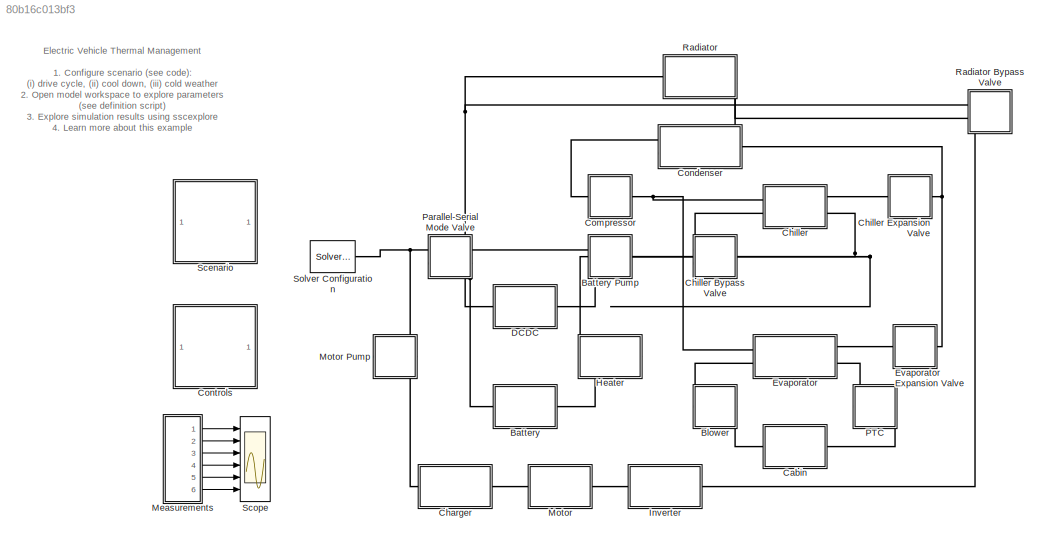
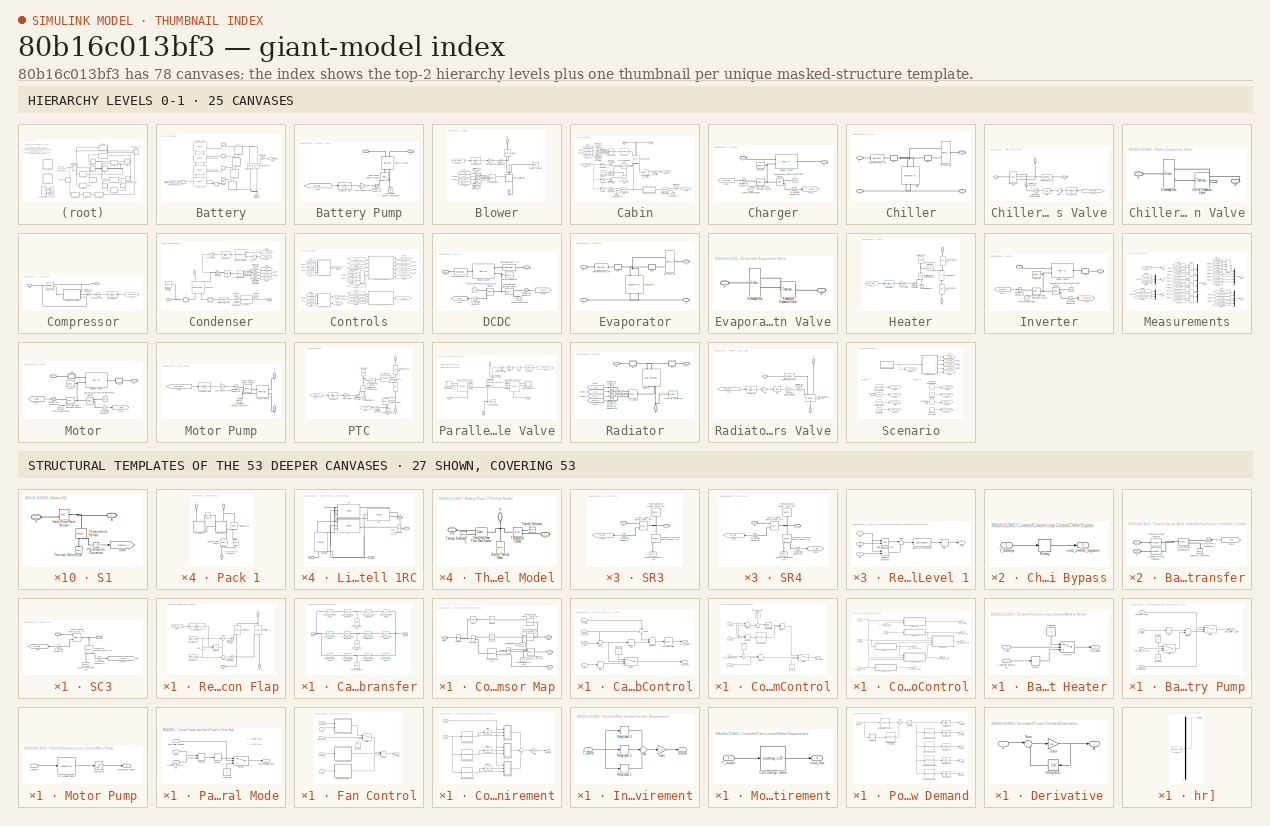
[diagram: thumbnail index - top-2 hierarchy levels (25 canvases) + 27 structural-template representatives of the remaining 53 canvases]
MODEL slx_80b16c013bf3
KIND model
CONFIG AbsTol = 1e-3
CONFIG EnableMultiTasking = off
CONFIG FixedStep = auto
CONFIG MaxStep = auto
CONFIG MinStep = auto
CONFIG RelTol = 1e-3
CONFIG SampleTimeConstraint = Unconstrained
CONFIG SolverName = VariableStepAuto
CONFIG StartTime = 0.0
CONFIG StopTime = 3600
WORKSPACE source: external: MATLAB File  (data not in archive)
BLOCK [SubSystem] Battery
  Ports = [0, 0, 0, 0, 0, 1, 1]
  RequestExecContextInheritance = off
  Tag = PublishSubsystem
BLOCK [SubSystem] Battery Pump
  Ports = [0, 0, 0, 0, 0, 1, 1]
  RequestExecContextInheritance = off
  Tag = PublishSubsystem
BLOCK [PMIOPort] Battery Pump/A
  Side = Left
BLOCK [PMIOPort] Battery Pump/B
  Port = 2
  Side = Right
BLOCK [Reference] Battery Pump/Battery Pump  REF=SimscapeFluids_lib/Thermal Liquid/Pumps & Motors/Fixed-Displacement
Pump (TL)
  NameLocation = right
  Ports = [0, 0, 0, 0, 0, 2, 2]
  SourceBlock = SimscapeFluids_lib/Thermal Liquid/Pumps & Motors/Fixed-Displacement\nPump (TL)
  SourceProductBaseCode = SH
  SourceType = Fixed-Displacement\nPump (TL)
BLOCK [From] Battery Pump/From
  GotoTag = cmd_battery_pump
  TagVisibility = global
BLOCK [Reference] Battery Pump/Ideal Angular Velocity Source  REF=fl_lib/Mechanical/Mechanical Sources/Ideal Angular
Velocity Source
  NameLocation = right
  Ports = [0, 0, 0, 0, 0, 1, 2]
  SourceBlock = fl_lib/Mechanical/Mechanical Sources/Ideal Angular\nVelocity Source
  SourceProductBaseCode = SS
  SourceType = Ideal Angular\nVelocity Source
BLOCK [Gain] Battery Pump/Max Speed [rpm]
  Gain = pump_speed_max
BLOCK [Reference] Battery Pump/Mechanical Rotational Reference  REF=fl_lib/Mechanical/Rotational Elements/Mechanical
Rotational Reference
  NameLocation = right
  Ports = [0, 0, 0, 0, 0, 1]
  SourceBlock = fl_lib/Mechanical/Rotational Elements/Mechanical\nRotational Reference
  SourceProductBaseCode = SS
  SourceType = Mechanical\nRotational Reference
BLOCK [Reference] Battery Pump/Simulink-PS Converter  REF=nesl_utility/Simulink-PS
Converter
  Ports = [1, 0, 0, 0, 0, 0, 1]
  SourceBlock = nesl_utility/Simulink-PS\nConverter
  SourceProductBaseCode = PW,SS
  SourceType = Simulink-PS\nConverter
BLOCK [TransferFcn] Battery Pump/Transfer Fcn
  Denominator = [5 1]
BLOCK [PMIOPort] Battery/A
  Port = 2
  Side = Right
BLOCK [PMIOPort] Battery/B
  Side = Left
BLOCK [Reference] Battery/Coolant Jacket 1  REF=SimscapeFluids_lib/Thermal Liquid/Pipes & Fittings/Pipe (TL)
  Ports = [0, 0, 0, 0, 0, 2, 1]
  SourceBlock = SimscapeFluids_lib/Thermal Liquid/Pipes & Fittings/Pipe (TL)
  SourceProductBaseCode = SH
  SourceType = Pipe (TL)
BLOCK [Reference] Battery/Coolant Jacket 2  REF=SimscapeFluids_lib/Thermal Liquid/Pipes & Fittings/Pipe (TL)
  Ports = [0, 0, 0, 0, 0, 2, 1]
  SourceBlock = SimscapeFluids_lib/Thermal Liquid/Pipes & Fittings/Pipe (TL)
  SourceProductBaseCode = SH
  SourceType = Pipe (TL)
BLOCK [Reference] Battery/Coolant Jacket 3  REF=SimscapeFluids_lib/Thermal Liquid/Pipes & Fittings/Pipe (TL)
  Ports = [0, 0, 0, 0, 0, 2, 1]
  SourceBlock = SimscapeFluids_lib/Thermal Liquid/Pipes & Fittings/Pipe (TL)
  SourceProductBaseCode = SH
  SourceType = Pipe (TL)
BLOCK [Reference] Battery/Coolant Jacket 4  REF=SimscapeFluids_lib/Thermal Liquid/Pipes & Fittings/Pipe (TL)
  Ports = [0, 0, 0, 0, 0, 2, 1]
  SourceBlock = SimscapeFluids_lib/Thermal Liquid/Pipes & Fittings/Pipe (TL)
  SourceProductBaseCode = SH
  SourceType = Pipe (TL)
BLOCK [Reference] Battery/Current Demand  REF=fl_lib/Electrical/Electrical Sources/Controlled Current
Source
  NameLocation = right
  Ports = [0, 0, 0, 0, 0, 1, 2]
  SourceBlock = fl_lib/Electrical/Electrical Sources/Controlled Current\nSource
  SourceProductBaseCode = SS
  SourceType = Controlled Current\nSource
BLOCK [Reference] Battery/Electrical Reference  REF=fl_lib/Electrical/Electrical Elements/Electrical Reference
  NameLocation = right
  Ports = [0, 0, 0, 0, 0, 1]
  SourceBlock = fl_lib/Electrical/Electrical Elements/Electrical Reference
  SourceProductBaseCode = SS
  SourceType = Electrical Reference
BLOCK [Reference] Battery/Flow Resistance (TL)  REF=fl_lib/Thermal Liquid/Elements/Flow Resistance (TL)
  Ports = [0, 0, 0, 0, 0, 1, 1]
  SourceBlock = fl_lib/Thermal Liquid/Elements/Flow Resistance (TL)
  SourceProductBaseCode = SS
  SourceType = Flow Resistance (TL)
BLOCK [From] Battery/From
  GotoTag = I_battery
  TagVisibility = global
BLOCK [SubSystem] Battery/Pack 1
  NameLocation = right
  Ports = [0, 0, 0, 0, 0, 2, 1]
  RequestExecContextInheritance = off
  Tag = PublishSubsystem
BLOCK [PMIOPort] Battery/Pack 1/+
  NameLocation = right
  Port = 3
  Side = Left
BLOCK [PMIOPort] Battery/Pack 1/-
  NameLocation = right
  Side = Right
BLOCK [Reference] Battery/Pack 1/Controlled Voltage Source  REF=fl_lib/Electrical/Electrical Sources/Controlled Voltage
Source
  NameLocation = left
  Ports = [0, 0, 0, 0, 0, 1, 2]
  SourceBlock = fl_lib/Electrical/Electrical Sources/Controlled Voltage\nSource
  SourceProductBaseCode = SS
  SourceType = Controlled Voltage\nSource
BLOCK [PMIOPort] Battery/Pack 1/H
  NameLocation = right
  Port = 2
  Side = Left
BLOCK [SubSystem] Battery/Pack 1/Lithium Cell 1RC
  NameLocation = left
  PortSchema = {"entries":[{"content":{"sides":[{"content":{"connectorIds":[]},"type":"ConnectorPlacement.EquallySpacedRectSide","uuid":"ccb9f794-c2a7-49a2-9836-26607ca18a9f"},{"content":{"connectorIds":[],"side":"RIGHT"},"type":"ConnectorPlacement.EquallySpacedRectSide","uuid":"f1620ab9-2b03-42d4-871e-d35b8093f316"},{"content":{"connectorIds":["LConn1","LConn2"],"side":"TOP"},"type":"ConnectorPlacement.EquallyS...<+551ch>  <repeated x4 — deduplicated; at blocks: Lithium Cell 1RC>
  Ports = [0, 0, 0, 0, 0, 2, 2]
  RequestExecContextInheritance = off
BLOCK [PMIOPort] Battery/Pack 1/Lithium Cell 1RC/+
  Port = 2
  Side = Left
BLOCK [PMIOPort] Battery/Pack 1/Lithium Cell 1RC/-
  NameLocation = top
  Port = 4
  Side = Right
BLOCK [Reference] Battery/Pack 1/Lithium Cell 1RC/C1  REF=LiBatteryElements_lib/C_table
  NameLocation = top
  Ports = [0, 0, 0, 0, 0, 3, 1]
  SourceBlock = LiBatteryElements_lib/C_table
  SourceProductBaseCode = SS
  SourceType = C_table
BLOCK [Reference] Battery/Pack 1/Lithium Cell 1RC/Em_table  REF=LiBatteryElements_lib/Em_table
  NameLocation = right
  Ports = [0, 0, 0, 0, 0, 3, 2]
  SourceBlock = LiBatteryElements_lib/Em_table
  SourceProductBaseCode = SS
  SourceType = Em_table
BLOCK [PMIOPort] Battery/Pack 1/Lithium Cell 1RC/P
  Side = Left
BLOCK [Reference] Battery/Pack 1/Lithium Cell 1RC/Power Sum  REF=fl_lib/Physical Signals/Functions/PS Add
  NameLocation = top
  Ports = [0, 0, 0, 0, 0, 2, 1]
  SourceBlock = fl_lib/Physical Signals/Functions/PS Add
  SourceProductBaseCode = SS
  SourceType = PS Add
BLOCK [Reference] Battery/Pack 1/Lithium Cell 1RC/R0  REF=LiBatteryElements_lib/R_table
  Ports = [0, 0, 0, 0, 0, 3, 2]
  SourceBlock = LiBatteryElements_lib/R_table
  SourceProductBaseCode = SS
  SourceType = R_table
BLOCK [Reference] Battery/Pack 1/Lithium Cell 1RC/R1  REF=LiBatteryElements_lib/R_table
  Ports = [0, 0, 0, 0, 0, 3, 2]
  SourceBlock = LiBatteryElements_lib/R_table
  SourceProductBaseCode = SS
  SourceType = R_table
BLOCK [PMIOPort] Battery/Pack 1/Lithium Cell 1RC/T
  Port = 3
  Side = Right
BLOCK [Reference] Battery/Pack 1/N  REF=fl_lib/Physical Signals/Functions/PS Gain
  NameLocation = top
  Ports = [0, 0, 0, 0, 0, 1, 1]
  SourceBlock = fl_lib/Physical Signals/Functions/PS Gain
  SourceProductBaseCode = SS
  SourceType = PS Gain
BLOCK [Reference] Battery/Pack 1/N-1  REF=fl_lib/Physical Signals/Functions/PS Gain
  NameLocation = right
  Ports = [0, 0, 0, 0, 0, 1, 1]
  SourceBlock = fl_lib/Physical Signals/Functions/PS Gain
  SourceProductBaseCode = SS
  SourceType = PS Gain
BLOCK [SubSystem] Battery/Pack 1/Thermal Model
  NameLocation = left
  Ports = [0, 0, 0, 0, 0, 2, 1]
  RequestExecContextInheritance = off
BLOCK [Reference] Battery/Pack 1/Thermal Model/Battery Thermal Mass  REF=fl_lib/Thermal/Thermal Elements/Thermal Mass
  NameLocation = right
  Ports = [0, 0, 0, 0, 0, 1]
  SourceBlock = fl_lib/Thermal/Thermal Elements/Thermal Mass
  SourceProductBaseCode = SS
  SourceType = Thermal Mass
BLOCK [Reference] Battery/Pack 1/Thermal Model/Controlled Heat Flow Rate Source  REF=fl_lib/Thermal/Thermal Sources/Controlled Heat Flow
Rate Source
  Ports = [0, 0, 0, 0, 0, 1, 2]
  SourceBlock = fl_lib/Thermal/Thermal Sources/Controlled Heat Flow\nRate Source
  SourceProductBaseCode = SS
  SourceType = Controlled Heat Flow\nRate Source
BLOCK [PMIOPort] Battery/Pack 1/Thermal Model/H
  NameLocation = right
  Side = Left
BLOCK [PMIOPort] Battery/Pack 1/Thermal Model/Pxn
  Port = 2
  Side = Left
BLOCK [PMIOPort] Battery/Pack 1/Thermal Model/T
  Port = 3
  Side = Right
BLOCK [Reference] Battery/Pack 1/Thermal Model/Temperature Sensor  REF=fl_lib/Thermal/Thermal Sensors/Temperature Sensor
  Ports = [0, 0, 0, 0, 0, 1, 2]
  SourceBlock = fl_lib/Thermal/Thermal Sensors/Temperature Sensor
  SourceProductBaseCode = SS
  SourceType = Temperature Sensor
BLOCK [Reference] Battery/Pack 1/Thermal Model/Thermal Reference  REF=fl_lib/Thermal/Thermal Elements/Thermal Reference
  NameLocation = top
  Ports = [0, 0, 0, 0, 0, 1]
  SourceBlock = fl_lib/Thermal/Thermal Elements/Thermal Reference
  SourceProductBaseCode = SS
  SourceType = Thermal Reference
BLOCK [Reference] Battery/Pack 1/Thermal Model/Thermal Reference2  REF=fl_lib/Thermal/Thermal Elements/Thermal Reference
  Ports = [0, 0, 0, 0, 0, 1]
  SourceBlock = fl_lib/Thermal/Thermal Elements/Thermal Reference
  SourceProductBaseCode = SS
  SourceType = Thermal Reference
BLOCK [Reference] Battery/Pack 1/Voltage Sensor  REF=fl_lib/Electrical/Electrical Sensors/Voltage Sensor
  NameLocation = right
  Ports = [0, 0, 0, 0, 0, 1, 2]
  SourceBlock = fl_lib/Electrical/Electrical Sensors/Voltage Sensor
  SourceProductBaseCode = SS
  SourceType = Voltage Sensor
BLOCK [SubSystem] Battery/Pack 2
  NameLocation = right
  Ports = [0, 0, 0, 0, 0, 2, 1]
  RequestExecContextInheritance = off
BLOCK [PMIOPort] Battery/Pack 2/+
  NameLocation = right
  Port = 3
  Side = Left
BLOCK [PMIOPort] Battery/Pack 2/-
  NameLocation = right
  Side = Right
BLOCK [Reference] Battery/Pack 2/Controlled Voltage Source  REF=fl_lib/Electrical/Electrical Sources/Controlled Voltage
Source
  NameLocation = left
  Ports = [0, 0, 0, 0, 0, 1, 2]
  SourceBlock = fl_lib/Electrical/Electrical Sources/Controlled Voltage\nSource
  SourceProductBaseCode = SS
  SourceType = Controlled Voltage\nSource
BLOCK [PMIOPort] Battery/Pack 2/H
  NameLocation = right
  Port = 2
  Side = Left
BLOCK [SubSystem] Battery/Pack 2/Lithium Cell 1RC
  NameLocation = left
  Ports = [0, 0, 0, 0, 0, 2, 2]
  RequestExecContextInheritance = off
BLOCK [PMIOPort] Battery/Pack 2/Lithium Cell 1RC/+
  Port = 2
  Side = Left
BLOCK [PMIOPort] Battery/Pack 2/Lithium Cell 1RC/-
  NameLocation = top
  Port = 4
  Side = Right
BLOCK [Reference] Battery/Pack 2/Lithium Cell 1RC/C1  REF=LiBatteryElements_lib/C_table
  NameLocation = top
  Ports = [0, 0, 0, 0, 0, 3, 1]
  SourceBlock = LiBatteryElements_lib/C_table
  SourceProductBaseCode = SS
  SourceType = C_table
BLOCK [Reference] Battery/Pack 2/Lithium Cell 1RC/Em_table  REF=LiBatteryElements_lib/Em_table
  NameLocation = right
  Ports = [0, 0, 0, 0, 0, 3, 2]
  SourceBlock = LiBatteryElements_lib/Em_table
  SourceProductBaseCode = SS
  SourceType = Em_table
BLOCK [PMIOPort] Battery/Pack 2/Lithium Cell 1RC/P
  Side = Left
BLOCK [Reference] Battery/Pack 2/Lithium Cell 1RC/Power Sum  REF=fl_lib/Physical Signals/Functions/PS Add
  NameLocation = top
  Ports = [0, 0, 0, 0, 0, 2, 1]
  SourceBlock = fl_lib/Physical Signals/Functions/PS Add
  SourceProductBaseCode = SS
  SourceType = PS Add
BLOCK [Reference] Battery/Pack 2/Lithium Cell 1RC/R0  REF=LiBatteryElements_lib/R_table
  Ports = [0, 0, 0, 0, 0, 3, 2]
  SourceBlock = LiBatteryElements_lib/R_table
  SourceProductBaseCode = SS
  SourceType = R_table
BLOCK [Reference] Battery/Pack 2/Lithium Cell 1RC/R1  REF=LiBatteryElements_lib/R_table
  Ports = [0, 0, 0, 0, 0, 3, 2]
  SourceBlock = LiBatteryElements_lib/R_table
  SourceProductBaseCode = SS
  SourceType = R_table
BLOCK [PMIOPort] Battery/Pack 2/Lithium Cell 1RC/T
  Port = 3
  Side = Right
BLOCK [Reference] Battery/Pack 2/N  REF=fl_lib/Physical Signals/Functions/PS Gain
  NameLocation = top
  Ports = [0, 0, 0, 0, 0, 1, 1]
  SourceBlock = fl_lib/Physical Signals/Functions/PS Gain
  SourceProductBaseCode = SS
  SourceType = PS Gain
BLOCK [Reference] Battery/Pack 2/N-1  REF=fl_lib/Physical Signals/Functions/PS Gain
  NameLocation = right
  Ports = [0, 0, 0, 0, 0, 1, 1]
  SourceBlock = fl_lib/Physical Signals/Functions/PS Gain
  SourceProductBaseCode = SS
  SourceType = PS Gain
BLOCK [SubSystem] Battery/Pack 2/Thermal Model
  NameLocation = left
  Ports = [0, 0, 0, 0, 0, 2, 1]
  RequestExecContextInheritance = off
BLOCK [Reference] Battery/Pack 2/Thermal Model/Battery Thermal Mass  REF=fl_lib/Thermal/Thermal Elements/Thermal Mass
  NameLocation = right
  Ports = [0, 0, 0, 0, 0, 1]
  SourceBlock = fl_lib/Thermal/Thermal Elements/Thermal Mass
  SourceProductBaseCode = SS
  SourceType = Thermal Mass
BLOCK [Reference] Battery/Pack 2/Thermal Model/Controlled Heat Flow Rate Source  REF=fl_lib/Thermal/Thermal Sources/Controlled Heat Flow
Rate Source
  Ports = [0, 0, 0, 0, 0, 1, 2]
  SourceBlock = fl_lib/Thermal/Thermal Sources/Controlled Heat Flow\nRate Source
  SourceProductBaseCode = SS
  SourceType = Controlled Heat Flow\nRate Source
BLOCK [PMIOPort] Battery/Pack 2/Thermal Model/H
  NameLocation = right
  Side = Left
BLOCK [PMIOPort] Battery/Pack 2/Thermal Model/Pxn
  Port = 2
  Side = Left
BLOCK [PMIOPort] Battery/Pack 2/Thermal Model/T
  Port = 3
  Side = Right
BLOCK [Reference] Battery/Pack 2/Thermal Model/Temperature Sensor  REF=fl_lib/Thermal/Thermal Sensors/Temperature Sensor
  Ports = [0, 0, 0, 0, 0, 1, 2]
  SourceBlock = fl_lib/Thermal/Thermal Sensors/Temperature Sensor
  SourceProductBaseCode = SS
  SourceType = Temperature Sensor
BLOCK [Reference] Battery/Pack 2/Thermal Model/Thermal Reference  REF=fl_lib/Thermal/Thermal Elements/Thermal Reference
  NameLocation = top
  Ports = [0, 0, 0, 0, 0, 1]
  SourceBlock = fl_lib/Thermal/Thermal Elements/Thermal Reference
  SourceProductBaseCode = SS
  SourceType = Thermal Reference
BLOCK [Reference] Battery/Pack 2/Thermal Model/Thermal Reference2  REF=fl_lib/Thermal/Thermal Elements/Thermal Reference
  Ports = [0, 0, 0, 0, 0, 1]
  SourceBlock = fl_lib/Thermal/Thermal Elements/Thermal Reference
  SourceProductBaseCode = SS
  SourceType = Thermal Reference
BLOCK [Reference] Battery/Pack 2/Voltage Sensor  REF=fl_lib/Electrical/Electrical Sensors/Voltage Sensor
  NameLocation = right
  Ports = [0, 0, 0, 0, 0, 1, 2]
  SourceBlock = fl_lib/Electrical/Electrical Sensors/Voltage Sensor
  SourceProductBaseCode = SS
  SourceType = Voltage Sensor
BLOCK [SubSystem] Battery/Pack 3
  NameLocation = right
  Ports = [0, 0, 0, 0, 0, 2, 1]
  RequestExecContextInheritance = off
BLOCK [PMIOPort] Battery/Pack 3/+
  NameLocation = right
  Port = 3
  Side = Left
BLOCK [PMIOPort] Battery/Pack 3/-
  NameLocation = right
  Side = Right
BLOCK [Reference] Battery/Pack 3/Controlled Voltage Source  REF=fl_lib/Electrical/Electrical Sources/Controlled Voltage
Source
  NameLocation = left
  Ports = [0, 0, 0, 0, 0, 1, 2]
  SourceBlock = fl_lib/Electrical/Electrical Sources/Controlled Voltage\nSource
  SourceProductBaseCode = SS
  SourceType = Controlled Voltage\nSource
BLOCK [PMIOPort] Battery/Pack 3/H
  NameLocation = right
  Port = 2
  Side = Left
BLOCK [SubSystem] Battery/Pack 3/Lithium Cell 1RC
  NameLocation = left
  Ports = [0, 0, 0, 0, 0, 2, 2]
  RequestExecContextInheritance = off
BLOCK [PMIOPort] Battery/Pack 3/Lithium Cell 1RC/+
  Port = 2
  Side = Left
BLOCK [PMIOPort] Battery/Pack 3/Lithium Cell 1RC/-
  NameLocation = top
  Port = 4
  Side = Right
BLOCK [Reference] Battery/Pack 3/Lithium Cell 1RC/C1  REF=LiBatteryElements_lib/C_table
  NameLocation = top
  Ports = [0, 0, 0, 0, 0, 3, 1]
  SourceBlock = LiBatteryElements_lib/C_table
  SourceProductBaseCode = SS
  SourceType = C_table
BLOCK [Reference] Battery/Pack 3/Lithium Cell 1RC/Em_table  REF=LiBatteryElements_lib/Em_table
  NameLocation = right
  Ports = [0, 0, 0, 0, 0, 3, 2]
  SourceBlock = LiBatteryElements_lib/Em_table
  SourceProductBaseCode = SS
  SourceType = Em_table
BLOCK [PMIOPort] Battery/Pack 3/Lithium Cell 1RC/P
  Side = Left
BLOCK [Reference] Battery/Pack 3/Lithium Cell 1RC/Power Sum  REF=fl_lib/Physical Signals/Functions/PS Add
  NameLocation = top
  Ports = [0, 0, 0, 0, 0, 2, 1]
  SourceBlock = fl_lib/Physical Signals/Functions/PS Add
  SourceProductBaseCode = SS
  SourceType = PS Add
BLOCK [Reference] Battery/Pack 3/Lithium Cell 1RC/R0  REF=LiBatteryElements_lib/R_table
  Ports = [0, 0, 0, 0, 0, 3, 2]
  SourceBlock = LiBatteryElements_lib/R_table
  SourceProductBaseCode = SS
  SourceType = R_table
BLOCK [Reference] Battery/Pack 3/Lithium Cell 1RC/R1  REF=LiBatteryElements_lib/R_table
  Ports = [0, 0, 0, 0, 0, 3, 2]
  SourceBlock = LiBatteryElements_lib/R_table
  SourceProductBaseCode = SS
  SourceType = R_table
BLOCK [PMIOPort] Battery/Pack 3/Lithium Cell 1RC/T
  Port = 3
  Side = Right
BLOCK [Reference] Battery/Pack 3/N  REF=fl_lib/Physical Signals/Functions/PS Gain
  NameLocation = top
  Ports = [0, 0, 0, 0, 0, 1, 1]
  SourceBlock = fl_lib/Physical Signals/Functions/PS Gain
  SourceProductBaseCode = SS
  SourceType = PS Gain
BLOCK [Reference] Battery/Pack 3/N-1  REF=fl_lib/Physical Signals/Functions/PS Gain
  NameLocation = right
  Ports = [0, 0, 0, 0, 0, 1, 1]
  SourceBlock = fl_lib/Physical Signals/Functions/PS Gain
  SourceProductBaseCode = SS
  SourceType = PS Gain
BLOCK [SubSystem] Battery/Pack 3/Thermal Model
  NameLocation = left
  Ports = [0, 0, 0, 0, 0, 2, 1]
  RequestExecContextInheritance = off
BLOCK [Reference] Battery/Pack 3/Thermal Model/Battery Thermal Mass  REF=fl_lib/Thermal/Thermal Elements/Thermal Mass
  NameLocation = right
  Ports = [0, 0, 0, 0, 0, 1]
  SourceBlock = fl_lib/Thermal/Thermal Elements/Thermal Mass
  SourceProductBaseCode = SS
  SourceType = Thermal Mass
BLOCK [Reference] Battery/Pack 3/Thermal Model/Controlled Heat Flow Rate Source  REF=fl_lib/Thermal/Thermal Sources/Controlled Heat Flow
Rate Source
  Ports = [0, 0, 0, 0, 0, 1, 2]
  SourceBlock = fl_lib/Thermal/Thermal Sources/Controlled Heat Flow\nRate Source
  SourceProductBaseCode = SS
  SourceType = Controlled Heat Flow\nRate Source
BLOCK [PMIOPort] Battery/Pack 3/Thermal Model/H
  NameLocation = right
  Side = Left
BLOCK [PMIOPort] Battery/Pack 3/Thermal Model/Pxn
  Port = 2
  Side = Left
BLOCK [PMIOPort] Battery/Pack 3/Thermal Model/T
  Port = 3
  Side = Right
BLOCK [Reference] Battery/Pack 3/Thermal Model/Temperature Sensor  REF=fl_lib/Thermal/Thermal Sensors/Temperature Sensor
  Ports = [0, 0, 0, 0, 0, 1, 2]
  SourceBlock = fl_lib/Thermal/Thermal Sensors/Temperature Sensor
  SourceProductBaseCode = SS
  SourceType = Temperature Sensor
BLOCK [Reference] Battery/Pack 3/Thermal Model/Thermal Reference  REF=fl_lib/Thermal/Thermal Elements/Thermal Reference
  NameLocation = top
  Ports = [0, 0, 0, 0, 0, 1]
  SourceBlock = fl_lib/Thermal/Thermal Elements/Thermal Reference
  SourceProductBaseCode = SS
  SourceType = Thermal Reference
BLOCK [Reference] Battery/Pack 3/Thermal Model/Thermal Reference2  REF=fl_lib/Thermal/Thermal Elements/Thermal Reference
  Ports = [0, 0, 0, 0, 0, 1]
  SourceBlock = fl_lib/Thermal/Thermal Elements/Thermal Reference
  SourceProductBaseCode = SS
  SourceType = Thermal Reference
BLOCK [Reference] Battery/Pack 3/Voltage Sensor  REF=fl_lib/Electrical/Electrical Sensors/Voltage Sensor
  NameLocation = right
  Ports = [0, 0, 0, 0, 0, 1, 2]
  SourceBlock = fl_lib/Electrical/Electrical Sensors/Voltage Sensor
  SourceProductBaseCode = SS
  SourceType = Voltage Sensor
BLOCK [SubSystem] Battery/Pack 4
  NameLocation = right
  Ports = [0, 0, 0, 0, 0, 2, 1]
  RequestExecContextInheritance = off
BLOCK [PMIOPort] Battery/Pack 4/+
  NameLocation = right
  Port = 3
  Side = Left
BLOCK [PMIOPort] Battery/Pack 4/-
  NameLocation = right
  Side = Right
BLOCK [Reference] Battery/Pack 4/Controlled Voltage Source  REF=fl_lib/Electrical/Electrical Sources/Controlled Voltage
Source
  NameLocation = left
  Ports = [0, 0, 0, 0, 0, 1, 2]
  SourceBlock = fl_lib/Electrical/Electrical Sources/Controlled Voltage\nSource
  SourceProductBaseCode = SS
  SourceType = Controlled Voltage\nSource
BLOCK [PMIOPort] Battery/Pack 4/H
  NameLocation = right
  Port = 2
  Side = Left
BLOCK [SubSystem] Battery/Pack 4/Lithium Cell 1RC
  NameLocation = left
  Ports = [0, 0, 0, 0, 0, 2, 2]
  RequestExecContextInheritance = off
BLOCK [PMIOPort] Battery/Pack 4/Lithium Cell 1RC/+
  Port = 2
  Side = Left
BLOCK [PMIOPort] Battery/Pack 4/Lithium Cell 1RC/-
  NameLocation = top
  Port = 4
  Side = Right
BLOCK [Reference] Battery/Pack 4/Lithium Cell 1RC/C1  REF=LiBatteryElements_lib/C_table
  NameLocation = top
  Ports = [0, 0, 0, 0, 0, 3, 1]
  SourceBlock = LiBatteryElements_lib/C_table
  SourceProductBaseCode = SS
  SourceType = C_table
BLOCK [Reference] Battery/Pack 4/Lithium Cell 1RC/Em_table  REF=LiBatteryElements_lib/Em_table
  NameLocation = right
  Ports = [0, 0, 0, 0, 0, 3, 2]
  SourceBlock = LiBatteryElements_lib/Em_table
  SourceProductBaseCode = SS
  SourceType = Em_table
BLOCK [PMIOPort] Battery/Pack 4/Lithium Cell 1RC/P
  Side = Left
BLOCK [Reference] Battery/Pack 4/Lithium Cell 1RC/Power Sum  REF=fl_lib/Physical Signals/Functions/PS Add
  NameLocation = top
  Ports = [0, 0, 0, 0, 0, 2, 1]
  SourceBlock = fl_lib/Physical Signals/Functions/PS Add
  SourceProductBaseCode = SS
  SourceType = PS Add
BLOCK [Reference] Battery/Pack 4/Lithium Cell 1RC/R0  REF=LiBatteryElements_lib/R_table
  Ports = [0, 0, 0, 0, 0, 3, 2]
  SourceBlock = LiBatteryElements_lib/R_table
  SourceProductBaseCode = SS
  SourceType = R_table
BLOCK [Reference] Battery/Pack 4/Lithium Cell 1RC/R1  REF=LiBatteryElements_lib/R_table
  Ports = [0, 0, 0, 0, 0, 3, 2]
  SourceBlock = LiBatteryElements_lib/R_table
  SourceProductBaseCode = SS
  SourceType = R_table
BLOCK [PMIOPort] Battery/Pack 4/Lithium Cell 1RC/T
  Port = 3
  Side = Right
BLOCK [Reference] Battery/Pack 4/N  REF=fl_lib/Physical Signals/Functions/PS Gain
  NameLocation = top
  Ports = [0, 0, 0, 0, 0, 1, 1]
  SourceBlock = fl_lib/Physical Signals/Functions/PS Gain
  SourceProductBaseCode = SS
  SourceType = PS Gain
BLOCK [Reference] Battery/Pack 4/N-1  REF=fl_lib/Physical Signals/Functions/PS Gain
  NameLocation = right
  Ports = [0, 0, 0, 0, 0, 1, 1]
  SourceBlock = fl_lib/Physical Signals/Functions/PS Gain
  SourceProductBaseCode = SS
  SourceType = PS Gain
BLOCK [SubSystem] Battery/Pack 4/Thermal Model
  NameLocation = left
  Ports = [0, 0, 0, 0, 0, 2, 1]
  RequestExecContextInheritance = off
BLOCK [Reference] Battery/Pack 4/Thermal Model/Battery Thermal Mass  REF=fl_lib/Thermal/Thermal Elements/Thermal Mass
  NameLocation = right
  Ports = [0, 0, 0, 0, 0, 1]
  SourceBlock = fl_lib/Thermal/Thermal Elements/Thermal Mass
  SourceProductBaseCode = SS
  SourceType = Thermal Mass
BLOCK [Reference] Battery/Pack 4/Thermal Model/Controlled Heat Flow Rate Source  REF=fl_lib/Thermal/Thermal Sources/Controlled Heat Flow
Rate Source
  Ports = [0, 0, 0, 0, 0, 1, 2]
  SourceBlock = fl_lib/Thermal/Thermal Sources/Controlled Heat Flow\nRate Source
  SourceProductBaseCode = SS
  SourceType = Controlled Heat Flow\nRate Source
BLOCK [PMIOPort] Battery/Pack 4/Thermal Model/H
  NameLocation = right
  Side = Left
BLOCK [PMIOPort] Battery/Pack 4/Thermal Model/Pxn
  Port = 2
  Side = Left
BLOCK [PMIOPort] Battery/Pack 4/Thermal Model/T
  Port = 3
  Side = Right
BLOCK [Reference] Battery/Pack 4/Thermal Model/Temperature Sensor  REF=fl_lib/Thermal/Thermal Sensors/Temperature Sensor
  Ports = [0, 0, 0, 0, 0, 1, 2]
  SourceBlock = fl_lib/Thermal/Thermal Sensors/Temperature Sensor
  SourceProductBaseCode = SS
  SourceType = Temperature Sensor
BLOCK [Reference] Battery/Pack 4/Thermal Model/Thermal Reference  REF=fl_lib/Thermal/Thermal Elements/Thermal Reference
  NameLocation = top
  Ports = [0, 0, 0, 0, 0, 1]
  SourceBlock = fl_lib/Thermal/Thermal Elements/Thermal Reference
  SourceProductBaseCode = SS
  SourceType = Thermal Reference
BLOCK [Reference] Battery/Pack 4/Thermal Model/Thermal Reference2  REF=fl_lib/Thermal/Thermal Elements/Thermal Reference
  Ports = [0, 0, 0, 0, 0, 1]
  SourceBlock = fl_lib/Thermal/Thermal Elements/Thermal Reference
  SourceProductBaseCode = SS
  SourceType = Thermal Reference
BLOCK [Reference] Battery/Pack 4/Voltage Sensor  REF=fl_lib/Electrical/Electrical Sensors/Voltage Sensor
  NameLocation = right
  Ports = [0, 0, 0, 0, 0, 1, 2]
  SourceBlock = fl_lib/Electrical/Electrical Sensors/Voltage Sensor
  SourceProductBaseCode = SS
  SourceType = Voltage Sensor
BLOCK [SubSystem] Battery/S1
  Ports = [0, 0, 0, 0, 0, 1, 1]
  RequestExecContextInheritance = off
BLOCK [PMIOPort] Battery/S1/A
  Port = 2
  Side = Right
BLOCK [PMIOPort] Battery/S1/B
  Side = Left
BLOCK [Goto] Battery/S1/Goto
  GotoTag = T_battery1
  TagVisibility = global
BLOCK [Reference] Battery/S1/Heat Flow Rate Sensor  REF=fl_lib/Thermal/Thermal Sensors/Heat Flow Rate
Sensor
  Ports = [0, 0, 0, 0, 0, 1, 2]
  SourceBlock = fl_lib/Thermal/Thermal Sensors/Heat Flow Rate\nSensor
  SourceProductBaseCode = SS
  SourceType = Heat Flow Rate\nSensor
BLOCK [Reference] Battery/S1/PS-Simulink Converter  REF=nesl_utility/PS-Simulink
Converter
  Ports = [0, 1, 0, 0, 0, 1]
  SourceBlock = nesl_utility/PS-Simulink\nConverter
  SourceProductBaseCode = PW,SS
  SourceType = PS-Simulink\nConverter
BLOCK [Reference] Battery/S1/Temperature Sensor  REF=fl_lib/Thermal/Thermal Sensors/Temperature Sensor
  NameLocation = right
  Ports = [0, 0, 0, 0, 0, 1, 2]
  SourceBlock = fl_lib/Thermal/Thermal Sensors/Temperature Sensor
  SourceProductBaseCode = SS
  SourceType = Temperature Sensor
BLOCK [Reference] Battery/S1/Thermal Reference  REF=fl_lib/Thermal/Thermal Elements/Thermal Reference
  NameLocation = right
  Ports = [0, 0, 0, 0, 0, 1]
  SourceBlock = fl_lib/Thermal/Thermal Elements/Thermal Reference
  SourceProductBaseCode = SS
  SourceType = Thermal Reference
BLOCK [SubSystem] Battery/S2
  Ports = [0, 0, 0, 0, 0, 1, 1]
  RequestExecContextInheritance = off
BLOCK [PMIOPort] Battery/S2/A
  Port = 2
  Side = Right
BLOCK [PMIOPort] Battery/S2/B
  Side = Left
BLOCK [Goto] Battery/S2/Goto
  GotoTag = T_battery2
  TagVisibility = global
BLOCK [Reference] Battery/S2/Heat Flow Rate Sensor  REF=fl_lib/Thermal/Thermal Sensors/Heat Flow Rate
Sensor
  Ports = [0, 0, 0, 0, 0, 1, 2]
  SourceBlock = fl_lib/Thermal/Thermal Sensors/Heat Flow Rate\nSensor
  SourceProductBaseCode = SS
  SourceType = Heat Flow Rate\nSensor
BLOCK [Reference] Battery/S2/PS-Simulink Converter  REF=nesl_utility/PS-Simulink
Converter
  Ports = [0, 1, 0, 0, 0, 1]
  SourceBlock = nesl_utility/PS-Simulink\nConverter
  SourceProductBaseCode = PW,SS
  SourceType = PS-Simulink\nConverter
BLOCK [Reference] Battery/S2/Temperature Sensor  REF=fl_lib/Thermal/Thermal Sensors/Temperature Sensor
  NameLocation = right
  Ports = [0, 0, 0, 0, 0, 1, 2]
  SourceBlock = fl_lib/Thermal/Thermal Sensors/Temperature Sensor
  SourceProductBaseCode = SS
  SourceType = Temperature Sensor
BLOCK [Reference] Battery/S2/Thermal Reference  REF=fl_lib/Thermal/Thermal Elements/Thermal Reference
  NameLocation = right
  Ports = [0, 0, 0, 0, 0, 1]
  SourceBlock = fl_lib/Thermal/Thermal Elements/Thermal Reference
  SourceProductBaseCode = SS
  SourceType = Thermal Reference
BLOCK [SubSystem] Battery/S3
  Ports = [0, 0, 0, 0, 0, 1, 1]
  RequestExecContextInheritance = off
BLOCK [PMIOPort] Battery/S3/A
  Port = 2
  Side = Right
BLOCK [PMIOPort] Battery/S3/B
  Side = Left
BLOCK [Goto] Battery/S3/Goto
  GotoTag = T_battery3
  TagVisibility = global
BLOCK [Reference] Battery/S3/Heat Flow Rate Sensor  REF=fl_lib/Thermal/Thermal Sensors/Heat Flow Rate
Sensor
  Ports = [0, 0, 0, 0, 0, 1, 2]
  SourceBlock = fl_lib/Thermal/Thermal Sensors/Heat Flow Rate\nSensor
  SourceProductBaseCode = SS
  SourceType = Heat Flow Rate\nSensor
BLOCK [Reference] Battery/S3/PS-Simulink Converter  REF=nesl_utility/PS-Simulink
Converter
  Ports = [0, 1, 0, 0, 0, 1]
  SourceBlock = nesl_utility/PS-Simulink\nConverter
  SourceProductBaseCode = PW,SS
  SourceType = PS-Simulink\nConverter
BLOCK [Reference] Battery/S3/Temperature Sensor  REF=fl_lib/Thermal/Thermal Sensors/Temperature Sensor
  NameLocation = right
  Ports = [0, 0, 0, 0, 0, 1, 2]
  SourceBlock = fl_lib/Thermal/Thermal Sensors/Temperature Sensor
  SourceProductBaseCode = SS
  SourceType = Temperature Sensor
BLOCK [Reference] Battery/S3/Thermal Reference  REF=fl_lib/Thermal/Thermal Elements/Thermal Reference
  NameLocation = right
  Ports = [0, 0, 0, 0, 0, 1]
  SourceBlock = fl_lib/Thermal/Thermal Elements/Thermal Reference
  SourceProductBaseCode = SS
  SourceType = Thermal Reference
BLOCK [SubSystem] Battery/S4
  Ports = [0, 0, 0, 0, 0, 1, 1]
  RequestExecContextInheritance = off
BLOCK [PMIOPort] Battery/S4/A
  Port = 2
  Side = Right
BLOCK [PMIOPort] Battery/S4/B
  Side = Left
BLOCK [Goto] Battery/S4/Goto
  GotoTag = T_battery4
  TagVisibility = global
BLOCK [Reference] Battery/S4/Heat Flow Rate Sensor  REF=fl_lib/Thermal/Thermal Sensors/Heat Flow Rate
Sensor
  Ports = [0, 0, 0, 0, 0, 1, 2]
  SourceBlock = fl_lib/Thermal/Thermal Sensors/Heat Flow Rate\nSensor
  SourceProductBaseCode = SS
  SourceType = Heat Flow Rate\nSensor
BLOCK [Reference] Battery/S4/PS-Simulink Converter  REF=nesl_utility/PS-Simulink
Converter
  Ports = [0, 1, 0, 0, 0, 1]
  SourceBlock = nesl_utility/PS-Simulink\nConverter
  SourceProductBaseCode = PW,SS
  SourceType = PS-Simulink\nConverter
BLOCK [Reference] Battery/S4/Temperature Sensor  REF=fl_lib/Thermal/Thermal Sensors/Temperature Sensor
  NameLocation = right
  Ports = [0, 0, 0, 0, 0, 1, 2]
  SourceBlock = fl_lib/Thermal/Thermal Sensors/Temperature Sensor
  SourceProductBaseCode = SS
  SourceType = Temperature Sensor
BLOCK [Reference] Battery/S4/Thermal Reference  REF=fl_lib/Thermal/Thermal Elements/Thermal Reference
  NameLocation = right
  Ports = [0, 0, 0, 0, 0, 1]
  SourceBlock = fl_lib/Thermal/Thermal Elements/Thermal Reference
  SourceProductBaseCode = SS
  SourceType = Thermal Reference
BLOCK [SubSystem] Battery/SC3
  Ports = [0, 0, 0, 0, 0, 1, 1]
  RequestExecContextInheritance = off
BLOCK [PMIOPort] Battery/SC3/A
  Port = 2
  Side = Right
BLOCK [Reference] Battery/SC3/Absolute Reference (TL)  REF=fl_lib/Thermal Liquid/Elements/Absolute Reference
(TL)
  NameLocation = right
  Ports = [0, 0, 0, 0, 0, 1]
  SourceBlock = fl_lib/Thermal Liquid/Elements/Absolute Reference\n(TL)
  SourceProductBaseCode = SS
  SourceType = Absolute Reference\n(TL)
BLOCK [PMIOPort] Battery/SC3/B
  Side = Left
BLOCK [Goto] Battery/SC3/Goto
  GotoTag = Phi_battery_in
  TagVisibility = global
BLOCK [Goto] Battery/SC3/Goto1
  GotoTag = T_coolant_battery_in
  TagVisibility = global
BLOCK [Reference] Battery/SC3/Mass & Energy Flow Rate Sensor (TL)  REF=fl_lib/Thermal Liquid/Sensors/Mass & Energy Flow
Rate Sensor (TL)
  Ports = [0, 0, 0, 0, 0, 1, 3]
  SourceBlock = fl_lib/Thermal Liquid/Sensors/Mass & Energy Flow\nRate Sensor (TL)
  SourceProductBaseCode = SS
  SourceType = Mass & Energy Flow\nRate Sensor (TL)
BLOCK [Reference] Battery/SC3/PS-Simulink Converter  REF=nesl_utility/PS-Simulink
Converter
  Ports = [0, 1, 0, 0, 0, 1]
  SourceBlock = nesl_utility/PS-Simulink\nConverter
  SourceProductBaseCode = PW,SS
  SourceType = PS-Simulink\nConverter
BLOCK [Reference] Battery/SC3/PS-Simulink Converter1  REF=nesl_utility/PS-Simulink
Converter
  Ports = [0, 1, 0, 0, 0, 1]
  SourceBlock = nesl_utility/PS-Simulink\nConverter
  SourceProductBaseCode = PW,SS
  SourceType = PS-Simulink\nConverter
BLOCK [Reference] Battery/SC3/Pressure & Temperature Sensor (TL)  REF=fl_lib/Thermal Liquid/Sensors/Pressure &
Temperature Sensor
(TL)
  NameLocation = right
  Ports = [0, 0, 0, 0, 0, 1, 3]
  SourceBlock = fl_lib/Thermal Liquid/Sensors/Pressure &\nTemperature Sensor\n(TL)
  SourceProductBaseCode = SS
  SourceType = Pressure &\nTemperature Sensor\n(TL)
BLOCK [SubSystem] Battery/SC4
  Ports = [0, 0, 0, 0, 0, 1, 1]
  RequestExecContextInheritance = off
BLOCK [PMIOPort] Battery/SC4/A
  Port = 2
  Side = Right
BLOCK [Reference] Battery/SC4/Absolute Reference (TL)  REF=fl_lib/Thermal Liquid/Elements/Absolute Reference
(TL)
  NameLocation = right
  Ports = [0, 0, 0, 0, 0, 1]
  SourceBlock = fl_lib/Thermal Liquid/Elements/Absolute Reference\n(TL)
  SourceProductBaseCode = SS
  SourceType = Absolute Reference\n(TL)
BLOCK [PMIOPort] Battery/SC4/B
  Side = Left
BLOCK [Goto] Battery/SC4/Goto
  GotoTag = Phi_battery_out
  TagVisibility = global
BLOCK [Reference] Battery/SC4/Mass & Energy Flow Rate Sensor (TL)  REF=fl_lib/Thermal Liquid/Sensors/Mass & Energy Flow
Rate Sensor (TL)
  Ports = [0, 0, 0, 0, 0, 1, 3]
  SourceBlock = fl_lib/Thermal Liquid/Sensors/Mass & Energy Flow\nRate Sensor (TL)
  SourceProductBaseCode = SS
  SourceType = Mass & Energy Flow\nRate Sensor (TL)
BLOCK [Reference] Battery/SC4/PS-Simulink Converter  REF=nesl_utility/PS-Simulink
Converter
  Ports = [0, 1, 0, 0, 0, 1]
  SourceBlock = nesl_utility/PS-Simulink\nConverter
  SourceProductBaseCode = PW,SS
  SourceType = PS-Simulink\nConverter
BLOCK [Reference] Battery/SC4/Pressure & Temperature Sensor (TL)  REF=fl_lib/Thermal Liquid/Sensors/Pressure &
Temperature Sensor
(TL)
  NameLocation = right
  Ports = [0, 0, 0, 0, 0, 1, 3]
  SourceBlock = fl_lib/Thermal Liquid/Sensors/Pressure &\nTemperature Sensor\n(TL)
  SourceProductBaseCode = SS
  SourceType = Pressure &\nTemperature Sensor\n(TL)
BLOCK [Reference] Battery/Simulink-PS Converter  REF=nesl_utility/Simulink-PS
Converter
  Ports = [1, 0, 0, 0, 0, 0, 1]
  SourceBlock = nesl_utility/Simulink-PS\nConverter
  SourceProductBaseCode = PW,SS
  SourceType = Simulink-PS\nConverter
BLOCK [Reference] Battery/Voltage Sensor  REF=fl_lib/Electrical/Electrical Sensors/Voltage Sensor
  NameLocation = left
  Ports = [0, 0, 0, 0, 0, 1, 2]
  SourceBlock = fl_lib/Electrical/Electrical Sensors/Voltage Sensor
  SourceProductBaseCode = SS
  SourceType = Voltage Sensor
BLOCK [SubSystem] Blower
  PortSchema = {"entries":[{"content":{"sides":[{"content":{"connectorIds":[]},"type":"ConnectorPlacement.EquallySpacedRectSide","uuid":"e68f4e4f-d2a0-4f21-a3dd-a8ccea0ce87c"},{"content":{"connectorIds":[],"side":"RIGHT"},"type":"ConnectorPlacement.EquallySpacedRectSide","uuid":"01f15736-e6d7-4b17-9e84-cef8e8356dfe"},{"content":{"connectorIds":["LConn1"],"side":"TOP"},"type":"ConnectorPlacement.EquallySpacedRect...<+533ch>  <repeated x4 — deduplicated; at blocks: Blower, Heater, Motor Pump, PTC>
  Ports = [0, 0, 0, 0, 0, 1, 1]
  RequestExecContextInheritance = off
  Tag = PublishSubsystem
BLOCK [PMIOPort] Blower/A
  NameLocation = right
  Port = 2
  Side = Right
BLOCK [PMIOPort] Blower/B
  NameLocation = right
  Side = Left
BLOCK [Reference] Blower/Blower  REF=fl_lib/Moist Air/Sources/Controlled
Volumetric Flow Rate
Source (MA)
  NameLocation = right
  Ports = [0, 0, 0, 0, 0, 2, 1]
  SourceBlock = fl_lib/Moist Air/Sources/Controlled\nVolumetric Flow Rate\nSource (MA)
  SourceProductBaseCode = SS
  SourceType = Controlled\nVolumetric Flow Rate\nSource (MA)
BLOCK [Reference] Blower/Environment Air  REF=fl_lib/Moist Air/Elements/Controlled Reservoir
(MA)
  Ports = [0, 0, 0, 0, 0, 1, 4]
  SourceBlock = fl_lib/Moist Air/Elements/Controlled Reservoir\n(MA)
  SourceProductBaseCode = SS
  SourceType = Controlled Reservoir\n(MA)
BLOCK [From] Blower/From
  GotoTag = T_env
  TagVisibility = global
BLOCK [From] Blower/From1
  GotoTag = p_env
  TagVisibility = global
BLOCK [From] Blower/From2
  GotoTag = RH_env
  TagVisibility = global
BLOCK [From] Blower/From3
  GotoTag = CO2_env
  TagVisibility = global
BLOCK [From] Blower/From4
  GotoTag = cmd_blower
  TagVisibility = global
BLOCK [Gain] Blower/Max Flow [m^3//s]
  Gain = 0.15
BLOCK [Reference] Blower/Moist Air Properties  REF=fl_lib/Moist Air/Utilities/Moist Air Properties
(MA)
  Ports = [0, 0, 0, 0, 0, 0, 1]
  SourceBlock = fl_lib/Moist Air/Utilities/Moist Air Properties\n(MA)
  SourceProductBaseCode = SS
  SourceType = Moist Air Properties\n(MA)
BLOCK [SubSystem] Blower/Recirculation Flap
  NameLocation = right
  PortSchema = {"entries":[{"content":{"sides":[{"content":{"connectorIds":["LConn1"]},"type":"ConnectorPlacement.EquallySpacedRectSide","uuid":"955749ca-45ab-4941-92ab-355bdf9f0774"},{"content":{"connectorIds":[],"side":"RIGHT"},"type":"ConnectorPlacement.EquallySpacedRectSide","uuid":"c92dcc5f-a0c1-47cb-824d-a6fc82e3fc14"},{"content":{"connectorIds":["LConn2"],"side":"TOP"},"type":"ConnectorPlacement.EquallySp...<+541ch>
  Ports = [0, 0, 0, 0, 0, 2, 1]
  RequestExecContextInheritance = off
  Tag = PublishSubsystem
BLOCK [PMIOPort] Blower/Recirculation Flap/A
  NameLocation = right
  Port = 3
  Side = Right
BLOCK [PMIOPort] Blower/Recirculation Flap/B
  Side = Left
BLOCK [PMIOPort] Blower/Recirculation Flap/C
  NameLocation = right
  Port = 2
  Side = Left
BLOCK [From] Blower/Recirculation Flap/From
  GotoTag = recirc_onoff
  TagVisibility = global
BLOCK [Constant] Blower/Recirculation Flap/Max Area [m^2]
  Value = max_area
BLOCK [Constant] Blower/Recirculation Flap/Min Area [m^2]
  Value = min_area
BLOCK [Product] Blower/Recirculation Flap/Product
  Ports = [2, 1]
BLOCK [Reference] Blower/Recirculation Flap/Restriction AC  REF=fl_lib/Moist Air/Elements/Local Restriction
(MA)
  NameLocation = right
  Ports = [0, 0, 0, 0, 0, 2, 1]
  SourceBlock = fl_lib/Moist Air/Elements/Local Restriction\n(MA)
  SourceProductBaseCode = SS
  SourceType = Local Restriction\n(MA)
BLOCK [Reference] Blower/Recirculation Flap/Restriction BC  REF=fl_lib/Moist Air/Elements/Local Restriction
(MA)
  NameLocation = right
  Ports = [0, 0, 0, 0, 0, 2, 1]
  SourceBlock = fl_lib/Moist Air/Elements/Local Restriction\n(MA)
  SourceProductBaseCode = SS
  SourceType = Local Restriction\n(MA)
BLOCK [Reference] Blower/Recirculation Flap/Simulink-PS Converter  REF=nesl_utility/Simulink-PS
Converter
  Ports = [1, 0, 0, 0, 0, 0, 1]
  SourceBlock = nesl_utility/Simulink-PS\nConverter
  SourceProductBaseCode = PW,SS
  SourceType = Simulink-PS\nConverter
BLOCK [Reference] Blower/Recirculation Flap/Simulink-PS Converter1  REF=nesl_utility/Simulink-PS
Converter
  Ports = [1, 0, 0, 0, 0, 0, 1]
  SourceBlock = nesl_utility/Simulink-PS\nConverter
  SourceProductBaseCode = PW,SS
  SourceType = Simulink-PS\nConverter
BLOCK [Sum] Blower/Recirculation Flap/Sum
  Inputs = +|-
  Ports = [2, 1]
BLOCK [Sum] Blower/Recirculation Flap/Sum1
  Inputs = |+-
  Ports = [2, 1]
BLOCK [Sum] Blower/Recirculation Flap/Sum2
  Inputs = ++|
  Ports = [2, 1]
BLOCK [TransferFcn] Blower/Recirculation Flap/Transfer Fcn
  Denominator = [tau 1]
BLOCK [Reference] Blower/Simulink-PS Converter  REF=nesl_utility/Simulink-PS
Converter
  Ports = [1, 0, 0, 0, 0, 0, 1]
  SourceBlock = nesl_utility/Simulink-PS\nConverter
  SourceProductBaseCode = PW,SS
  SourceType = Simulink-PS\nConverter
BLOCK [Reference] Blower/Simulink-PS Converter1  REF=nesl_utility/Simulink-PS
Converter
  Ports = [1, 0, 0, 0, 0, 0, 1]
  SourceBlock = nesl_utility/Simulink-PS\nConverter
  SourceProductBaseCode = PW,SS
  SourceType = Simulink-PS\nConverter
BLOCK [Reference] Blower/Simulink-PS Converter2  REF=nesl_utility/Simulink-PS
Converter
  Ports = [1, 0, 0, 0, 0, 0, 1]
  SourceBlock = nesl_utility/Simulink-PS\nConverter
  SourceProductBaseCode = PW,SS
  SourceType = Simulink-PS\nConverter
BLOCK [Reference] Blower/Simulink-PS Converter3  REF=nesl_utility/Simulink-PS
Converter
  Ports = [1, 0, 0, 0, 0, 0, 1]
  SourceBlock = nesl_utility/Simulink-PS\nConverter
  SourceProductBaseCode = PW,SS
  SourceType = Simulink-PS\nConverter
BLOCK [Reference] Blower/Simulink-PS Converter4  REF=nesl_utility/Simulink-PS
Converter
  Ports = [1, 0, 0, 0, 0, 0, 1]
  SourceBlock = nesl_utility/Simulink-PS\nConverter
  SourceProductBaseCode = PW,SS
  SourceType = Simulink-PS\nConverter
BLOCK [TransferFcn] Blower/Transfer Fcn
  Denominator = [5 1]
BLOCK [SubSystem] Cabin
  Ports = [0, 0, 0, 0, 0, 1, 1]
  RequestExecContextInheritance = off
  Tag = PublishSubsystem
BLOCK [PMIOPort] Cabin/A
  Port = 2
  Side = Right
BLOCK [PMIOPort] Cabin/B
  Side = Left
BLOCK [Gain] Cabin/CO2 [g//s]
  Gain = 0.01
BLOCK [Reference] Cabin/Cabin Air Volume  REF=fl_lib/Moist Air/Elements/Constant Volume
Chamber (MA)
  NameLocation = right
  Ports = [0, 0, 0, 0, 0, 3, 4]
  SourceBlock = fl_lib/Moist Air/Elements/Constant Volume\nChamber (MA)
  SourceProductBaseCode = SS
  SourceType = Constant Volume\nChamber (MA)
BLOCK [SubSystem] Cabin/Cabin Heat Transfer
  Ports = [0, 0, 0, 0, 0, 1, 1]
  RequestExecContextInheritance = off
  Tag = PublishSubsystem
BLOCK [Reference] Cabin/Cabin Heat Transfer/Doors Conduction Inside Half  REF=fl_lib/Thermal/Thermal Elements/Conductive Heat
Transfer
  Ports = [0, 0, 0, 0, 0, 1, 1]
  SourceBlock = fl_lib/Thermal/Thermal Elements/Conductive Heat\nTransfer
  SourceProductBaseCode = SS
  SourceType = Conductive Heat\nTransfer
BLOCK [Reference] Cabin/Cabin Heat Transfer/Doors Conduction Outside Half  REF=fl_lib/Thermal/Thermal Elements/Conductive Heat
Transfer
  Ports = [0, 0, 0, 0, 0, 1, 1]
  SourceBlock = fl_lib/Thermal/Thermal Elements/Conductive Heat\nTransfer
  SourceProductBaseCode = SS
  SourceType = Conductive Heat\nTransfer
BLOCK [Reference] Cabin/Cabin Heat Transfer/Doors Convection Inside  REF=fl_lib/Thermal/Thermal Elements/Convective Heat
Transfer
  Ports = [0, 0, 0, 0, 0, 1, 1]
  SourceBlock = fl_lib/Thermal/Thermal Elements/Convective Heat\nTransfer
  SourceProductBaseCode = SS
  SourceType = Convective Heat\nTransfer
BLOCK [Reference] Cabin/Cabin Heat Transfer/Doors Convection Outside  REF=fl_lib/Thermal/Thermal Elements/Convective Heat
Transfer
  Ports = [0, 0, 0, 0, 0, 1, 1]
  SourceBlock = fl_lib/Thermal/Thermal Elements/Convective Heat\nTransfer
  SourceProductBaseCode = SS
  SourceType = Convective Heat\nTransfer
BLOCK [Reference] Cabin/Cabin Heat Transfer/Doors Thermal Mass  REF=fl_lib/Thermal/Thermal Elements/Thermal Mass
  Ports = [0, 0, 0, 0, 0, 1]
  SourceBlock = fl_lib/Thermal/Thermal Elements/Thermal Mass
  SourceProductBaseCode = SS
  SourceType = Thermal Mass
BLOCK [Reference] Cabin/Cabin Heat Transfer/Glass Convection Inside  REF=fl_lib/Thermal/Thermal Elements/Convective Heat
Transfer
  Ports = [0, 0, 0, 0, 0, 1, 1]
  SourceBlock = fl_lib/Thermal/Thermal Elements/Convective Heat\nTransfer
  SourceProductBaseCode = SS
  SourceType = Convective Heat\nTransfer
BLOCK [Reference] Cabin/Cabin Heat Transfer/Glass Convection Inside Half  REF=fl_lib/Thermal/Thermal Elements/Conductive Heat
Transfer
  Ports = [0, 0, 0, 0, 0, 1, 1]
  SourceBlock = fl_lib/Thermal/Thermal Elements/Conductive Heat\nTransfer
  SourceProductBaseCode = SS
  SourceType = Conductive Heat\nTransfer
BLOCK [Reference] Cabin/Cabin Heat Transfer/Glass Convection Outside  REF=fl_lib/Thermal/Thermal Elements/Convective Heat
Transfer
  Ports = [0, 0, 0, 0, 0, 1, 1]
  SourceBlock = fl_lib/Thermal/Thermal Elements/Convective Heat\nTransfer
  SourceProductBaseCode = SS
  SourceType = Convective Heat\nTransfer
BLOCK [Reference] Cabin/Cabin Heat Transfer/Glass Convection Outside Half  REF=fl_lib/Thermal/Thermal Elements/Conductive Heat
Transfer
  Ports = [0, 0, 0, 0, 0, 1, 1]
  SourceBlock = fl_lib/Thermal/Thermal Elements/Conductive Heat\nTransfer
  SourceProductBaseCode = SS
  SourceType = Conductive Heat\nTransfer
BLOCK [Reference] Cabin/Cabin Heat Transfer/Glass Thermal Mass  REF=fl_lib/Thermal/Thermal Elements/Thermal Mass
  Ports = [0, 0, 0, 0, 0, 1]
  SourceBlock = fl_lib/Thermal/Thermal Elements/Thermal Mass
  SourceProductBaseCode = SS
  SourceType = Thermal Mass
BLOCK [PMIOPort] Cabin/Cabin Heat Transfer/Inside
  Side = Left
BLOCK [PMIOPort] Cabin/Cabin Heat Transfer/Outside
  Port = 2
  Side = Right
BLOCK [Reference] Cabin/Cabin Heat Transfer/Roof Conduction Inside Half  REF=fl_lib/Thermal/Thermal Elements/Conductive Heat
Transfer
  Ports = [0, 0, 0, 0, 0, 1, 1]
  SourceBlock = fl_lib/Thermal/Thermal Elements/Conductive Heat\nTransfer
  SourceProductBaseCode = SS
  SourceType = Conductive Heat\nTransfer
BLOCK [Reference] Cabin/Cabin Heat Transfer/Roof Conduction Outside Half  REF=fl_lib/Thermal/Thermal Elements/Conductive Heat
Transfer
  Ports = [0, 0, 0, 0, 0, 1, 1]
  SourceBlock = fl_lib/Thermal/Thermal Elements/Conductive Heat\nTransfer
  SourceProductBaseCode = SS
  SourceType = Conductive Heat\nTransfer
BLOCK [Reference] Cabin/Cabin Heat Transfer/Roof Convection Inside  REF=fl_lib/Thermal/Thermal Elements/Convective Heat
Transfer
  Ports = [0, 0, 0, 0, 0, 1, 1]
  SourceBlock = fl_lib/Thermal/Thermal Elements/Convective Heat\nTransfer
  SourceProductBaseCode = SS
  SourceType = Convective Heat\nTransfer
BLOCK [Reference] Cabin/Cabin Heat Transfer/Roof Convection Outside  REF=fl_lib/Thermal/Thermal Elements/Convective Heat
Transfer
  Ports = [0, 0, 0, 0, 0, 1, 1]
  SourceBlock = fl_lib/Thermal/Thermal Elements/Convective Heat\nTransfer
  SourceProductBaseCode = SS
  SourceType = Convective Heat\nTransfer
BLOCK [Reference] Cabin/Cabin Heat Transfer/Roof Thermal Mass  REF=fl_lib/Thermal/Thermal Elements/Thermal Mass
  Ports = [0, 0, 0, 0, 0, 1]
  SourceBlock = fl_lib/Thermal/Thermal Elements/Thermal Mass
  SourceProductBaseCode = SS
  SourceType = Thermal Mass
BLOCK [Reference] Cabin/Environment Air  REF=fl_lib/Moist Air/Elements/Controlled Reservoir
(MA)
  Ports = [0, 0, 0, 0, 0, 1, 4]
  SourceBlock = fl_lib/Moist Air/Elements/Controlled Reservoir\n(MA)
  SourceProductBaseCode = SS
  SourceType = Controlled Reservoir\n(MA)
BLOCK [Reference] Cabin/Environment Temperature  REF=fl_lib/Thermal/Thermal Sources/Controlled
Temperature Source
  Ports = [0, 0, 0, 0, 0, 1, 2]
  SourceBlock = fl_lib/Thermal/Thermal Sources/Controlled\nTemperature Source
  SourceProductBaseCode = SS
  SourceType = Controlled\nTemperature Source
BLOCK [From] Cabin/From
  GotoTag = T_env
  TagVisibility = global
BLOCK [From] Cabin/From1
  GotoTag = p_env
  TagVisibility = global
BLOCK [From] Cabin/From2
  GotoTag = RH_env
  TagVisibility = global
BLOCK [From] Cabin/From3
  GotoTag = CO2_env
  TagVisibility = global
BLOCK [From] Cabin/From4
  GotoTag = T_env
  TagVisibility = global
BLOCK [From] Cabin/From5
  GotoTag = N_occupant
  TagVisibility = global
BLOCK [Goto] Cabin/Goto
  GotoTag = T_cabin
  TagVisibility = global
BLOCK [Gain] Cabin/Heat [W]
  Gain = 70
BLOCK [Reference] Cabin/Leakage  REF=fl_lib/Moist Air/Elements/Local Restriction
(MA)
  Ports = [0, 0, 0, 0, 0, 1, 1]
  SourceBlock = fl_lib/Moist Air/Elements/Local Restriction\n(MA)
  SourceProductBaseCode = SS
  SourceType = Local Restriction\n(MA)
BLOCK [Reference] Cabin/Measurement Selector (MA)  REF=fl_lib/Moist Air/Sensors/Measurement Selector
(MA)
  Ports = [0, 0, 0, 0, 0, 1, 4]
  SourceBlock = fl_lib/Moist Air/Sensors/Measurement Selector\n(MA)
  SourceProductBaseCode = SS
  SourceType = Measurement Selector\n(MA)
BLOCK [Gain] Cabin/Moisture [g//s]
  Gain = 0.04
BLOCK [Reference] Cabin/Occupant CO2 Gain  REF=fl_lib/Moist Air/Sources/Moisture & Trace Gas
Sources/Controlled Trace Gas
Source (MA)
  Ports = [0, 0, 0, 0, 0, 1, 2]
  SourceBlock = fl_lib/Moist Air/Sources/Moisture & Trace Gas\nSources/Controlled Trace Gas\nSource (MA)
  SourceProductBaseCode = SS
  SourceType = Controlled Trace Gas\nSource (MA)
BLOCK [Reference] Cabin/Occupant Heat Gain  REF=fl_lib/Thermal/Thermal Sources/Controlled Heat Flow
Rate Source
  Ports = [0, 0, 0, 0, 0, 1, 2]
  SourceBlock = fl_lib/Thermal/Thermal Sources/Controlled Heat Flow\nRate Source
  SourceProductBaseCode = SS
  SourceType = Controlled Heat Flow\nRate Source
BLOCK [Reference] Cabin/Occupant Moisture Gain  REF=fl_lib/Moist Air/Sources/Moisture & Trace Gas
Sources/Controlled Moisture
Source (MA)
  Ports = [0, 0, 0, 0, 0, 1, 2]
  SourceBlock = fl_lib/Moist Air/Sources/Moisture & Trace Gas\nSources/Controlled Moisture\nSource (MA)
  SourceProductBaseCode = SS
  SourceType = Controlled Moisture\nSource (MA)
BLOCK [Reference] Cabin/PS-Simulink Converter  REF=nesl_utility/PS-Simulink
Converter
  Ports = [0, 1, 0, 0, 0, 1]
  SourceBlock = nesl_utility/PS-Simulink\nConverter
  SourceProductBaseCode = PW,SS
  SourceType = PS-Simulink\nConverter
BLOCK [Reference] Cabin/Simulink-PS Converter  REF=nesl_utility/Simulink-PS
Converter
  Ports = [1, 0, 0, 0, 0, 0, 1]
  SourceBlock = nesl_utility/Simulink-PS\nConverter
  SourceProductBaseCode = PW,SS
  SourceType = Simulink-PS\nConverter
BLOCK [Reference] Cabin/Simulink-PS Converter1  REF=nesl_utility/Simulink-PS
Converter
  Ports = [1, 0, 0, 0, 0, 0, 1]
  SourceBlock = nesl_utility/Simulink-PS\nConverter
  SourceProductBaseCode = PW,SS
  SourceType = Simulink-PS\nConverter
BLOCK [Reference] Cabin/Simulink-PS Converter2  REF=nesl_utility/Simulink-PS
Converter
  Ports = [1, 0, 0, 0, 0, 0, 1]
  SourceBlock = nesl_utility/Simulink-PS\nConverter
  SourceProductBaseCode = PW,SS
  SourceType = Simulink-PS\nConverter
BLOCK [Reference] Cabin/Simulink-PS Converter3  REF=nesl_utility/Simulink-PS
Converter
  Ports = [1, 0, 0, 0, 0, 0, 1]
  SourceBlock = nesl_utility/Simulink-PS\nConverter
  SourceProductBaseCode = PW,SS
  SourceType = Simulink-PS\nConverter
BLOCK [Reference] Cabin/Simulink-PS Converter4  REF=nesl_utility/Simulink-PS
Converter
  Ports = [1, 0, 0, 0, 0, 0, 1]
  SourceBlock = nesl_utility/Simulink-PS\nConverter
  SourceProductBaseCode = PW,SS
  SourceType = Simulink-PS\nConverter
BLOCK [Reference] Cabin/Simulink-PS Converter5  REF=nesl_utility/Simulink-PS
Converter
  Ports = [1, 0, 0, 0, 0, 0, 1]
  SourceBlock = nesl_utility/Simulink-PS\nConverter
  SourceProductBaseCode = PW,SS
  SourceType = Simulink-PS\nConverter
BLOCK [Reference] Cabin/Simulink-PS Converter6  REF=nesl_utility/Simulink-PS
Converter
  Ports = [1, 0, 0, 0, 0, 0, 1]
  SourceBlock = nesl_utility/Simulink-PS\nConverter
  SourceProductBaseCode = PW,SS
  SourceType = Simulink-PS\nConverter
BLOCK [Reference] Cabin/Simulink-PS Converter7  REF=nesl_utility/Simulink-PS
Converter
  Ports = [1, 0, 0, 0, 0, 0, 1]
  SourceBlock = nesl_utility/Simulink-PS\nConverter
  SourceProductBaseCode = PW,SS
  SourceType = Simulink-PS\nConverter
BLOCK [Reference] Cabin/Simulink-PS Converter8  REF=nesl_utility/Simulink-PS
Converter
  Ports = [1, 0, 0, 0, 0, 0, 1]
  SourceBlock = nesl_utility/Simulink-PS\nConverter
  SourceProductBaseCode = PW,SS
  SourceType = Simulink-PS\nConverter
BLOCK [Constant] Cabin/Temperature [degC]
  Value = 30
BLOCK [Reference] Cabin/Thermal Reference  REF=fl_lib/Thermal/Thermal Elements/Thermal Reference
  NameLocation = right
  Ports = [0, 0, 0, 0, 0, 1]
  SourceBlock = fl_lib/Thermal/Thermal Elements/Thermal Reference
  SourceProductBaseCode = SS
  SourceType = Thermal Reference
BLOCK [Reference] Cabin/Thermal Reference1  REF=fl_lib/Thermal/Thermal Elements/Thermal Reference
  NameLocation = right
  Ports = [0, 0, 0, 0, 0, 1]
  SourceBlock = fl_lib/Thermal/Thermal Elements/Thermal Reference
  SourceProductBaseCode = SS
  SourceType = Thermal Reference
BLOCK [SubSystem] Charger
  Ports = [0, 0, 0, 0, 0, 1, 1]
  RequestExecContextInheritance = off
  Tag = PublishSubsystem
BLOCK [PMIOPort] Charger/A
  Side = Left
BLOCK [PMIOPort] Charger/B
  Port = 2
  Side = Right
BLOCK [Reference] Charger/Charger  REF=fl_lib/Thermal/Thermal Elements/Thermal Mass
  Ports = [0, 0, 0, 0, 0, 1]
  SourceBlock = fl_lib/Thermal/Thermal Elements/Thermal Mass
  SourceProductBaseCode = SS
  SourceType = Thermal Mass
BLOCK [Reference] Charger/Controlled Heat Flow Rate Source  REF=fl_lib/Thermal/Thermal Sources/Controlled Heat Flow
Rate Source
  Ports = [0, 0, 0, 0, 0, 1, 2]
  SourceBlock = fl_lib/Thermal/Thermal Sources/Controlled Heat Flow\nRate Source
  SourceProductBaseCode = SS
  SourceType = Controlled Heat Flow\nRate Source
BLOCK [Reference] Charger/Coolant Jacket  REF=SimscapeFluids_lib/Thermal Liquid/Pipes & Fittings/Pipe (TL)
  Ports = [0, 0, 0, 0, 0, 2, 1]
  SourceBlock = SimscapeFluids_lib/Thermal Liquid/Pipes & Fittings/Pipe (TL)
  SourceProductBaseCode = SH
  SourceType = Pipe (TL)
BLOCK [From] Charger/From
  GotoTag = Q_charger
  TagVisibility = global
BLOCK [Goto] Charger/Goto
  GotoTag = T_charger
  TagVisibility = global
BLOCK [Reference] Charger/PS-Simulink Converter  REF=nesl_utility/PS-Simulink
Converter
  Ports = [0, 1, 0, 0, 0, 1]
  SourceBlock = nesl_utility/PS-Simulink\nConverter
  SourceProductBaseCode = PW,SS
  SourceType = PS-Simulink\nConverter
BLOCK [Reference] Charger/Simulink-PS Converter  REF=nesl_utility/Simulink-PS
Converter
  Ports = [1, 0, 0, 0, 0, 0, 1]
  SourceBlock = nesl_utility/Simulink-PS\nConverter
  SourceProductBaseCode = PW,SS
  SourceType = Simulink-PS\nConverter
BLOCK [Reference] Charger/Temperature Sensor  REF=fl_lib/Thermal/Thermal Sensors/Temperature Sensor
  Ports = [0, 0, 0, 0, 0, 1, 2]
  SourceBlock = fl_lib/Thermal/Thermal Sensors/Temperature Sensor
  SourceProductBaseCode = SS
  SourceType = Temperature Sensor
BLOCK [Reference] Charger/Thermal Reference  REF=fl_lib/Thermal/Thermal Elements/Thermal Reference
  NameLocation = right
  Ports = [0, 0, 0, 0, 0, 1]
  SourceBlock = fl_lib/Thermal/Thermal Elements/Thermal Reference
  SourceProductBaseCode = SS
  SourceType = Thermal Reference
BLOCK [Reference] Charger/Thermal Reference1  REF=fl_lib/Thermal/Thermal Elements/Thermal Reference
  Ports = [0, 0, 0, 0, 0, 1]
  SourceBlock = fl_lib/Thermal/Thermal Elements/Thermal Reference
  SourceProductBaseCode = SS
  SourceType = Thermal Reference
BLOCK [SubSystem] Chiller
  Ports = [0, 0, 0, 0, 0, 2, 2]
  RequestExecContextInheritance = off
  Tag = PublishSubsystem
BLOCK [SubSystem] Chiller Bypass Valve
  PortSchema = {"entries":[{"content":{"sides":[{"content":{"connectorIds":["LConn1"]},"type":"ConnectorPlacement.EquallySpacedRectSide","uuid":"c08eba77-a229-49ef-96a6-5debb89bda6a"},{"content":{"connectorIds":["RConn1"],"side":"RIGHT"},"type":"ConnectorPlacement.EquallySpacedRectSide","uuid":"bf1c3c92-2d76-498b-aaec-772d925127f1"},{"content":{"connectorIds":["LConn2"],"side":"TOP"},"type":"ConnectorPlacement.E...<+397ch>
  Ports = [0, 0, 0, 0, 0, 2, 1]
  RequestExecContextInheritance = off
  Tag = PublishSubsystem
BLOCK [PMIOPort] Chiller Bypass Valve/A
  Side = Left
BLOCK [PMIOPort] Chiller Bypass Valve/B
  Port = 3
  Side = Right
BLOCK [Bias] Chiller Bypass Valve/Bias
  Bias = -1
  SaturateOnIntegerOverflow = off
BLOCK [PMIOPort] Chiller Bypass Valve/C
  NameLocation = right
  Port = 2
  Side = Left
BLOCK [Reference] Chiller Bypass Valve/Chiller Bypass Valve  REF=SimscapeFluids_lib/Thermal Liquid/Valves & Orifices/Directional Control
Valves/3-Way Directional
Valve (TL)
  Ports = [0, 0, 0, 0, 0, 1, 3]
  SourceBlock = SimscapeFluids_lib/Thermal Liquid/Valves & Orifices/Directional Control\nValves/3-Way Directional\nValve (TL)
  SourceProductBaseCode = SH
  SourceType = 3-Way Directional\nValve (TL)
BLOCK [Reference] Chiller Bypass Valve/Flow Resistance (TL)  REF=fl_lib/Thermal Liquid/Elements/Flow Resistance (TL)
  Ports = [0, 0, 0, 0, 0, 1, 1]
  SourceBlock = fl_lib/Thermal Liquid/Elements/Flow Resistance (TL)
  SourceProductBaseCode = SS
  SourceType = Flow Resistance (TL)
BLOCK [From] Chiller Bypass Valve/From
  GotoTag = cmd_chiller_bypass
  TagVisibility = global
BLOCK [Gain] Chiller Bypass Valve/Gain
  Gain = 2
BLOCK [Gain] Chiller Bypass Valve/Max Valve Displacement [m]
  Gain = coolant_valve_displacement
BLOCK [Reference] Chiller Bypass Valve/Simulink-PS Converter  REF=nesl_utility/Simulink-PS
Converter
  NameLocation = right
  Ports = [1, 0, 0, 0, 0, 0, 1]
  SourceBlock = nesl_utility/Simulink-PS\nConverter
  SourceProductBaseCode = PW,SS
  SourceType = Simulink-PS\nConverter
BLOCK [TransferFcn] Chiller Bypass Valve/Transfer Fcn
  Denominator = [1 1]
BLOCK [SubSystem] Chiller Expansion Valve
  Ports = [0, 0, 0, 0, 0, 1, 1]
  RequestExecContextInheritance = off
  Tag = PublishSubsystem
BLOCK [PMIOPort] Chiller Expansion Valve/A
  Port = 2
  Side = Right
BLOCK [PMIOPort] Chiller Expansion Valve/B
  Side = Left
BLOCK [Reference] Chiller Expansion Valve/Chiller Expansion Valve  REF=SimscapeFluids_lib/Two-Phase Fluid/Valves & Orifices/Flow Control Valves/Thermostatic
Expansion Valve (2P)
  Ports = [0, 0, 0, 0, 0, 3, 1]
  SourceBlock = SimscapeFluids_lib/Two-Phase Fluid/Valves & Orifices/Flow Control Valves/Thermostatic\nExpansion Valve (2P)
  SourceProductBaseCode = SH
  SourceType = Thermostatic\nExpansion Valve (2P)
BLOCK [SimscapeBus] Chiller Expansion Valve/Simscape Bus
  HierarchyStrings = bulb;outlet
  Ports = [0, 0, 0, 0, 0, 2, 1]
BLOCK [PMIOPort] Chiller/A
  Port = 2
  Side = Right
BLOCK [PMIOPort] Chiller/B
  Side = Left
BLOCK [PMIOPort] Chiller/C
  Port = 3
  Side = Left
BLOCK [Reference] Chiller/Chiller  REF=SimscapeFluids_lib/Fluid Network
Interfaces/Heat Exchangers/Condenser Evaporator
(TL-2P)
  NameLocation = right
  Ports = [0, 0, 0, 0, 0, 3, 2]
  SourceBlock = SimscapeFluids_lib/Fluid Network\nInterfaces/Heat Exchangers/Condenser Evaporator\n(TL-2P)
  SourceProductBaseCode = SH
  SourceType = Condenser Evaporator\n(TL-2P)
BLOCK [PMIOPort] Chiller/D
  Port = 4
  Side = Right
BLOCK [Reference] Chiller/Flow Resistance (2P)  REF=fl_lib/Two-Phase Fluid/Elements/Flow Resistance (2P)
  Ports = [0, 0, 0, 0, 0, 1, 1]
  SourceBlock = fl_lib/Two-Phase Fluid/Elements/Flow Resistance (2P)
  SourceProductBaseCode = SS
  SourceType = Flow Resistance (2P)
BLOCK [SubSystem] Chiller/SR3
  Ports = [0, 0, 0, 0, 0, 1, 1]
  RequestExecContextInheritance = off
BLOCK [PMIOPort] Chiller/SR3/A
  Port = 2
  Side = Right
BLOCK [Reference] Chiller/SR3/Absolute Reference (2P)  REF=fl_lib/Two-Phase Fluid/Elements/Absolute Reference
(2P)
  NameLocation = right
  Ports = [0, 0, 0, 0, 0, 1]
  SourceBlock = fl_lib/Two-Phase Fluid/Elements/Absolute Reference\n(2P)
  SourceProductBaseCode = SS
  SourceType = Absolute Reference\n(2P)
BLOCK [PMIOPort] Chiller/SR3/B
  Side = Left
BLOCK [Goto] Chiller/SR3/Goto
  GotoTag = Phi_chiller_in
  TagVisibility = global
BLOCK [Reference] Chiller/SR3/Mass & Energy Flow Rate Sensor (2P)  REF=fl_lib/Two-Phase Fluid/Sensors/Mass & Energy Flow
Rate Sensor (2P)
  Ports = [0, 0, 0, 0, 0, 1, 3]
  SourceBlock = fl_lib/Two-Phase Fluid/Sensors/Mass & Energy Flow\nRate Sensor (2P)
  SourceProductBaseCode = SS
  SourceType = Mass & Energy Flow\nRate Sensor (2P)
BLOCK [Reference] Chiller/SR3/PS-Simulink Converter  REF=nesl_utility/PS-Simulink
Converter
  Ports = [0, 1, 0, 0, 0, 1]
  SourceBlock = nesl_utility/PS-Simulink\nConverter
  SourceProductBaseCode = PW,SS
  SourceType = PS-Simulink\nConverter
BLOCK [Reference] Chiller/SR3/Pressure & Internal Energy Sensor (2P)  REF=fl_lib/Two-Phase Fluid/Sensors/Pressure & Internal
Energy Sensor (2P)
  NameLocation = right
  Ports = [0, 0, 0, 0, 0, 1, 3]
  SourceBlock = fl_lib/Two-Phase Fluid/Sensors/Pressure & Internal\nEnergy Sensor (2P)
  SourceProductBaseCode = SS
  SourceType = Pressure & Internal\nEnergy Sensor (2P)
BLOCK [Reference] Chiller/SR3/Thermodynamic Properties Sensor (2P)  REF=fl_lib/Two-Phase Fluid/Sensors/Thermodynamic
Properties Sensor
(2P)
  NameLocation = right
  Ports = [0, 0, 0, 0, 0, 1, 4]
  SourceBlock = fl_lib/Two-Phase Fluid/Sensors/Thermodynamic\nProperties Sensor\n(2P)
  SourceProductBaseCode = SS
  SourceType = Thermodynamic\nProperties Sensor\n(2P)
BLOCK [SubSystem] Chiller/SR4
  Ports = [0, 0, 0, 0, 0, 1, 1]
  RequestExecContextInheritance = off
BLOCK [PMIOPort] Chiller/SR4/A
  Port = 2
  Side = Right
BLOCK [Reference] Chiller/SR4/Absolute Reference (2P)  REF=fl_lib/Two-Phase Fluid/Elements/Absolute Reference
(2P)
  NameLocation = right
  Ports = [0, 0, 0, 0, 0, 1]
  SourceBlock = fl_lib/Two-Phase Fluid/Elements/Absolute Reference\n(2P)
  SourceProductBaseCode = SS
  SourceType = Absolute Reference\n(2P)
BLOCK [PMIOPort] Chiller/SR4/B
  Side = Left
BLOCK [Goto] Chiller/SR4/Goto
  GotoTag = Phi_chiller_out
  TagVisibility = global
BLOCK [Goto] Chiller/SR4/Goto1
  GotoTag = p_chiller
  TagVisibility = global
BLOCK [Reference] Chiller/SR4/Mass & Energy Flow Rate Sensor (2P)  REF=fl_lib/Two-Phase Fluid/Sensors/Mass & Energy Flow
Rate Sensor (2P)
  Ports = [0, 0, 0, 0, 0, 1, 3]
  SourceBlock = fl_lib/Two-Phase Fluid/Sensors/Mass & Energy Flow\nRate Sensor (2P)
  SourceProductBaseCode = SS
  SourceType = Mass & Energy Flow\nRate Sensor (2P)
BLOCK [Reference] Chiller/SR4/PS-Simulink Converter  REF=nesl_utility/PS-Simulink
Converter
  Ports = [0, 1, 0, 0, 0, 1]
  SourceBlock = nesl_utility/PS-Simulink\nConverter
  SourceProductBaseCode = PW,SS
  SourceType = PS-Simulink\nConverter
BLOCK [Reference] Chiller/SR4/PS-Simulink Converter1  REF=nesl_utility/PS-Simulink
Converter
  Ports = [0, 1, 0, 0, 0, 1]
  SourceBlock = nesl_utility/PS-Simulink\nConverter
  SourceProductBaseCode = PW,SS
  SourceType = PS-Simulink\nConverter
BLOCK [Reference] Chiller/SR4/Pressure & Internal Energy Sensor (2P)  REF=fl_lib/Two-Phase Fluid/Sensors/Pressure & Internal
Energy Sensor (2P)
  NameLocation = right
  Ports = [0, 0, 0, 0, 0, 1, 3]
  SourceBlock = fl_lib/Two-Phase Fluid/Sensors/Pressure & Internal\nEnergy Sensor (2P)
  SourceProductBaseCode = SS
  SourceType = Pressure & Internal\nEnergy Sensor (2P)
BLOCK [Reference] Chiller/SR4/Thermodynamic Properties Sensor (2P)1  REF=fl_lib/Two-Phase Fluid/Sensors/Thermodynamic
Properties Sensor
(2P)
  NameLocation = right
  Ports = [0, 0, 0, 0, 0, 1, 4]
  SourceBlock = fl_lib/Two-Phase Fluid/Sensors/Thermodynamic\nProperties Sensor\n(2P)
  SourceProductBaseCode = SS
  SourceType = Thermodynamic\nProperties Sensor\n(2P)
BLOCK [SimscapeBus] Chiller/Simscape Bus
  HierarchyStrings = bulb;outlet
  Ports = [0, 0, 0, 0, 0, 2, 1]
BLOCK [SubSystem] Compressor
  Ports = [0, 0, 0, 0, 0, 1, 1]
  RequestExecContextInheritance = off
  Tag = PublishSubsystem
BLOCK [PMIOPort] Compressor/A
  Port = 2
  Side = Right
BLOCK [PMIOPort] Compressor/B
  Side = Left
BLOCK [Reference] Compressor/Compressor  REF=fl_lib/Two-Phase Fluid/Sources/Controlled Mass Flow
Rate Source (2P)
  Ports = [0, 0, 0, 0, 0, 2, 1]
  SourceBlock = fl_lib/Two-Phase Fluid/Sources/Controlled Mass Flow\nRate Source (2P)
  SourceProductBaseCode = SS
  SourceType = Controlled Mass Flow\nRate Source (2P)
BLOCK [SubSystem] Compressor/Compressor Map
  Ports = [0, 0, 0, 0, 0, 1, 3]
  RequestExecContextInheritance = off
BLOCK [Reference] Compressor/Compressor Map/1 // 101325  REF=fl_lib/Physical Signals/Functions/PS Gain
  Ports = [0, 0, 0, 0, 0, 1, 1]
  SourceBlock = fl_lib/Physical Signals/Functions/PS Gain
  SourceProductBaseCode = SS
  SourceType = PS Gain
BLOCK [Reference] Compressor/Compressor Map/1 // 288.15  REF=fl_lib/Physical Signals/Functions/PS Gain
  Ports = [0, 0, 0, 0, 0, 1, 1]
  SourceBlock = fl_lib/Physical Signals/Functions/PS Gain
  SourceProductBaseCode = SS
  SourceType = PS Gain
BLOCK [Reference] Compressor/Compressor Map/Absolute Reference (2P)  REF=fl_lib/Two-Phase Fluid/Elements/Absolute Reference
(2P)
  NameLocation = right
  Ports = [0, 0, 0, 0, 0, 1]
  SourceBlock = fl_lib/Two-Phase Fluid/Elements/Absolute Reference\n(2P)
  SourceProductBaseCode = SS
  SourceType = Absolute Reference\n(2P)
BLOCK [Reference] Compressor/Compressor Map/Absolute Reference (2P)1  REF=fl_lib/Two-Phase Fluid/Elements/Absolute Reference
(2P)
  NameLocation = right
  Ports = [0, 0, 0, 0, 0, 1]
  SourceBlock = fl_lib/Two-Phase Fluid/Elements/Absolute Reference\n(2P)
  SourceProductBaseCode = SS
  SourceType = Absolute Reference\n(2P)
BLOCK [Reference] Compressor/Compressor Map/PS Divide  REF=fl_lib/Physical Signals/Functions/PS Divide
  Ports = [0, 0, 0, 0, 0, 2, 1]
  SourceBlock = fl_lib/Physical Signals/Functions/PS Divide
  SourceProductBaseCode = SS
  SourceType = PS Divide
BLOCK [Reference] Compressor/Compressor Map/PS Divide1  REF=fl_lib/Physical Signals/Functions/PS Divide
  Ports = [0, 0, 0, 0, 0, 2, 1]
  SourceBlock = fl_lib/Physical Signals/Functions/PS Divide
  SourceProductBaseCode = SS
  SourceType = PS Divide
BLOCK [Reference] Compressor/Compressor Map/PS Lookup Table (2D)  REF=fl_lib/Physical Signals/Lookup Tables/PS Lookup Table (2D)
  Ports = [0, 0, 0, 0, 0, 2, 1]
  SourceBlock = fl_lib/Physical Signals/Lookup Tables/PS Lookup Table (2D)
  SourceProductBaseCode = SS
  SourceType = PS Lookup Table (2D)
BLOCK [Reference] Compressor/Compressor Map/PS Product  REF=fl_lib/Physical Signals/Functions/PS Product
  Ports = [0, 0, 0, 0, 0, 2, 1]
  SourceBlock = fl_lib/Physical Signals/Functions/PS Product
  SourceProductBaseCode = SS
  SourceType = PS Product
BLOCK [Reference] Compressor/Compressor Map/Pressure & Internal Energy Sensor (2P)  REF=fl_lib/Two-Phase Fluid/Sensors/Pressure & Internal
Energy Sensor (2P)
  Ports = [0, 0, 0, 0, 0, 1, 3]
  SourceBlock = fl_lib/Two-Phase Fluid/Sensors/Pressure & Internal\nEnergy Sensor (2P)
  SourceProductBaseCode = SS
  SourceType = Pressure & Internal\nEnergy Sensor (2P)
BLOCK [Reference] Compressor/Compressor Map/Pressure & Internal Energy Sensor (2P)1  REF=fl_lib/Two-Phase Fluid/Sensors/Pressure & Internal
Energy Sensor (2P)
  Ports = [0, 0, 0, 0, 0, 1, 3]
  SourceBlock = fl_lib/Two-Phase Fluid/Sensors/Pressure & Internal\nEnergy Sensor (2P)
  SourceProductBaseCode = SS
  SourceType = Pressure & Internal\nEnergy Sensor (2P)
BLOCK [Reference] Compressor/Compressor Map/Thermodynamic Properties Sensor (2P)  REF=fl_lib/Two-Phase Fluid/Sensors/Thermodynamic
Properties Sensor
(2P)
  Ports = [0, 0, 0, 0, 0, 1, 4]
  SourceBlock = fl_lib/Two-Phase Fluid/Sensors/Thermodynamic\nProperties Sensor\n(2P)
  SourceProductBaseCode = SS
  SourceType = Thermodynamic\nProperties Sensor\n(2P)
BLOCK [PMIOPort] Compressor/Compressor Map/cond
  Port = 4
  Side = Right
BLOCK [PMIOPort] Compressor/Compressor Map/evap
  Port = 2
  Side = Right
BLOCK [PMIOPort] Compressor/Compressor Map/mdot
  Side = Left
BLOCK [PMIOPort] Compressor/Compressor Map/rpm
  Port = 3
  Side = Right
BLOCK [Reference] Compressor/Compressor Map/sqrt  REF=fl_lib/Physical Signals/Functions/PS Math Function
  Ports = [0, 0, 0, 0, 0, 1, 1]
  SourceBlock = fl_lib/Physical Signals/Functions/PS Math Function
  SourceProductBaseCode = SS
  SourceType = PS Math Function
BLOCK [From] Compressor/From
  GotoTag = cmd_comp
  TagVisibility = global
BLOCK [Gain] Compressor/Max Speed [rpm]
  Gain = max(compressor_rpm_LUT)
BLOCK [Reference] Compressor/Simulink-PS Converter  REF=nesl_utility/Simulink-PS
Converter
  Ports = [1, 0, 0, 0, 0, 0, 1]
  SourceBlock = nesl_utility/Simulink-PS\nConverter
  SourceProductBaseCode = PW,SS
  SourceType = Simulink-PS\nConverter
BLOCK [TransferFcn] Compressor/Transfer Fcn
  Denominator = [5 1]
BLOCK [SubSystem] Condenser
  PortSchema = {"entries":[{"content":{"sides":[{"content":{"connectorIds":["LConn1"]},"type":"ConnectorPlacement.EquallySpacedRectSide","uuid":"1c8aa983-a374-4f1b-b303-31d972477bc1"},{"content":{"connectorIds":["RConn1"],"side":"RIGHT"},"type":"ConnectorPlacement.EquallySpacedRectSide","uuid":"9470a7c4-8d01-4f33-b281-130c1633b9af"},{"content":{"connectorIds":["LConn2"],"side":"TOP"},"type":"ConnectorPlacement.E...<+397ch>
  Ports = [0, 0, 0, 0, 0, 2, 1]
  RequestExecContextInheritance = off
  Tag = PublishSubsystem
BLOCK [PMIOPort] Condenser/A
  Side = Left
BLOCK [Lookup_n-D] Condenser/Air Speed Table [m//s]
  BeginIndexSearchUsingPreviousIndexResult = on
  BreakpointsForDimension1 = [0 40 90 110 150 180 198]
  BreakpointsForDimension2 = [0 14.4]
  IndexSearchMethod = Linear search
  InputPortMap = u0,u1
  InternalRulePriority = Speed
  Ports = [2, 1]
  RndMeth = Simplest
  Table = [0 0.8 2.2 2.7 3.6 4.1 4.6; 1.5 2.3 3.2 3.5 4.3 4.8 5.1]'
BLOCK [PMIOPort] Condenser/B
  Port = 3
  Side = Right
BLOCK [Reference] Condenser/Cap (2P)  REF=fl_lib/Two-Phase Fluid/Elements/Cap (2P)
  Ports = [0, 0, 0, 0, 0, 1]
  SourceBlock = fl_lib/Two-Phase Fluid/Elements/Cap (2P)
  SourceProductBaseCode = SS
  SourceType = Cap (2P)
BLOCK [Reference] Condenser/Cap (2P)1  REF=fl_lib/Two-Phase Fluid/Elements/Cap (2P)
  Ports = [0, 0, 0, 0, 0, 1]
  SourceBlock = fl_lib/Two-Phase Fluid/Elements/Cap (2P)
  SourceProductBaseCode = SS
  SourceType = Cap (2P)
BLOCK [Reference] Condenser/Condenser  REF=SimscapeFluids_lib/Fluid Network
Interfaces/Heat Exchangers/Condenser Evaporator
(2P-MA)
  NameLocation = right
  Ports = [0, 0, 0, 0, 0, 3, 3]
  SourceBlock = SimscapeFluids_lib/Fluid Network\nInterfaces/Heat Exchangers/Condenser Evaporator\n(2P-MA)
  SourceProductBaseCode = SH
  SourceType = Condenser Evaporator\n(2P-MA)
BLOCK [Reference] Condenser/Environment Air  REF=fl_lib/Moist Air/Elements/Controlled Reservoir
(MA)
  Ports = [0, 0, 0, 0, 0, 1, 4]
  SourceBlock = fl_lib/Moist Air/Elements/Controlled Reservoir\n(MA)
  SourceProductBaseCode = SS
  SourceType = Controlled Reservoir\n(MA)
BLOCK [Reference] Condenser/Fan  REF=fl_lib/Moist Air/Sources/Controlled
Volumetric Flow Rate
Source (MA)
  Ports = [0, 0, 0, 0, 0, 2, 1]
  SourceBlock = fl_lib/Moist Air/Sources/Controlled\nVolumetric Flow Rate\nSource (MA)
  SourceProductBaseCode = SS
  SourceType = Controlled\nVolumetric Flow Rate\nSource (MA)
BLOCK [Gain] Condenser/Fan Area [m^2]
  Gain = fan_area
BLOCK [Reference] Condenser/Flow Resistance (2P)  REF=fl_lib/Two-Phase Fluid/Elements/Flow Resistance (2P)
  Ports = [0, 0, 0, 0, 0, 1, 1]
  SourceBlock = fl_lib/Two-Phase Fluid/Elements/Flow Resistance (2P)
  SourceProductBaseCode = SS
  SourceType = Flow Resistance (2P)
BLOCK [From] Condenser/From3
  GotoTag = T_env
  TagVisibility = global
BLOCK [From] Condenser/From4
  GotoTag = p_env
  TagVisibility = global
BLOCK [From] Condenser/From5
  GotoTag = RH_env
  TagVisibility = global
BLOCK [From] Condenser/From6
  GotoTag = CO2_env
  TagVisibility = global
BLOCK [From] Condenser/From7
  GotoTag = cmd_fan
  TagVisibility = global
BLOCK [From] Condenser/From8
  GotoTag = v_vehicle
  TagVisibility = global
BLOCK [Gain] Condenser/Max Fan
  Gain = 14.4
BLOCK [Reference] Condenser/Perfect Insulator  REF=fl_lib/Thermal/Thermal Elements/Perfect Insulator
  Ports = [0, 0, 0, 0, 0, 1]
  SourceBlock = fl_lib/Thermal/Thermal Elements/Perfect Insulator
  SourceProductBaseCode = SS
  SourceType = Perfect Insulator
BLOCK [Reference] Condenser/Receiver  REF=SimscapeFluids_lib/Two-Phase Fluid/Tanks & Accumulators/Receiver Accumulator
(2P)
  Ports = [0, 0, 0, 0, 0, 3, 3]
  SourceBlock = SimscapeFluids_lib/Two-Phase Fluid/Tanks & Accumulators/Receiver Accumulator\n(2P)
  SourceProductBaseCode = SH
  SourceType = Receiver Accumulator\n(2P)
BLOCK [Reference] Condenser/Refrigerant Properties  REF=SimscapeFluids_lib/Two-Phase Fluid/Utilities/Two-Phase Fluid
Predefined
Properties (2P)
  Ports = [0, 0, 0, 0, 0, 0, 1]
  SourceBlock = SimscapeFluids_lib/Two-Phase Fluid/Utilities/Two-Phase Fluid\nPredefined\nProperties (2P)
  SourceProductBaseCode = SH
  SourceType = Two-Phase Fluid\nPredefined\nProperties (2P)
BLOCK [SubSystem] Condenser/SR1
  Ports = [0, 0, 0, 0, 0, 1, 1]
  RequestExecContextInheritance = off
BLOCK [PMIOPort] Condenser/SR1/A
  Side = Left
BLOCK [Reference] Condenser/SR1/Absolute Reference (2P)  REF=fl_lib/Two-Phase Fluid/Elements/Absolute Reference
(2P)
  NameLocation = right
  Ports = [0, 0, 0, 0, 0, 1]
  SourceBlock = fl_lib/Two-Phase Fluid/Elements/Absolute Reference\n(2P)
  SourceProductBaseCode = SS
  SourceType = Absolute Reference\n(2P)
BLOCK [PMIOPort] Condenser/SR1/B
  Port = 2
  Side = Right
BLOCK [Goto] Condenser/SR1/Goto
  GotoTag = Phi_cond_in
  TagVisibility = global
BLOCK [Reference] Condenser/SR1/Mass & Energy Flow Rate Sensor (2P)  REF=fl_lib/Two-Phase Fluid/Sensors/Mass & Energy Flow
Rate Sensor (2P)
  Ports = [0, 0, 0, 0, 0, 1, 3]
  SourceBlock = fl_lib/Two-Phase Fluid/Sensors/Mass & Energy Flow\nRate Sensor (2P)
  SourceProductBaseCode = SS
  SourceType = Mass & Energy Flow\nRate Sensor (2P)
BLOCK [Reference] Condenser/SR1/PS-Simulink Converter  REF=nesl_utility/PS-Simulink
Converter
  Ports = [0, 1, 0, 0, 0, 1]
  SourceBlock = nesl_utility/PS-Simulink\nConverter
  SourceProductBaseCode = PW,SS
  SourceType = PS-Simulink\nConverter
BLOCK [Reference] Condenser/SR1/Pressure & Internal Energy Sensor (2P)  REF=fl_lib/Two-Phase Fluid/Sensors/Pressure & Internal
Energy Sensor (2P)
  NameLocation = left
  Ports = [0, 0, 0, 0, 0, 1, 3]
  SourceBlock = fl_lib/Two-Phase Fluid/Sensors/Pressure & Internal\nEnergy Sensor (2P)
  SourceProductBaseCode = SS
  SourceType = Pressure & Internal\nEnergy Sensor (2P)
BLOCK [Reference] Condenser/SR1/Thermodynamic Properties Sensor (2P)  REF=fl_lib/Two-Phase Fluid/Sensors/Thermodynamic
Properties Sensor
(2P)
  NameLocation = right
  Ports = [0, 0, 0, 0, 0, 1, 4]
  SourceBlock = fl_lib/Two-Phase Fluid/Sensors/Thermodynamic\nProperties Sensor\n(2P)
  SourceProductBaseCode = SS
  SourceType = Thermodynamic\nProperties Sensor\n(2P)
BLOCK [SubSystem] Condenser/SR2
  Ports = [0, 0, 0, 0, 0, 1, 1]
  RequestExecContextInheritance = off
BLOCK [PMIOPort] Condenser/SR2/A
  Side = Left
BLOCK [Reference] Condenser/SR2/Absolute Reference (2P)  REF=fl_lib/Two-Phase Fluid/Elements/Absolute Reference
(2P)
  NameLocation = right
  Ports = [0, 0, 0, 0, 0, 1]
  SourceBlock = fl_lib/Two-Phase Fluid/Elements/Absolute Reference\n(2P)
  SourceProductBaseCode = SS
  SourceType = Absolute Reference\n(2P)
BLOCK [PMIOPort] Condenser/SR2/B
  Port = 2
  Side = Right
BLOCK [Goto] Condenser/SR2/Goto
  GotoTag = Phi_cond_out
  TagVisibility = global
BLOCK [Goto] Condenser/SR2/Goto1
  GotoTag = p_cond
  TagVisibility = global
BLOCK [Reference] Condenser/SR2/Mass & Energy Flow Rate Sensor (2P)  REF=fl_lib/Two-Phase Fluid/Sensors/Mass & Energy Flow
Rate Sensor (2P)
  Ports = [0, 0, 0, 0, 0, 1, 3]
  SourceBlock = fl_lib/Two-Phase Fluid/Sensors/Mass & Energy Flow\nRate Sensor (2P)
  SourceProductBaseCode = SS
  SourceType = Mass & Energy Flow\nRate Sensor (2P)
BLOCK [Reference] Condenser/SR2/PS-Simulink Converter  REF=nesl_utility/PS-Simulink
Converter
  Ports = [0, 1, 0, 0, 0, 1]
  SourceBlock = nesl_utility/PS-Simulink\nConverter
  SourceProductBaseCode = PW,SS
  SourceType = PS-Simulink\nConverter
BLOCK [Reference] Condenser/SR2/PS-Simulink Converter1  REF=nesl_utility/PS-Simulink
Converter
  Ports = [0, 1, 0, 0, 0, 1]
  SourceBlock = nesl_utility/PS-Simulink\nConverter
  SourceProductBaseCode = PW,SS
  SourceType = PS-Simulink\nConverter
BLOCK [Reference] Condenser/SR2/Pressure & Internal Energy Sensor (2P)  REF=fl_lib/Two-Phase Fluid/Sensors/Pressure & Internal
Energy Sensor (2P)
  NameLocation = left
  Ports = [0, 0, 0, 0, 0, 1, 3]
  SourceBlock = fl_lib/Two-Phase Fluid/Sensors/Pressure & Internal\nEnergy Sensor (2P)
  SourceProductBaseCode = SS
  SourceType = Pressure & Internal\nEnergy Sensor (2P)
BLOCK [Reference] Condenser/SR2/Thermodynamic Properties Sensor (2P)  REF=fl_lib/Two-Phase Fluid/Sensors/Thermodynamic
Properties Sensor
(2P)
  NameLocation = right
  Ports = [0, 0, 0, 0, 0, 1, 4]
  SourceBlock = fl_lib/Two-Phase Fluid/Sensors/Thermodynamic\nProperties Sensor\n(2P)
  SourceProductBaseCode = SS
  SourceType = Thermodynamic\nProperties Sensor\n(2P)
BLOCK [Reference] Condenser/Simulink-PS Converter  REF=nesl_utility/Simulink-PS
Converter
  Ports = [1, 0, 0, 0, 0, 0, 1]
  SourceBlock = nesl_utility/Simulink-PS\nConverter
  SourceProductBaseCode = PW,SS
  SourceType = Simulink-PS\nConverter
BLOCK [Reference] Condenser/Simulink-PS Converter1  REF=nesl_utility/Simulink-PS
Converter
  Ports = [1, 0, 0, 0, 0, 0, 1]
  SourceBlock = nesl_utility/Simulink-PS\nConverter
  SourceProductBaseCode = PW,SS
  SourceType = Simulink-PS\nConverter
BLOCK [Reference] Condenser/Simulink-PS Converter5  REF=nesl_utility/Simulink-PS
Converter
  Ports = [1, 0, 0, 0, 0, 0, 1]
  SourceBlock = nesl_utility/Simulink-PS\nConverter
  SourceProductBaseCode = PW,SS
  SourceType = Simulink-PS\nConverter
BLOCK [Reference] Condenser/Simulink-PS Converter6  REF=nesl_utility/Simulink-PS
Converter
  Ports = [1, 0, 0, 0, 0, 0, 1]
  SourceBlock = nesl_utility/Simulink-PS\nConverter
  SourceProductBaseCode = PW,SS
  SourceType = Simulink-PS\nConverter
BLOCK [Reference] Condenser/Simulink-PS Converter7  REF=nesl_utility/Simulink-PS
Converter
  Ports = [1, 0, 0, 0, 0, 0, 1]
  SourceBlock = nesl_utility/Simulink-PS\nConverter
  SourceProductBaseCode = PW,SS
  SourceType = Simulink-PS\nConverter
BLOCK [PMIOPort] Condenser/T
  NameLocation = right
  Port = 2
  Side = Left
BLOCK [TransferFcn] Condenser/Transfer Fcn
  Denominator = [5 1]
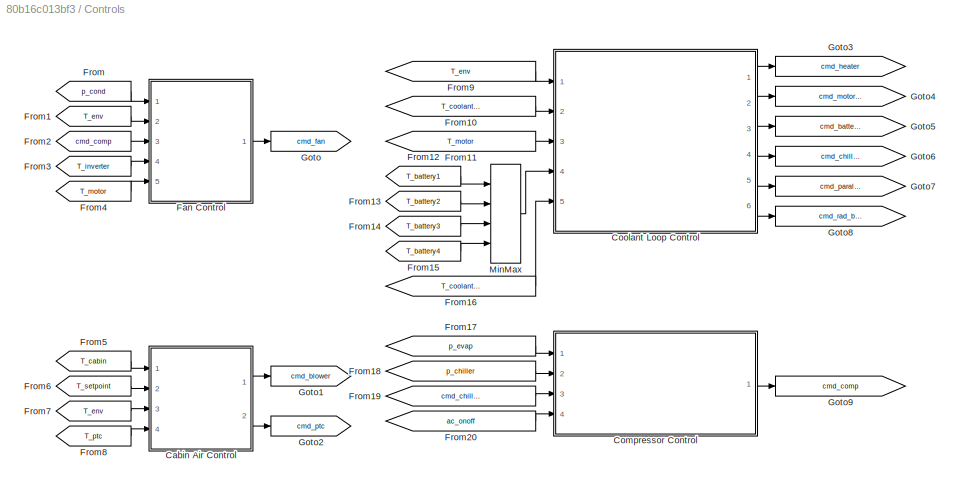
BLOCK [SubSystem] Controls
  Ports = []
  RequestExecContextInheritance = off
  Tag = PublishSubsystem
BLOCK [SubSystem] Controls/Cabin Air Control
  Ports = [4, 2]
  RequestExecContextInheritance = off
BLOCK [Constant] Controls/Cabin Air Control/Constant
  NameLocation = right
  Value = 0
BLOCK [Reference] Controls/Cabin Air Control/PID Controller  REF=pid_lib/PID Controller
  Ports = [1, 1]
  SourceBlock = pid_lib/PID Controller
  SourceProductBaseCode = SL
  SourceType = PID 1dof
BLOCK [Product] Controls/Cabin Air Control/Product
  Ports = [2, 1]
BLOCK [Relay] Controls/Cabin Air Control/Relay
  OffOutputValue = 1
  OffSwitchValue = 35
  OnOutputValue = 0
  OnSwitchValue = 45
  ZeroCross = off
BLOCK [Signum] Controls/Cabin Air Control/Sign
BLOCK [Sum] Controls/Cabin Air Control/Sum
  Inputs = -+|
  NameLocation = right
  Ports = [2, 1]
BLOCK [Sum] Controls/Cabin Air Control/Sum1
  Inputs = -+|
  Ports = [2, 1]
BLOCK [Switch] Controls/Cabin Air Control/Switch
  InputSameDT = off
  SaturateOnIntegerOverflow = off
BLOCK [Inport] Controls/Cabin Air Control/T_cabin
BLOCK [Inport] Controls/Cabin Air Control/T_env
  Port = 3
BLOCK [Inport] Controls/Cabin Air Control/T_ptc
  Port = 4
BLOCK [Inport] Controls/Cabin Air Control/T_setpoint
  Port = 2
BLOCK [Outport] Controls/Cabin Air Control/cmd_blower
BLOCK [Outport] Controls/Cabin Air Control/cmd_ptc
  Port = 2
BLOCK [SubSystem] Controls/Compressor Control
  Ports = [4, 1]
  RequestExecContextInheritance = off
BLOCK [Constant] Controls/Compressor Control/Constant
  NameLocation = right
BLOCK [Constant] Controls/Compressor Control/Constant1
  NameLocation = right
  Value = 0
BLOCK [Lookup_n-D] Controls/Compressor Control/Freezing Cutoff
  BeginIndexSearchUsingPreviousIndexResult = on
  BreakpointsForDimension1 = [0 0.15 0.25 0.4]
  IndexSearchMethod = Linear search
  InputPortMap = u0
  InternalRulePriority = Speed
  NumberOfTableDimensions = 1
  Ports = [1, 1]
  RndMeth = Simplest
  Table = [0 0 1 1]
BLOCK [MinMax] Controls/Compressor Control/MinMax
  Function = max
  Inputs = 2
  Ports = [2, 1]
  ZeroCross = off
BLOCK [MinMax] Controls/Compressor Control/MinMax1
  Inputs = 2
  Ports = [2, 1]
  ZeroCross = off
BLOCK [MinMax] Controls/Compressor Control/MinMax2
  Function = max
  Inputs = 2
  Ports = [2, 1]
BLOCK [Reference] Controls/Compressor Control/PID Controller  REF=pid_lib/PID Controller
  Ports = [1, 1]
  SourceBlock = pid_lib/PID Controller
  SourceProductBaseCode = SL
  SourceType = PID 1dof
BLOCK [Constant] Controls/Compressor Control/Pressure Target [MPa]
  NameLocation = right
  Value = 0.3
BLOCK [Product] Controls/Compressor Control/Product
  Ports = [2, 1]
BLOCK [Sum] Controls/Compressor Control/Sum
  Inputs = +-|
  Ports = [2, 1]
BLOCK [Sum] Controls/Compressor Control/Sum1
  Inputs = -+|
  Ports = [2, 1]
BLOCK [Switch] Controls/Compressor Control/Switch
  Criteria = u2 > Threshold
  InputSameDT = off
  SaturateOnIntegerOverflow = off
  Threshold = 0.5
BLOCK [Inport] Controls/Compressor Control/ac_onoff
  Port = 4
BLOCK [Inport] Controls/Compressor Control/cmd_chiller_bypass
  Port = 3
BLOCK [Outport] Controls/Compressor Control/cmd_comp
BLOCK [Inport] Controls/Compressor Control/p_chiller
  Port = 2
BLOCK [Inport] Controls/Compressor Control/p_evap
BLOCK [SubSystem] Controls/Coolant Loop Control
  Ports = [5, 6]
  RequestExecContextInheritance = off
BLOCK [SubSystem] Controls/Coolant Loop Control/Battery Heater
  Ports = [2, 1]
  RequestExecContextInheritance = off
BLOCK [Constant] Controls/Coolant Loop Control/Battery Heater/Constant
  NameLocation = right
  Value = 0
BLOCK [Relay] Controls/Coolant Loop Control/Battery Heater/Relay
  OffOutputValue = 1
  OffSwitchValue = 5
  OnOutputValue = 0
  OnSwitchValue = 15
  ZeroCross = off
BLOCK [Switch] Controls/Coolant Loop Control/Battery Heater/Switch
  Criteria = u2 > Threshold
  InputSameDT = off
  SaturateOnIntegerOverflow = off
  Threshold = 5
BLOCK [Inport] Controls/Coolant Loop Control/Battery Heater/T_coolant_battery_in
  Port = 2
BLOCK [Inport] Controls/Coolant Loop Control/Battery Heater/T_env
BLOCK [Outport] Controls/Coolant Loop Control/Battery Heater/cmd_heater
BLOCK [SubSystem] Controls/Coolant Loop Control/Battery Pump
  Ports = [4, 1]
  RequestExecContextInheritance = off
BLOCK [Constant] Controls/Coolant Loop Control/Battery Pump/Constant
  NameLocation = right
  Value = 0.3
BLOCK [Constant] Controls/Coolant Loop Control/Battery Pump/Constant1
  NameLocation = right
  Value = 0.5
BLOCK [MinMax] Controls/Coolant Loop Control/Battery Pump/MinMax
  Function = max
  Inputs = 2
  Ports = [2, 1]
BLOCK [Relay] Controls/Coolant Loop Control/Battery Pump/Relay
  OffSwitchValue = 45
  OnSwitchValue = 50
BLOCK [Switch] Controls/Coolant Loop Control/Battery Pump/Switch
  Criteria = u2 > Threshold
  InputSameDT = off
  SaturateOnIntegerOverflow = off
  Threshold = 0.5
BLOCK [Switch] Controls/Coolant Loop Control/Battery Pump/Switch1
  Criteria = u2 > Threshold
  InputSameDT = off
  SaturateOnIntegerOverflow = off
  Threshold = 0.5
BLOCK [Inport] Controls/Coolant Loop Control/Battery Pump/T_battery
  Port = 2
BLOCK [Outport] Controls/Coolant Loop Control/Battery Pump/cmd_battery_pump
BLOCK [Inport] Controls/Coolant Loop Control/Battery Pump/cmd_chiller_bypass
  Port = 3
BLOCK [Inport] Controls/Coolant Loop Control/Battery Pump/cmd_motor_pump
BLOCK [Inport] Controls/Coolant Loop Control/Battery Pump/parallel_serial
  Port = 4
BLOCK [SubSystem] Controls/Coolant Loop Control/Chiller Bypass
  Ports = [1, 1]
  RequestExecContextInheritance = off
BLOCK [Relay] Controls/Coolant Loop Control/Chiller Bypass/Relay
  OffOutputValue = 1
  OffSwitchValue = 30
  OnOutputValue = 0
  OnSwitchValue = 35
BLOCK [Inport] Controls/Coolant Loop Control/Chiller Bypass/T_battery
BLOCK [Outport] Controls/Coolant Loop Control/Chiller Bypass/cmd_chiller_bypass
BLOCK [SubSystem] Controls/Coolant Loop Control/Motor Pump
  Ports = [1, 1]
  RequestExecContextInheritance = off
BLOCK [Lookup_n-D] Controls/Coolant Loop Control/Motor Pump/1-D Lookup Table
  BeginIndexSearchUsingPreviousIndexResult = on
  BreakpointsForDimension1 = [-50 45 48 52 58 60 75 130]
  IndexSearchMethod = Linear search
  InputPortMap = u0
  InternalRulePriority = Speed
  NumberOfTableDimensions = 1
  Ports = [1, 1]
  RndMeth = Simplest
  Table = [0 0 0.1 0.3 0.5 0.7 1 1]
BLOCK [Saturate] Controls/Coolant Loop Control/Motor Pump/Saturation
  LowerLimit = 0.3
  UpperLimit = 1
BLOCK [Inport] Controls/Coolant Loop Control/Motor Pump/T_motor
BLOCK [Outport] Controls/Coolant Loop Control/Motor Pump/cmd_motor_pump
BLOCK [SubSystem] Controls/Coolant Loop Control/Parallel-Serial Mode
  Ports = [3, 1]
  RequestExecContextInheritance = off
BLOCK [Constant] Controls/Coolant Loop Control/Parallel-Serial Mode/Constant
  NameLocation = right
  Value = 0
BLOCK [MinMax] Controls/Coolant Loop Control/Parallel-Serial Mode/MinMax
  Function = max
  Inputs = 2
  Ports = [2, 1]
BLOCK [Relay] Controls/Coolant Loop Control/Parallel-Serial Mode/Relay
  OffOutputValue = 1
  OffSwitchValue = 30
  OnOutputValue = 0
  OnSwitchValue = 35
BLOCK [Switch] Controls/Coolant Loop Control/Parallel-Serial Mode/Switch
  Criteria = u2 > Threshold
  InputSameDT = off
  SaturateOnIntegerOverflow = off
  Threshold = 0.5
BLOCK [Inport] Controls/Coolant Loop Control/Parallel-Serial Mode/T_coolant_inverter_out
  Port = 3
BLOCK [Inport] Controls/Coolant Loop Control/Parallel-Serial Mode/T_env
  Port = 2
BLOCK [Inport] Controls/Coolant Loop Control/Parallel-Serial Mode/cmd_chiller_bypass
BLOCK [Outport] Controls/Coolant Loop Control/Parallel-Serial Mode/cmd_parallel_serial
BLOCK [SubSystem] Controls/Coolant Loop Control/Radiator Bypass
  Ports = [1, 1]
  RequestExecContextInheritance = off
BLOCK [Relay] Controls/Coolant Loop Control/Radiator Bypass/Relay
  OffOutputValue = 1
  OffSwitchValue = 20
  OnOutputValue = 0
  OnSwitchValue = 25
BLOCK [Inport] Controls/Coolant Loop Control/Radiator Bypass/T_coolant_inverter_out
BLOCK [Outport] Controls/Coolant Loop Control/Radiator Bypass/cmd_rad_bypass
BLOCK [Inport] Controls/Coolant Loop Control/T_battery
  Port = 4
BLOCK [Inport] Controls/Coolant Loop Control/T_coolant_battery_in
  Port = 2
BLOCK [Inport] Controls/Coolant Loop Control/T_coolant_inverter_out
  Port = 5
BLOCK [Inport] Controls/Coolant Loop Control/T_env
BLOCK [Inport] Controls/Coolant Loop Control/T_motor
  Port = 3
BLOCK [Outport] Controls/Coolant Loop Control/cmd_battery_pump
  Port = 3
BLOCK [Outport] Controls/Coolant Loop Control/cmd_chiller_bypass
  Port = 4
BLOCK [Outport] Controls/Coolant Loop Control/cmd_heater
BLOCK [Outport] Controls/Coolant Loop Control/cmd_motor_pump
  Port = 2
BLOCK [Outport] Controls/Coolant Loop Control/cmd_parallel_serial
  Port = 5
BLOCK [Outport] Controls/Coolant Loop Control/cmd_rad_bypass
  Port = 6
BLOCK [SubSystem] Controls/Fan Control
  Ports = [5, 1]
  RequestExecContextInheritance = off
BLOCK [SubSystem] Controls/Fan Control/Condenser Requirement
  Ports = [2, 1]
  RequestExecContextInheritance = off
BLOCK [Lookup_n-D] Controls/Fan Control/Condenser Requirement/1-D Lookup Table
  BeginIndexSearchUsingPreviousIndexResult = on
  BreakpointsForDimension1 = [0 20 30 40 50]
  IndexSearchMethod = Linear search
  InputPortMap = u0
  InternalRulePriority = Speed
  NumberOfTableDimensions = 1
  Ports = [1, 1]
  RndMeth = Simplest
  Table = [2.0 2.0 1.8 1.5 1.3]
BLOCK [Lookup_n-D] Controls/Fan Control/Condenser Requirement/1-D Lookup Table1
  BeginIndexSearchUsingPreviousIndexResult = on
  BreakpointsForDimension1 = [0 20 30 40 50]
  IndexSearchMethod = Linear search
  InputPortMap = u0
  InternalRulePriority = Speed
  NumberOfTableDimensions = 1
  Ports = [1, 1]
  RndMeth = Simplest
  Table = [1.4 1.4 1.3 1.2 1.1]
BLOCK [Lookup_n-D] Controls/Fan Control/Condenser Requirement/1-D Lookup Table2
  BeginIndexSearchUsingPreviousIndexResult = on
  BreakpointsForDimension1 = [0 20 30 40 50]
  IndexSearchMethod = Linear search
  InputPortMap = u0
  InternalRulePriority = Speed
  NumberOfTableDimensions = 1
  Ports = [1, 1]
  RndMeth = Simplest
  Table = [0.8 0.8 0.8 0.8 0.8]
BLOCK [Bias] Controls/Fan Control/Condenser Requirement/Bias
  Bias = 0.4
  SaturateOnIntegerOverflow = off
BLOCK [Bias] Controls/Fan Control/Condenser Requirement/Bias1
  Bias = 0.4
  SaturateOnIntegerOverflow = off
BLOCK [Bias] Controls/Fan Control/Condenser Requirement/Bias2
  Bias = 0.3
  SaturateOnIntegerOverflow = off
BLOCK [Gain] Controls/Fan Control/Condenser Requirement/Gain
  Gain = 1/3
BLOCK [SubSystem] Controls/Fan Control/Condenser Requirement/Relay Level 1
  Ports = [3, 1]
  RequestExecContextInheritance = off
BLOCK [DataTypeConversion] Controls/Fan Control/Condenser Requirement/Relay Level 1/Data Type Conversion
  RndMeth = Floor
  SaturateOnIntegerOverflow = off
BLOCK [RelationalOperator] Controls/Fan Control/Condenser Requirement/Relay Level 1/Relational Operator
  InputSameDT = off
  OutDataTypeStr = boolean
  Ports = [2, 1]
  RndMeth = Simplest
BLOCK [RelationalOperator] Controls/Fan Control/Condenser Requirement/Relay Level 1/Relational Operator1
  InputSameDT = off
  Operator = >
  OutDataTypeStr = boolean
  Ports = [2, 1]
  RndMeth = Simplest
BLOCK [Relay] Controls/Fan Control/Condenser Requirement/Relay Level 1/Relay
  OffSwitchValue = 0.5
  OnSwitchValue = 1.5
BLOCK [Sum] Controls/Fan Control/Condenser Requirement/Relay Level 1/Sum
  Inputs = |++
  Ports = [2, 1]
BLOCK [Inport] Controls/Fan Control/Condenser Requirement/Relay Level 1/high
  Port = 2
BLOCK [Inport] Controls/Fan Control/Condenser Requirement/Relay Level 1/in
BLOCK [Inport] Controls/Fan Control/Condenser Requirement/Relay Level 1/low
  Port = 3
BLOCK [Outport] Controls/Fan Control/Condenser Requirement/Relay Level 1/out
BLOCK [SubSystem] Controls/Fan Control/Condenser Requirement/Relay Level 2
  Ports = [3, 1]
  RequestExecContextInheritance = off
BLOCK [DataTypeConversion] Controls/Fan Control/Condenser Requirement/Relay Level 2/Data Type Conversion
  RndMeth = Floor
  SaturateOnIntegerOverflow = off
BLOCK [RelationalOperator] Controls/Fan Control/Condenser Requirement/Relay Level 2/Relational Operator
  InputSameDT = off
  OutDataTypeStr = boolean
  Ports = [2, 1]
  RndMeth = Simplest
BLOCK [RelationalOperator] Controls/Fan Control/Condenser Requirement/Relay Level 2/Relational Operator1
  InputSameDT = off
  Operator = >
  OutDataTypeStr = boolean
  Ports = [2, 1]
  RndMeth = Simplest
BLOCK [Relay] Controls/Fan Control/Condenser Requirement/Relay Level 2/Relay
  OffSwitchValue = 0.5
  OnSwitchValue = 1.5
BLOCK [Sum] Controls/Fan Control/Condenser Requirement/Relay Level 2/Sum
  Inputs = |++
  Ports = [2, 1]
BLOCK [Inport] Controls/Fan Control/Condenser Requirement/Relay Level 2/high
  Port = 2
BLOCK [Inport] Controls/Fan Control/Condenser Requirement/Relay Level 2/in
BLOCK [Inport] Controls/Fan Control/Condenser Requirement/Relay Level 2/low
  Port = 3
BLOCK [Outport] Controls/Fan Control/Condenser Requirement/Relay Level 2/out
BLOCK [SubSystem] Controls/Fan Control/Condenser Requirement/Relay Level 3
  Ports = [3, 1]
  RequestExecContextInheritance = off
BLOCK [DataTypeConversion] Controls/Fan Control/Condenser Requirement/Relay Level 3/Data Type Conversion
  RndMeth = Floor
  SaturateOnIntegerOverflow = off
BLOCK [RelationalOperator] Controls/Fan Control/Condenser Requirement/Relay Level 3/Relational Operator
  InputSameDT = off
  OutDataTypeStr = boolean
  Ports = [2, 1]
  RndMeth = Simplest
BLOCK [RelationalOperator] Controls/Fan Control/Condenser Requirement/Relay Level 3/Relational Operator1
  InputSameDT = off
  Operator = >
  OutDataTypeStr = boolean
  Ports = [2, 1]
  RndMeth = Simplest
BLOCK [Relay] Controls/Fan Control/Condenser Requirement/Relay Level 3/Relay
  OffSwitchValue = 0.5
  OnSwitchValue = 1.5
BLOCK [Sum] Controls/Fan Control/Condenser Requirement/Relay Level 3/Sum
  Inputs = |++
  Ports = [2, 1]
BLOCK [Inport] Controls/Fan Control/Condenser Requirement/Relay Level 3/high
  Port = 2
BLOCK [Inport] Controls/Fan Control/Condenser Requirement/Relay Level 3/in
BLOCK [Inport] Controls/Fan Control/Condenser Requirement/Relay Level 3/low
  Port = 3
BLOCK [Outport] Controls/Fan Control/Condenser Requirement/Relay Level 3/out
BLOCK [Sum] Controls/Fan Control/Condenser Requirement/Sum
  Inputs = +++
  Ports = [3, 1]
BLOCK [Inport] Controls/Fan Control/Condenser Requirement/T_env
  Port = 2
BLOCK [Outport] Controls/Fan Control/Condenser Requirement/cmd_fan
BLOCK [Inport] Controls/Fan Control/Condenser Requirement/p_cond
BLOCK [Constant] Controls/Fan Control/Constant
  NameLocation = right
  Value = 0
BLOCK [SubSystem] Controls/Fan Control/Inverter Requirement
  Ports = [1, 1]
  RequestExecContextInheritance = off
BLOCK [Gain] Controls/Fan Control/Inverter Requirement/Gain
  Gain = 1/3
BLOCK [Relay] Controls/Fan Control/Inverter Requirement/Relay Level 1
  OffSwitchValue = 65
  OnSwitchValue = 75
BLOCK [Relay] Controls/Fan Control/Inverter Requirement/Relay Level 2
  OffSwitchValue = 76
  OnSwitchValue = 85
BLOCK [Relay] Controls/Fan Control/Inverter Requirement/Relay Level 3
  OffSwitchValue = 86
  OnSwitchValue = 95
BLOCK [Sum] Controls/Fan Control/Inverter Requirement/Sum
  Inputs = +++
  Ports = [3, 1]
BLOCK [Inport] Controls/Fan Control/Inverter Requirement/T_inverter
BLOCK [Outport] Controls/Fan Control/Inverter Requirement/cmd_fan
BLOCK [MinMax] Controls/Fan Control/MinMax
  Function = max
  Inputs = 3
  Ports = [3, 1]
BLOCK [SubSystem] Controls/Fan Control/Motor Requirement
  Ports = [1, 1]
  RequestExecContextInheritance = off
BLOCK [Lookup_n-D] Controls/Fan Control/Motor Requirement/1-D Lookup Table
  BeginIndexSearchUsingPreviousIndexResult = on
  BreakpointsForDimension1 = [-50 45 48 52 58 60 75 130]
  IndexSearchMethod = Linear search
  InputPortMap = u0
  InternalRulePriority = Speed
  NumberOfTableDimensions = 1
  Ports = [1, 1]
  RndMeth = Simplest
  Table = [0 0 0.1 0.3 0.5 0.7 1 1]
BLOCK [Inport] Controls/Fan Control/Motor Requirement/T_motor
BLOCK [Outport] Controls/Fan Control/Motor Requirement/cmd_fan
BLOCK [Switch] Controls/Fan Control/Switch
  Criteria = u2 > Threshold
  InputSameDT = off
  SaturateOnIntegerOverflow = off
BLOCK [Inport] Controls/Fan Control/T_env
  Port = 2
BLOCK [Inport] Controls/Fan Control/T_inverter
  Port = 4
BLOCK [Inport] Controls/Fan Control/T_motor
  Port = 5
BLOCK [Inport] Controls/Fan Control/cmd_comp
  Port = 3
BLOCK [Outport] Controls/Fan Control/cmd_fan
BLOCK [Inport] Controls/Fan Control/p_cond
BLOCK [From] Controls/From
  GotoTag = p_cond
  TagVisibility = global
BLOCK [From] Controls/From1
  GotoTag = T_env
  TagVisibility = global
BLOCK [From] Controls/From10
  GotoTag = T_coolant_battery_in
  TagVisibility = global
BLOCK [From] Controls/From11
  GotoTag = T_motor
  TagVisibility = global
BLOCK [From] Controls/From12
  GotoTag = T_battery1
  TagVisibility = global
BLOCK [From] Controls/From13
  GotoTag = T_battery2
  TagVisibility = global
BLOCK [From] Controls/From14
  GotoTag = T_battery3
  TagVisibility = global
BLOCK [From] Controls/From15
  GotoTag = T_battery4
  TagVisibility = global
BLOCK [From] Controls/From16
  GotoTag = T_coolant_inverter_out
  TagVisibility = global
BLOCK [From] Controls/From17
  GotoTag = p_evap
  TagVisibility = global
BLOCK [From] Controls/From18
  GotoTag = p_chiller
  TagVisibility = global
BLOCK [From] Controls/From19
  GotoTag = cmd_chiller_bypass
  TagVisibility = global
BLOCK [From] Controls/From2
  GotoTag = cmd_comp
  TagVisibility = global
BLOCK [From] Controls/From20
  GotoTag = ac_onoff
  TagVisibility = global
BLOCK [From] Controls/From3
  GotoTag = T_inverter
  TagVisibility = global
BLOCK [From] Controls/From4
  GotoTag = T_motor
  TagVisibility = global
BLOCK [From] Controls/From5
  GotoTag = T_cabin
  TagVisibility = global
BLOCK [From] Controls/From6
  GotoTag = T_setpoint
  TagVisibility = global
BLOCK [From] Controls/From7
  GotoTag = T_env
  TagVisibility = global
BLOCK [From] Controls/From8
  GotoTag = T_ptc
  TagVisibility = global
BLOCK [From] Controls/From9
  GotoTag = T_env
  TagVisibility = global
BLOCK [Goto] Controls/Goto
  GotoTag = cmd_fan
  TagVisibility = global
BLOCK [Goto] Controls/Goto1
  GotoTag = cmd_blower
  TagVisibility = global
BLOCK [Goto] Controls/Goto2
  GotoTag = cmd_ptc
  TagVisibility = global
BLOCK [Goto] Controls/Goto3
  GotoTag = cmd_heater
  TagVisibility = global
BLOCK [Goto] Controls/Goto4
  GotoTag = cmd_motor_pump
  TagVisibility = global
BLOCK [Goto] Controls/Goto5
  GotoTag = cmd_battery_pump
  TagVisibility = global
BLOCK [Goto] Controls/Goto6
  GotoTag = cmd_chiller_bypass
  TagVisibility = global
BLOCK [Goto] Controls/Goto7
  GotoTag = cmd_parallel_serial
  TagVisibility = global
BLOCK [Goto] Controls/Goto8
  GotoTag = cmd_rad_bypass
  TagVisibility = global
BLOCK [Goto] Controls/Goto9
  GotoTag = cmd_comp
  TagVisibility = global
BLOCK [MinMax] Controls/MinMax
  Function = max
  Inputs = 4
  Ports = [4, 1]
BLOCK [SubSystem] DCDC
  Ports = [0, 0, 0, 0, 0, 1, 1]
  RequestExecContextInheritance = off
  Tag = PublishSubsystem
BLOCK [PMIOPort] DCDC/A
  Port = 2
  Side = Right
BLOCK [PMIOPort] DCDC/B
  Side = Left
BLOCK [Reference] DCDC/Controlled Heat Flow Rate Source  REF=fl_lib/Thermal/Thermal Sources/Controlled Heat Flow
Rate Source
  Ports = [0, 0, 0, 0, 0, 1, 2]
  SourceBlock = fl_lib/Thermal/Thermal Sources/Controlled Heat Flow\nRate Source
  SourceProductBaseCode = SS
  SourceType = Controlled Heat Flow\nRate Source
BLOCK [Reference] DCDC/Coolant Jacket  REF=SimscapeFluids_lib/Thermal Liquid/Pipes & Fittings/Pipe (TL)
  Ports = [0, 0, 0, 0, 0, 2, 1]
  SourceBlock = SimscapeFluids_lib/Thermal Liquid/Pipes & Fittings/Pipe (TL)
  SourceProductBaseCode = SH
  SourceType = Pipe (TL)
BLOCK [Reference] DCDC/DC-DC Converter  REF=fl_lib/Thermal/Thermal Elements/Thermal Mass
  Ports = [0, 0, 0, 0, 0, 1]
  SourceBlock = fl_lib/Thermal/Thermal Elements/Thermal Mass
  SourceProductBaseCode = SS
  SourceType = Thermal Mass
BLOCK [Reference] DCDC/Flow Resistance (TL)  REF=fl_lib/Thermal Liquid/Elements/Flow Resistance (TL)
  Ports = [0, 0, 0, 0, 0, 1, 1]
  SourceBlock = fl_lib/Thermal Liquid/Elements/Flow Resistance (TL)
  SourceProductBaseCode = SS
  SourceType = Flow Resistance (TL)
BLOCK [Reference] DCDC/Flow Resistance (TL)1  REF=fl_lib/Thermal Liquid/Elements/Flow Resistance (TL)
  Ports = [0, 0, 0, 0, 0, 1, 1]
  SourceBlock = fl_lib/Thermal Liquid/Elements/Flow Resistance (TL)
  SourceProductBaseCode = SS
  SourceType = Flow Resistance (TL)
BLOCK [From] DCDC/From
  GotoTag = Q_dcdc
  TagVisibility = global
BLOCK [Goto] DCDC/Goto
  GotoTag = T_dcdc
  TagVisibility = global
BLOCK [Reference] DCDC/PS-Simulink Converter  REF=nesl_utility/PS-Simulink
Converter
  Ports = [0, 1, 0, 0, 0, 1]
  SourceBlock = nesl_utility/PS-Simulink\nConverter
  SourceProductBaseCode = PW,SS
  SourceType = PS-Simulink\nConverter
BLOCK [Reference] DCDC/Simulink-PS Converter  REF=nesl_utility/Simulink-PS
Converter
  Ports = [1, 0, 0, 0, 0, 0, 1]
  SourceBlock = nesl_utility/Simulink-PS\nConverter
  SourceProductBaseCode = PW,SS
  SourceType = Simulink-PS\nConverter
BLOCK [Reference] DCDC/Temperature Sensor  REF=fl_lib/Thermal/Thermal Sensors/Temperature Sensor
  Ports = [0, 0, 0, 0, 0, 1, 2]
  SourceBlock = fl_lib/Thermal/Thermal Sensors/Temperature Sensor
  SourceProductBaseCode = SS
  SourceType = Temperature Sensor
BLOCK [Reference] DCDC/Thermal Reference  REF=fl_lib/Thermal/Thermal Elements/Thermal Reference
  NameLocation = right
  Ports = [0, 0, 0, 0, 0, 1]
  SourceBlock = fl_lib/Thermal/Thermal Elements/Thermal Reference
  SourceProductBaseCode = SS
  SourceType = Thermal Reference
BLOCK [Reference] DCDC/Thermal Reference1  REF=fl_lib/Thermal/Thermal Elements/Thermal Reference
  Ports = [0, 0, 0, 0, 0, 1]
  SourceBlock = fl_lib/Thermal/Thermal Elements/Thermal Reference
  SourceProductBaseCode = SS
  SourceType = Thermal Reference
BLOCK [SubSystem] Evaporator
  Ports = [0, 0, 0, 0, 0, 2, 2]
  RequestExecContextInheritance = off
  Tag = PublishSubsystem
BLOCK [SubSystem] Evaporator Expansion Valve
  Ports = [0, 0, 0, 0, 0, 1, 1]
  RequestExecContextInheritance = off
  Tag = PublishSubsystem
BLOCK [PMIOPort] Evaporator Expansion Valve/A
  Port = 2
  Side = Right
BLOCK [PMIOPort] Evaporator Expansion Valve/B
  Side = Left
BLOCK [Reference] Evaporator Expansion Valve/Evaporator Expansion Valve  REF=SimscapeFluids_lib/Two-Phase Fluid/Valves & Orifices/Flow Control Valves/Thermostatic
Expansion Valve (2P)
  Ports = [0, 0, 0, 0, 0, 3, 1]
  SourceBlock = SimscapeFluids_lib/Two-Phase Fluid/Valves & Orifices/Flow Control Valves/Thermostatic\nExpansion Valve (2P)
  SourceProductBaseCode = SH
  SourceType = Thermostatic\nExpansion Valve (2P)
BLOCK [SimscapeBus] Evaporator Expansion Valve/Simscape Bus
  HierarchyStrings = bulb;outlet
  Ports = [0, 0, 0, 0, 0, 2, 1]
BLOCK [PMIOPort] Evaporator/A
  Port = 2
  Side = Right
BLOCK [PMIOPort] Evaporator/B
  Side = Left
BLOCK [PMIOPort] Evaporator/C
  Port = 3
  Side = Left
BLOCK [PMIOPort] Evaporator/D
  Port = 4
  Side = Right
BLOCK [Reference] Evaporator/Evaporator  REF=SimscapeFluids_lib/Fluid Network
Interfaces/Heat Exchangers/Condenser Evaporator
(2P-MA)
  NameLocation = right
  Ports = [0, 0, 0, 0, 0, 3, 3]
  SourceBlock = SimscapeFluids_lib/Fluid Network\nInterfaces/Heat Exchangers/Condenser Evaporator\n(2P-MA)
  SourceProductBaseCode = SH
  SourceType = Condenser Evaporator\n(2P-MA)
BLOCK [Reference] Evaporator/Flow Resistance (2P)  REF=fl_lib/Two-Phase Fluid/Elements/Flow Resistance (2P)
  Ports = [0, 0, 0, 0, 0, 1, 1]
  SourceBlock = fl_lib/Two-Phase Fluid/Elements/Flow Resistance (2P)
  SourceProductBaseCode = SS
  SourceType = Flow Resistance (2P)
BLOCK [SubSystem] Evaporator/SR5
  Ports = [0, 0, 0, 0, 0, 1, 1]
  RequestExecContextInheritance = off
BLOCK [PMIOPort] Evaporator/SR5/A
  Port = 2
  Side = Right
BLOCK [Reference] Evaporator/SR5/Absolute Reference (2P)  REF=fl_lib/Two-Phase Fluid/Elements/Absolute Reference
(2P)
  NameLocation = right
  Ports = [0, 0, 0, 0, 0, 1]
  SourceBlock = fl_lib/Two-Phase Fluid/Elements/Absolute Reference\n(2P)
  SourceProductBaseCode = SS
  SourceType = Absolute Reference\n(2P)
BLOCK [PMIOPort] Evaporator/SR5/B
  Side = Left
BLOCK [Goto] Evaporator/SR5/Goto
  GotoTag = Phi_evap_in
  TagVisibility = global
BLOCK [Reference] Evaporator/SR5/Mass & Energy Flow Rate Sensor (2P)  REF=fl_lib/Two-Phase Fluid/Sensors/Mass & Energy Flow
Rate Sensor (2P)
  Ports = [0, 0, 0, 0, 0, 1, 3]
  SourceBlock = fl_lib/Two-Phase Fluid/Sensors/Mass & Energy Flow\nRate Sensor (2P)
  SourceProductBaseCode = SS
  SourceType = Mass & Energy Flow\nRate Sensor (2P)
BLOCK [Reference] Evaporator/SR5/PS-Simulink Converter  REF=nesl_utility/PS-Simulink
Converter
  Ports = [0, 1, 0, 0, 0, 1]
  SourceBlock = nesl_utility/PS-Simulink\nConverter
  SourceProductBaseCode = PW,SS
  SourceType = PS-Simulink\nConverter
BLOCK [Reference] Evaporator/SR5/Pressure & Internal Energy Sensor (2P)  REF=fl_lib/Two-Phase Fluid/Sensors/Pressure & Internal
Energy Sensor (2P)
  NameLocation = right
  Ports = [0, 0, 0, 0, 0, 1, 3]
  SourceBlock = fl_lib/Two-Phase Fluid/Sensors/Pressure & Internal\nEnergy Sensor (2P)
  SourceProductBaseCode = SS
  SourceType = Pressure & Internal\nEnergy Sensor (2P)
BLOCK [Reference] Evaporator/SR5/Thermodynamic Properties Sensor (2P)1  REF=fl_lib/Two-Phase Fluid/Sensors/Thermodynamic
Properties Sensor
(2P)
  NameLocation = right
  Ports = [0, 0, 0, 0, 0, 1, 4]
  SourceBlock = fl_lib/Two-Phase Fluid/Sensors/Thermodynamic\nProperties Sensor\n(2P)
  SourceProductBaseCode = SS
  SourceType = Thermodynamic\nProperties Sensor\n(2P)
BLOCK [SubSystem] Evaporator/SR6
  Ports = [0, 0, 0, 0, 0, 1, 1]
  RequestExecContextInheritance = off
BLOCK [PMIOPort] Evaporator/SR6/A
  Port = 2
  Side = Right
BLOCK [Reference] Evaporator/SR6/Absolute Reference (2P)  REF=fl_lib/Two-Phase Fluid/Elements/Absolute Reference
(2P)
  NameLocation = right
  Ports = [0, 0, 0, 0, 0, 1]
  SourceBlock = fl_lib/Two-Phase Fluid/Elements/Absolute Reference\n(2P)
  SourceProductBaseCode = SS
  SourceType = Absolute Reference\n(2P)
BLOCK [PMIOPort] Evaporator/SR6/B
  Side = Left
BLOCK [Goto] Evaporator/SR6/Goto
  GotoTag = Phi_evap_out
  TagVisibility = global
BLOCK [Goto] Evaporator/SR6/Goto1
  GotoTag = p_evap
  TagVisibility = global
BLOCK [Reference] Evaporator/SR6/Mass & Energy Flow Rate Sensor (2P)  REF=fl_lib/Two-Phase Fluid/Sensors/Mass & Energy Flow
Rate Sensor (2P)
  Ports = [0, 0, 0, 0, 0, 1, 3]
  SourceBlock = fl_lib/Two-Phase Fluid/Sensors/Mass & Energy Flow\nRate Sensor (2P)
  SourceProductBaseCode = SS
  SourceType = Mass & Energy Flow\nRate Sensor (2P)
BLOCK [Reference] Evaporator/SR6/PS-Simulink Converter  REF=nesl_utility/PS-Simulink
Converter
  Ports = [0, 1, 0, 0, 0, 1]
  SourceBlock = nesl_utility/PS-Simulink\nConverter
  SourceProductBaseCode = PW,SS
  SourceType = PS-Simulink\nConverter
BLOCK [Reference] Evaporator/SR6/PS-Simulink Converter1  REF=nesl_utility/PS-Simulink
Converter
  Ports = [0, 1, 0, 0, 0, 1]
  SourceBlock = nesl_utility/PS-Simulink\nConverter
  SourceProductBaseCode = PW,SS
  SourceType = PS-Simulink\nConverter
BLOCK [Reference] Evaporator/SR6/Pressure & Internal Energy Sensor (2P)  REF=fl_lib/Two-Phase Fluid/Sensors/Pressure & Internal
Energy Sensor (2P)
  NameLocation = right
  Ports = [0, 0, 0, 0, 0, 1, 3]
  SourceBlock = fl_lib/Two-Phase Fluid/Sensors/Pressure & Internal\nEnergy Sensor (2P)
  SourceProductBaseCode = SS
  SourceType = Pressure & Internal\nEnergy Sensor (2P)
BLOCK [Reference] Evaporator/SR6/Thermodynamic Properties Sensor (2P)1  REF=fl_lib/Two-Phase Fluid/Sensors/Thermodynamic
Properties Sensor
(2P)
  NameLocation = right
  Ports = [0, 0, 0, 0, 0, 1, 4]
  SourceBlock = fl_lib/Two-Phase Fluid/Sensors/Thermodynamic\nProperties Sensor\n(2P)
  SourceProductBaseCode = SS
  SourceType = Thermodynamic\nProperties Sensor\n(2P)
BLOCK [SimscapeBus] Evaporator/Simscape Bus
  HierarchyStrings = bulb;outlet
  Ports = [0, 0, 0, 0, 0, 2, 1]
BLOCK [SubSystem] Heater
  Ports = [0, 0, 0, 0, 0, 1, 1]
  RequestExecContextInheritance = off
  Tag = PublishSubsystem
BLOCK [PMIOPort] Heater/A
  NameLocation = right
  Side = Left
BLOCK [PMIOPort] Heater/B
  NameLocation = right
  Port = 2
  Side = Right
BLOCK [Reference] Heater/Battery Heater  REF=fl_lib/Thermal/Thermal Elements/Thermal Mass
  NameLocation = right
  Ports = [0, 0, 0, 0, 0, 1]
  SourceBlock = fl_lib/Thermal/Thermal Elements/Thermal Mass
  SourceProductBaseCode = SS
  SourceType = Thermal Mass
BLOCK [Reference] Heater/Controlled Heat Flow Rate Source  REF=fl_lib/Thermal/Thermal Sources/Controlled Heat Flow
Rate Source
  NameLocation = right
  Ports = [0, 0, 0, 0, 0, 1, 2]
  SourceBlock = fl_lib/Thermal/Thermal Sources/Controlled Heat Flow\nRate Source
  SourceProductBaseCode = SS
  SourceType = Controlled Heat Flow\nRate Source
BLOCK [Reference] Heater/Convective Heat Transfer  REF=fl_lib/Thermal/Thermal Elements/Convective Heat
Transfer
  Ports = [0, 0, 0, 0, 0, 1, 1]
  SourceBlock = fl_lib/Thermal/Thermal Elements/Convective Heat\nTransfer
  SourceProductBaseCode = SS
  SourceType = Convective Heat\nTransfer
BLOCK [Reference] Heater/Flow Resistance (TL)  REF=fl_lib/Thermal Liquid/Elements/Flow Resistance (TL)
  NameLocation = right
  Ports = [0, 0, 0, 0, 0, 1, 1]
  SourceBlock = fl_lib/Thermal Liquid/Elements/Flow Resistance (TL)
  SourceProductBaseCode = SS
  SourceType = Flow Resistance (TL)
BLOCK [Reference] Heater/Flow Resistance (TL)1  REF=fl_lib/Thermal Liquid/Elements/Flow Resistance (TL)
  NameLocation = right
  Ports = [0, 0, 0, 0, 0, 1, 1]
  SourceBlock = fl_lib/Thermal Liquid/Elements/Flow Resistance (TL)
  SourceProductBaseCode = SS
  SourceType = Flow Resistance (TL)
BLOCK [From] Heater/From
  GotoTag = cmd_heater
  TagVisibility = global
BLOCK [Reference] Heater/Heater Air Volume  REF=fl_lib/Thermal Liquid/Elements/Constant Volume
Chamber (TL)
  NameLocation = right
  Ports = [0, 0, 0, 0, 0, 2, 1]
  SourceBlock = fl_lib/Thermal Liquid/Elements/Constant Volume\nChamber (TL)
  SourceProductBaseCode = SS
  SourceType = Constant Volume\nChamber (TL)
BLOCK [Gain] Heater/Max Power [W]
  Gain = 4000
BLOCK [Reference] Heater/Simulink-PS Converter  REF=nesl_utility/Simulink-PS
Converter
  Ports = [1, 0, 0, 0, 0, 0, 1]
  SourceBlock = nesl_utility/Simulink-PS\nConverter
  SourceProductBaseCode = PW,SS
  SourceType = Simulink-PS\nConverter
BLOCK [Reference] Heater/Thermal Reference  REF=fl_lib/Thermal/Thermal Elements/Thermal Reference
  NameLocation = right
  Ports = [0, 0, 0, 0, 0, 1]
  SourceBlock = fl_lib/Thermal/Thermal Elements/Thermal Reference
  SourceProductBaseCode = SS
  SourceType = Thermal Reference
BLOCK [TransferFcn] Heater/Transfer Fcn
  Denominator = [1 1]
BLOCK [SubSystem] Inverter
  Ports = [0, 0, 0, 0, 0, 1, 1]
  RequestExecContextInheritance = off
  Tag = PublishSubsystem
BLOCK [PMIOPort] Inverter/A
  Side = Left
BLOCK [PMIOPort] Inverter/B
  Port = 2
  Side = Right
BLOCK [Reference] Inverter/Controlled Heat Flow Rate Source  REF=fl_lib/Thermal/Thermal Sources/Controlled Heat Flow
Rate Source
  Ports = [0, 0, 0, 0, 0, 1, 2]
  SourceBlock = fl_lib/Thermal/Thermal Sources/Controlled Heat Flow\nRate Source
  SourceProductBaseCode = SS
  SourceType = Controlled Heat Flow\nRate Source
BLOCK [Reference] Inverter/Coolant Jacket  REF=SimscapeFluids_lib/Thermal Liquid/Pipes & Fittings/Pipe (TL)
  Ports = [0, 0, 0, 0, 0, 2, 1]
  SourceBlock = SimscapeFluids_lib/Thermal Liquid/Pipes & Fittings/Pipe (TL)
  SourceProductBaseCode = SH
  SourceType = Pipe (TL)
BLOCK [From] Inverter/From
  GotoTag = Q_inverter
  TagVisibility = global
BLOCK [Goto] Inverter/Goto
  GotoTag = T_inverter
  TagVisibility = global
BLOCK [Reference] Inverter/Inverter  REF=fl_lib/Thermal/Thermal Elements/Thermal Mass
  Ports = [0, 0, 0, 0, 0, 1]
  SourceBlock = fl_lib/Thermal/Thermal Elements/Thermal Mass
  SourceProductBaseCode = SS
  SourceType = Thermal Mass
BLOCK [Reference] Inverter/PS-Simulink Converter  REF=nesl_utility/PS-Simulink
Converter
  Ports = [0, 1, 0, 0, 0, 1]
  SourceBlock = nesl_utility/PS-Simulink\nConverter
  SourceProductBaseCode = PW,SS
  SourceType = PS-Simulink\nConverter
BLOCK [SubSystem] Inverter/SC7
  Ports = [0, 0, 0, 0, 0, 1, 1]
  RequestExecContextInheritance = off
BLOCK [PMIOPort] Inverter/SC7/A
  Side = Left
BLOCK [Reference] Inverter/SC7/Absolute Reference (TL)  REF=fl_lib/Thermal Liquid/Elements/Absolute Reference
(TL)
  NameLocation = right
  Ports = [0, 0, 0, 0, 0, 1]
  SourceBlock = fl_lib/Thermal Liquid/Elements/Absolute Reference\n(TL)
  SourceProductBaseCode = SS
  SourceType = Absolute Reference\n(TL)
BLOCK [PMIOPort] Inverter/SC7/B
  Port = 2
  Side = Right
BLOCK [Goto] Inverter/SC7/Goto1
  GotoTag = T_coolant_inverter_out
  TagVisibility = global
BLOCK [Reference] Inverter/SC7/Mass & Energy Flow Rate Sensor (TL)  REF=fl_lib/Thermal Liquid/Sensors/Mass & Energy Flow
Rate Sensor (TL)
  Ports = [0, 0, 0, 0, 0, 1, 3]
  SourceBlock = fl_lib/Thermal Liquid/Sensors/Mass & Energy Flow\nRate Sensor (TL)
  SourceProductBaseCode = SS
  SourceType = Mass & Energy Flow\nRate Sensor (TL)
BLOCK [Reference] Inverter/SC7/PS-Simulink Converter1  REF=nesl_utility/PS-Simulink
Converter
  Ports = [0, 1, 0, 0, 0, 1]
  SourceBlock = nesl_utility/PS-Simulink\nConverter
  SourceProductBaseCode = PW,SS
  SourceType = PS-Simulink\nConverter
BLOCK [Reference] Inverter/SC7/Pressure & Temperature Sensor (TL)  REF=fl_lib/Thermal Liquid/Sensors/Pressure &
Temperature Sensor
(TL)
  NameLocation = right
  Ports = [0, 0, 0, 0, 0, 1, 3]
  SourceBlock = fl_lib/Thermal Liquid/Sensors/Pressure &\nTemperature Sensor\n(TL)
  SourceProductBaseCode = SS
  SourceType = Pressure &\nTemperature Sensor\n(TL)
BLOCK [Reference] Inverter/Simulink-PS Converter  REF=nesl_utility/Simulink-PS
Converter
  Ports = [1, 0, 0, 0, 0, 0, 1]
  SourceBlock = nesl_utility/Simulink-PS\nConverter
  SourceProductBaseCode = PW,SS
  SourceType = Simulink-PS\nConverter
BLOCK [Reference] Inverter/Temperature Sensor  REF=fl_lib/Thermal/Thermal Sensors/Temperature Sensor
  Ports = [0, 0, 0, 0, 0, 1, 2]
  SourceBlock = fl_lib/Thermal/Thermal Sensors/Temperature Sensor
  SourceProductBaseCode = SS
  SourceType = Temperature Sensor
BLOCK [Reference] Inverter/Thermal Reference  REF=fl_lib/Thermal/Thermal Elements/Thermal Reference
  NameLocation = right
  Ports = [0, 0, 0, 0, 0, 1]
  SourceBlock = fl_lib/Thermal/Thermal Elements/Thermal Reference
  SourceProductBaseCode = SS
  SourceType = Thermal Reference
BLOCK [Reference] Inverter/Thermal Reference1  REF=fl_lib/Thermal/Thermal Elements/Thermal Reference
  Ports = [0, 0, 0, 0, 0, 1]
  SourceBlock = fl_lib/Thermal/Thermal Elements/Thermal Reference
  SourceProductBaseCode = SS
  SourceType = Thermal Reference
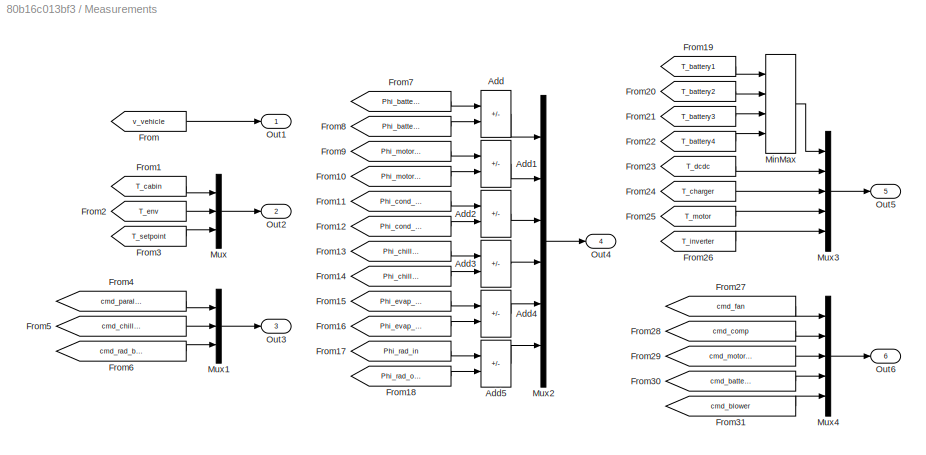
BLOCK [SubSystem] Measurements
  Ports = [0, 6]
  RequestExecContextInheritance = off
BLOCK [Sum] Measurements/Add
  IconShape = rectangular
  Inputs = -+
  Ports = [2, 1]
BLOCK [Sum] Measurements/Add1
  IconShape = rectangular
  Inputs = -+
  Ports = [2, 1]
BLOCK [Sum] Measurements/Add2
  IconShape = rectangular
  Inputs = +-
  Ports = [2, 1]
BLOCK [Sum] Measurements/Add3
  IconShape = rectangular
  Inputs = -+
  Ports = [2, 1]
BLOCK [Sum] Measurements/Add4
  IconShape = rectangular
  Inputs = -+
  Ports = [2, 1]
BLOCK [Sum] Measurements/Add5
  IconShape = rectangular
  Inputs = +-
  Ports = [2, 1]
BLOCK [From] Measurements/From
  GotoTag = v_vehicle
  TagVisibility = global
BLOCK [From] Measurements/From1
  GotoTag = T_cabin
  TagVisibility = global
BLOCK [From] Measurements/From10
  GotoTag = Phi_motor_out
  TagVisibility = global
BLOCK [From] Measurements/From11
  GotoTag = Phi_cond_in
  TagVisibility = global
BLOCK [From] Measurements/From12
  GotoTag = Phi_cond_out
  TagVisibility = global
BLOCK [From] Measurements/From13
  GotoTag = Phi_chiller_in
  TagVisibility = global
BLOCK [From] Measurements/From14
  GotoTag = Phi_chiller_out
  TagVisibility = global
BLOCK [From] Measurements/From15
  GotoTag = Phi_evap_in
  TagVisibility = global
BLOCK [From] Measurements/From16
  GotoTag = Phi_evap_out
  TagVisibility = global
BLOCK [From] Measurements/From17
  GotoTag = Phi_rad_in
  TagVisibility = global
BLOCK [From] Measurements/From18
  GotoTag = Phi_rad_out
  TagVisibility = global
BLOCK [From] Measurements/From19
  GotoTag = T_battery1
  TagVisibility = global
BLOCK [From] Measurements/From2
  GotoTag = T_env
  TagVisibility = global
BLOCK [From] Measurements/From20
  GotoTag = T_battery2
  TagVisibility = global
BLOCK [From] Measurements/From21
  GotoTag = T_battery3
  TagVisibility = global
BLOCK [From] Measurements/From22
  GotoTag = T_battery4
  TagVisibility = global
BLOCK [From] Measurements/From23
  GotoTag = T_dcdc
  TagVisibility = global
BLOCK [From] Measurements/From24
  GotoTag = T_charger
  TagVisibility = global
BLOCK [From] Measurements/From25
  GotoTag = T_motor
  TagVisibility = global
BLOCK [From] Measurements/From26
  GotoTag = T_inverter
  TagVisibility = global
BLOCK [From] Measurements/From27
  GotoTag = cmd_fan
  TagVisibility = global
BLOCK [From] Measurements/From28
  GotoTag = cmd_comp
  TagVisibility = global
BLOCK [From] Measurements/From29
  GotoTag = cmd_motor_pump
  TagVisibility = global
BLOCK [From] Measurements/From3
  GotoTag = T_setpoint
  TagVisibility = global
BLOCK [From] Measurements/From30
  GotoTag = cmd_battery_pump
  TagVisibility = global
BLOCK [From] Measurements/From31
  GotoTag = cmd_blower
  TagVisibility = global
BLOCK [From] Measurements/From4
  GotoTag = cmd_parallel_serial
  TagVisibility = global
BLOCK [From] Measurements/From5
  GotoTag = cmd_chiller_bypass
  TagVisibility = global
BLOCK [From] Measurements/From6
  GotoTag = cmd_rad_bypass
  TagVisibility = global
BLOCK [From] Measurements/From7
  GotoTag = Phi_battery_in
  TagVisibility = global
BLOCK [From] Measurements/From8
  GotoTag = Phi_battery_out
  TagVisibility = global
BLOCK [From] Measurements/From9
  GotoTag = Phi_motor_in
  TagVisibility = global
BLOCK [MinMax] Measurements/MinMax
  Function = max
  Inputs = 4
  Ports = [4, 1]
BLOCK [Mux] Measurements/Mux
  DisplayOption = bar
  Inputs = 3
  Ports = [3, 1]
BLOCK [Mux] Measurements/Mux1
  DisplayOption = bar
  Inputs = 3
  Ports = [3, 1]
BLOCK [Mux] Measurements/Mux2
  DisplayOption = bar
  Inputs = 6
  Ports = [6, 1]
BLOCK [Mux] Measurements/Mux3
  DisplayOption = bar
  Inputs = 5
  Ports = [5, 1]
BLOCK [Mux] Measurements/Mux4
  DisplayOption = bar
  Inputs = 5
  Ports = [5, 1]
BLOCK [Outport] Measurements/Out1
BLOCK [Outport] Measurements/Out2
  Port = 2
BLOCK [Outport] Measurements/Out3
  Port = 3
BLOCK [Outport] Measurements/Out4
  Port = 4
BLOCK [Outport] Measurements/Out5
  Port = 5
BLOCK [Outport] Measurements/Out6
  Port = 6
BLOCK [SubSystem] Motor
  Ports = [0, 0, 0, 0, 0, 1, 1]
  RequestExecContextInheritance = off
  Tag = PublishSubsystem
BLOCK [SubSystem] Motor Pump
  Ports = [0, 0, 0, 0, 0, 1, 1]
  RequestExecContextInheritance = off
  Tag = PublishSubsystem
BLOCK [PMIOPort] Motor Pump/A
  NameLocation = right
  Side = Left
BLOCK [PMIOPort] Motor Pump/B
  NameLocation = right
  Port = 2
  Side = Right
BLOCK [From] Motor Pump/From
  GotoTag = cmd_motor_pump
  TagVisibility = global
BLOCK [Reference] Motor Pump/Ideal Angular Velocity Source  REF=fl_lib/Mechanical/Mechanical Sources/Ideal Angular
Velocity Source
  Ports = [0, 0, 0, 0, 0, 1, 2]
  SourceBlock = fl_lib/Mechanical/Mechanical Sources/Ideal Angular\nVelocity Source
  SourceProductBaseCode = SS
  SourceType = Ideal Angular\nVelocity Source
BLOCK [Gain] Motor Pump/Max Speed [rpm]
  Gain = pump_speed_max
BLOCK [Reference] Motor Pump/Mechanical Rotational Reference  REF=fl_lib/Mechanical/Rotational Elements/Mechanical
Rotational Reference
  NameLocation = right
  Ports = [0, 0, 0, 0, 0, 1]
  SourceBlock = fl_lib/Mechanical/Rotational Elements/Mechanical\nRotational Reference
  SourceProductBaseCode = SS
  SourceType = Mechanical\nRotational Reference
BLOCK [Reference] Motor Pump/Motor Pump  REF=SimscapeFluids_lib/Thermal Liquid/Pumps & Motors/Fixed-Displacement
Pump (TL)
  Ports = [0, 0, 0, 0, 0, 2, 2]
  SourceBlock = SimscapeFluids_lib/Thermal Liquid/Pumps & Motors/Fixed-Displacement\nPump (TL)
  SourceProductBaseCode = SH
  SourceType = Fixed-Displacement\nPump (TL)
BLOCK [Reference] Motor Pump/Simulink-PS Converter  REF=nesl_utility/Simulink-PS
Converter
  Ports = [1, 0, 0, 0, 0, 0, 1]
  SourceBlock = nesl_utility/Simulink-PS\nConverter
  SourceProductBaseCode = PW,SS
  SourceType = Simulink-PS\nConverter
BLOCK [TransferFcn] Motor Pump/Transfer Fcn
  Denominator = [5 1]
BLOCK [PMIOPort] Motor/A
  Side = Left
BLOCK [PMIOPort] Motor/B
  Port = 2
  Side = Right
BLOCK [Reference] Motor/Controlled Heat Flow Rate Source  REF=fl_lib/Thermal/Thermal Sources/Controlled Heat Flow
Rate Source
  Ports = [0, 0, 0, 0, 0, 1, 2]
  SourceBlock = fl_lib/Thermal/Thermal Sources/Controlled Heat Flow\nRate Source
  SourceProductBaseCode = SS
  SourceType = Controlled Heat Flow\nRate Source
BLOCK [Reference] Motor/Coolant Jacket  REF=SimscapeFluids_lib/Thermal Liquid/Pipes & Fittings/Pipe (TL)
  Ports = [0, 0, 0, 0, 0, 2, 1]
  SourceBlock = SimscapeFluids_lib/Thermal Liquid/Pipes & Fittings/Pipe (TL)
  SourceProductBaseCode = SH
  SourceType = Pipe (TL)
BLOCK [From] Motor/From
  GotoTag = Q_motor
  TagVisibility = global
BLOCK [Goto] Motor/Goto
  GotoTag = T_motor
  TagVisibility = global
BLOCK [Reference] Motor/Motor  REF=fl_lib/Thermal/Thermal Elements/Thermal Mass
  Ports = [0, 0, 0, 0, 0, 1]
  SourceBlock = fl_lib/Thermal/Thermal Elements/Thermal Mass
  SourceProductBaseCode = SS
  SourceType = Thermal Mass
BLOCK [Reference] Motor/PS-Simulink Converter  REF=nesl_utility/PS-Simulink
Converter
  Ports = [0, 1, 0, 0, 0, 1]
  SourceBlock = nesl_utility/PS-Simulink\nConverter
  SourceProductBaseCode = PW,SS
  SourceType = PS-Simulink\nConverter
BLOCK [SubSystem] Motor/SC5
  Ports = [0, 0, 0, 0, 0, 1, 1]
  RequestExecContextInheritance = off
BLOCK [PMIOPort] Motor/SC5/A
  Side = Left
BLOCK [Reference] Motor/SC5/Absolute Reference (TL)  REF=fl_lib/Thermal Liquid/Elements/Absolute Reference
(TL)
  NameLocation = right
  Ports = [0, 0, 0, 0, 0, 1]
  SourceBlock = fl_lib/Thermal Liquid/Elements/Absolute Reference\n(TL)
  SourceProductBaseCode = SS
  SourceType = Absolute Reference\n(TL)
BLOCK [PMIOPort] Motor/SC5/B
  Port = 2
  Side = Right
BLOCK [Goto] Motor/SC5/Goto
  GotoTag = Phi_motor_in
  TagVisibility = global
BLOCK [Reference] Motor/SC5/Mass & Energy Flow Rate Sensor (TL)  REF=fl_lib/Thermal Liquid/Sensors/Mass & Energy Flow
Rate Sensor (TL)
  Ports = [0, 0, 0, 0, 0, 1, 3]
  SourceBlock = fl_lib/Thermal Liquid/Sensors/Mass & Energy Flow\nRate Sensor (TL)
  SourceProductBaseCode = SS
  SourceType = Mass & Energy Flow\nRate Sensor (TL)
BLOCK [Reference] Motor/SC5/PS-Simulink Converter  REF=nesl_utility/PS-Simulink
Converter
  Ports = [0, 1, 0, 0, 0, 1]
  SourceBlock = nesl_utility/PS-Simulink\nConverter
  SourceProductBaseCode = PW,SS
  SourceType = PS-Simulink\nConverter
BLOCK [Reference] Motor/SC5/Pressure & Temperature Sensor (TL)  REF=fl_lib/Thermal Liquid/Sensors/Pressure &
Temperature Sensor
(TL)
  NameLocation = right
  Ports = [0, 0, 0, 0, 0, 1, 3]
  SourceBlock = fl_lib/Thermal Liquid/Sensors/Pressure &\nTemperature Sensor\n(TL)
  SourceProductBaseCode = SS
  SourceType = Pressure &\nTemperature Sensor\n(TL)
BLOCK [SubSystem] Motor/SC6
  Ports = [0, 0, 0, 0, 0, 1, 1]
  RequestExecContextInheritance = off
BLOCK [PMIOPort] Motor/SC6/A
  Side = Left
BLOCK [Reference] Motor/SC6/Absolute Reference (TL)  REF=fl_lib/Thermal Liquid/Elements/Absolute Reference
(TL)
  NameLocation = right
  Ports = [0, 0, 0, 0, 0, 1]
  SourceBlock = fl_lib/Thermal Liquid/Elements/Absolute Reference\n(TL)
  SourceProductBaseCode = SS
  SourceType = Absolute Reference\n(TL)
BLOCK [PMIOPort] Motor/SC6/B
  Port = 2
  Side = Right
BLOCK [Goto] Motor/SC6/Goto
  GotoTag = Phi_motor_out
  TagVisibility = global
BLOCK [Reference] Motor/SC6/Mass & Energy Flow Rate Sensor (TL)  REF=fl_lib/Thermal Liquid/Sensors/Mass & Energy Flow
Rate Sensor (TL)
  Ports = [0, 0, 0, 0, 0, 1, 3]
  SourceBlock = fl_lib/Thermal Liquid/Sensors/Mass & Energy Flow\nRate Sensor (TL)
  SourceProductBaseCode = SS
  SourceType = Mass & Energy Flow\nRate Sensor (TL)
BLOCK [Reference] Motor/SC6/PS-Simulink Converter  REF=nesl_utility/PS-Simulink
Converter
  Ports = [0, 1, 0, 0, 0, 1]
  SourceBlock = nesl_utility/PS-Simulink\nConverter
  SourceProductBaseCode = PW,SS
  SourceType = PS-Simulink\nConverter
BLOCK [Reference] Motor/SC6/Pressure & Temperature Sensor (TL)  REF=fl_lib/Thermal Liquid/Sensors/Pressure &
Temperature Sensor
(TL)
  NameLocation = right
  Ports = [0, 0, 0, 0, 0, 1, 3]
  SourceBlock = fl_lib/Thermal Liquid/Sensors/Pressure &\nTemperature Sensor\n(TL)
  SourceProductBaseCode = SS
  SourceType = Pressure &\nTemperature Sensor\n(TL)
BLOCK [Reference] Motor/Simulink-PS Converter  REF=nesl_utility/Simulink-PS
Converter
  Ports = [1, 0, 0, 0, 0, 0, 1]
  SourceBlock = nesl_utility/Simulink-PS\nConverter
  SourceProductBaseCode = PW,SS
  SourceType = Simulink-PS\nConverter
BLOCK [Reference] Motor/Temperature Sensor  REF=fl_lib/Thermal/Thermal Sensors/Temperature Sensor
  Ports = [0, 0, 0, 0, 0, 1, 2]
  SourceBlock = fl_lib/Thermal/Thermal Sensors/Temperature Sensor
  SourceProductBaseCode = SS
  SourceType = Temperature Sensor
BLOCK [Reference] Motor/Thermal Reference  REF=fl_lib/Thermal/Thermal Elements/Thermal Reference
  NameLocation = right
  Ports = [0, 0, 0, 0, 0, 1]
  SourceBlock = fl_lib/Thermal/Thermal Elements/Thermal Reference
  SourceProductBaseCode = SS
  SourceType = Thermal Reference
BLOCK [Reference] Motor/Thermal Reference1  REF=fl_lib/Thermal/Thermal Elements/Thermal Reference
  Ports = [0, 0, 0, 0, 0, 1]
  SourceBlock = fl_lib/Thermal/Thermal Elements/Thermal Reference
  SourceProductBaseCode = SS
  SourceType = Thermal Reference
BLOCK [SubSystem] PTC
  Ports = [0, 0, 0, 0, 0, 1, 1]
  RequestExecContextInheritance = off
  Tag = PublishSubsystem
BLOCK [PMIOPort] PTC/A
  NameLocation = right
  Side = Left
BLOCK [Reference] PTC/Absolute Reference (MA)  REF=fl_lib/Moist Air/Elements/Absolute Reference
(MA)
  NameLocation = right
  Ports = [0, 0, 0, 0, 0, 1]
  SourceBlock = fl_lib/Moist Air/Elements/Absolute Reference\n(MA)
  SourceProductBaseCode = SS
  SourceType = Absolute Reference\n(MA)
BLOCK [PMIOPort] PTC/B
  NameLocation = right
  Port = 2
  Side = Right
BLOCK [Reference] PTC/Controlled Heat Flow Rate Source  REF=fl_lib/Thermal/Thermal Sources/Controlled Heat Flow
Rate Source
  NameLocation = right
  Ports = [0, 0, 0, 0, 0, 1, 2]
  SourceBlock = fl_lib/Thermal/Thermal Sources/Controlled Heat Flow\nRate Source
  SourceProductBaseCode = SS
  SourceType = Controlled Heat Flow\nRate Source
BLOCK [Reference] PTC/Convective Heat Transfer  REF=fl_lib/Thermal/Thermal Elements/Convective Heat
Transfer
  Ports = [0, 0, 0, 0, 0, 1, 1]
  SourceBlock = fl_lib/Thermal/Thermal Elements/Convective Heat\nTransfer
  SourceProductBaseCode = SS
  SourceType = Convective Heat\nTransfer
BLOCK [Reference] PTC/Flow Resistance (MA)  REF=fl_lib/Moist Air/Elements/Flow Resistance (MA)
  NameLocation = right
  Ports = [0, 0, 0, 0, 0, 1, 1]
  SourceBlock = fl_lib/Moist Air/Elements/Flow Resistance (MA)
  SourceProductBaseCode = SS
  SourceType = Flow Resistance (MA)
BLOCK [Reference] PTC/Flow Resistance (MA)1  REF=fl_lib/Moist Air/Elements/Flow Resistance (MA)
  NameLocation = right
  Ports = [0, 0, 0, 0, 0, 1, 1]
  SourceBlock = fl_lib/Moist Air/Elements/Flow Resistance (MA)
  SourceProductBaseCode = SS
  SourceType = Flow Resistance (MA)
BLOCK [From] PTC/From
  GotoTag = cmd_ptc
  TagVisibility = global
BLOCK [Goto] PTC/Goto
  GotoTag = T_ptc
  TagVisibility = global
BLOCK [Gain] PTC/Max Power [W]
  Gain = 2500
BLOCK [Reference] PTC/PS-Simulink Converter  REF=nesl_utility/PS-Simulink
Converter
  Ports = [0, 1, 0, 0, 0, 1]
  SourceBlock = nesl_utility/PS-Simulink\nConverter
  SourceProductBaseCode = PW,SS
  SourceType = PS-Simulink\nConverter
BLOCK [Reference] PTC/PTC Air Volume  REF=fl_lib/Moist Air/Elements/Constant Volume
Chamber (MA)
  Ports = [0, 0, 0, 0, 0, 2, 3]
  SourceBlock = fl_lib/Moist Air/Elements/Constant Volume\nChamber (MA)
  SourceProductBaseCode = SS
  SourceType = Constant Volume\nChamber (MA)
BLOCK [Reference] PTC/PTC Heater  REF=fl_lib/Thermal/Thermal Elements/Thermal Mass
  NameLocation = right
  Ports = [0, 0, 0, 0, 0, 1]
  SourceBlock = fl_lib/Thermal/Thermal Elements/Thermal Mass
  SourceProductBaseCode = SS
  SourceType = Thermal Mass
BLOCK [Reference] PTC/Pressure & Temperature Sensor (MA)  REF=fl_lib/Moist Air/Sensors/Pressure &
Temperature Sensor
(MA)
  NameLocation = right
  Ports = [0, 0, 0, 0, 0, 1, 3]
  SourceBlock = fl_lib/Moist Air/Sensors/Pressure &\nTemperature Sensor\n(MA)
  SourceProductBaseCode = SS
  SourceType = Pressure &\nTemperature Sensor\n(MA)
BLOCK [Reference] PTC/Simulink-PS Converter  REF=nesl_utility/Simulink-PS
Converter
  Ports = [1, 0, 0, 0, 0, 0, 1]
  SourceBlock = nesl_utility/Simulink-PS\nConverter
  SourceProductBaseCode = PW,SS
  SourceType = Simulink-PS\nConverter
BLOCK [Reference] PTC/Thermal Reference  REF=fl_lib/Thermal/Thermal Elements/Thermal Reference
  NameLocation = right
  Ports = [0, 0, 0, 0, 0, 1]
  SourceBlock = fl_lib/Thermal/Thermal Elements/Thermal Reference
  SourceProductBaseCode = SS
  SourceType = Thermal Reference
BLOCK [TransferFcn] PTC/Transfer Fcn
  Denominator = [1 1]
BLOCK [SubSystem] Parallel-Serial Mode Valve
  PortSchema = {"entries":[{"content":{"sides":[{"content":{"connectorIds":["LConn1"]},"type":"ConnectorPlacement.EquallySpacedRectSide","uuid":"769cdae0-dc58-4cfd-92d9-ac32508c6b10"},{"content":{"connectorIds":["RConn1"],"side":"RIGHT"},"type":"ConnectorPlacement.EquallySpacedRectSide","uuid":"df63fb06-baf4-4717-a479-9d23ab47f4aa"},{"content":{"connectorIds":["LConn2"],"side":"TOP"},"type":"ConnectorPlacement.E...<+549ch>
  Ports = [0, 0, 0, 0, 0, 2, 2]
  RequestExecContextInheritance = off
  Tag = PublishSubsystem
BLOCK [Reference] Parallel-Serial Mode Valve/4-Way Valve  REF=SimscapeFluids_lib/Thermal Liquid/Valves & Orifices/Directional Control
Valves/4-Way Directional
Valve (TL)
  NameLocation = right
  Ports = [0, 0, 0, 0, 0, 2, 3]
  SourceBlock = SimscapeFluids_lib/Thermal Liquid/Valves & Orifices/Directional Control\nValves/4-Way Directional\nValve (TL)
  SourceProductBaseCode = SH
  SourceType = 4-Way Directional\nValve (TL)
BLOCK [PMIOPort] Parallel-Serial Mode Valve/A
  NameLocation = right
  Port = 2
  Side = Left
BLOCK [PMIOPort] Parallel-Serial Mode Valve/B
  Port = 3
  Side = Right
BLOCK [Reference] Parallel-Serial Mode Valve/Battery Coolant Tank  REF=SimscapeFluids_lib/Fluid Network
Interfaces/Tanks & Accumulators/Tank (G-TL)
  Ports = [0, 0, 0, 0, 0, 4, 4]
  SourceBlock = SimscapeFluids_lib/Fluid Network\nInterfaces/Tanks & Accumulators/Tank (G-TL)
  SourceProductBaseCode = SH
  SourceType = Tank (G-TL)
BLOCK [SubSystem] Parallel-Serial Mode Valve/Battery Coolant Tank Heat Transfer
  Ports = [0, 0, 0, 0, 0, 2]
  RequestExecContextInheritance = off
BLOCK [PMIOPort] Parallel-Serial Mode Valve/Battery Coolant Tank Heat Transfer/A
  Side = Left
BLOCK [PMIOPort] Parallel-Serial Mode Valve/Battery Coolant Tank Heat Transfer/B
  Port = 2
  Side = Left
BLOCK [Reference] Parallel-Serial Mode Valve/Battery Coolant Tank Heat Transfer/Convective Heat Transfer  REF=fl_lib/Thermal/Thermal Elements/Convective Heat
Transfer
  Ports = [0, 0, 0, 0, 0, 1, 1]
  SourceBlock = fl_lib/Thermal/Thermal Elements/Convective Heat\nTransfer
  SourceProductBaseCode = SS
  SourceType = Convective Heat\nTransfer
BLOCK [Reference] Parallel-Serial Mode Valve/Battery Coolant Tank Heat Transfer/Convective Heat Transfer1  REF=fl_lib/Thermal/Thermal Elements/Convective Heat
Transfer
  Ports = [0, 0, 0, 0, 0, 1, 1]
  SourceBlock = fl_lib/Thermal/Thermal Elements/Convective Heat\nTransfer
  SourceProductBaseCode = SS
  SourceType = Convective Heat\nTransfer
BLOCK [Reference] Parallel-Serial Mode Valve/Battery Coolant Tank Heat Transfer/Environment Temperature  REF=fl_lib/Thermal/Thermal Sources/Controlled
Temperature Source
  Ports = [0, 0, 0, 0, 0, 1, 2]
  SourceBlock = fl_lib/Thermal/Thermal Sources/Controlled\nTemperature Source
  SourceProductBaseCode = SS
  SourceType = Controlled\nTemperature Source
BLOCK [From] Parallel-Serial Mode Valve/Battery Coolant Tank Heat Transfer/From
  GotoTag = T_env
  TagVisibility = global
BLOCK [Reference] Parallel-Serial Mode Valve/Battery Coolant Tank Heat Transfer/Simulink-PS Converter  REF=nesl_utility/Simulink-PS
Converter
  Ports = [1, 0, 0, 0, 0, 0, 1]
  SourceBlock = nesl_utility/Simulink-PS\nConverter
  SourceProductBaseCode = PW,SS
  SourceType = Simulink-PS\nConverter
BLOCK [Reference] Parallel-Serial Mode Valve/Battery Coolant Tank Heat Transfer/Thermal Reference  REF=fl_lib/Thermal/Thermal Elements/Thermal Reference
  NameLocation = right
  Ports = [0, 0, 0, 0, 0, 1]
  SourceBlock = fl_lib/Thermal/Thermal Elements/Thermal Reference
  SourceProductBaseCode = SS
  SourceType = Thermal Reference
BLOCK [Bias] Parallel-Serial Mode Valve/Bias
  Bias = -1
  SaturateOnIntegerOverflow = off
BLOCK [PMIOPort] Parallel-Serial Mode Valve/C
  NameLocation = right
  Port = 4
  Side = Right
BLOCK [Reference] Parallel-Serial Mode Valve/Cap (G)  REF=fl_lib/Gas/Elements/Cap (G)
  Ports = [0, 0, 0, 0, 0, 1]
  SourceBlock = fl_lib/Gas/Elements/Cap (G)
  SourceProductBaseCode = SS
  SourceType = Cap (G)
BLOCK [Reference] Parallel-Serial Mode Valve/Cap (G)1  REF=fl_lib/Gas/Elements/Cap (G)
  Ports = [0, 0, 0, 0, 0, 1]
  SourceBlock = fl_lib/Gas/Elements/Cap (G)
  SourceProductBaseCode = SS
  SourceType = Cap (G)
BLOCK [Reference] Parallel-Serial Mode Valve/Cap (G)2  REF=fl_lib/Gas/Elements/Cap (G)
  Ports = [0, 0, 0, 0, 0, 1]
  SourceBlock = fl_lib/Gas/Elements/Cap (G)
  SourceProductBaseCode = SS
  SourceType = Cap (G)
BLOCK [Reference] Parallel-Serial Mode Valve/Cap (G)3  REF=fl_lib/Gas/Elements/Cap (G)
  Ports = [0, 0, 0, 0, 0, 1]
  SourceBlock = fl_lib/Gas/Elements/Cap (G)
  SourceProductBaseCode = SS
  SourceType = Cap (G)
BLOCK [Reference] Parallel-Serial Mode Valve/Coolant Properties  REF=SimscapeFluids_lib/Thermal Liquid/Utilities/Thermal Liquid
Properties (TL)
  Ports = [0, 0, 0, 0, 0, 0, 1]
  SourceBlock = SimscapeFluids_lib/Thermal Liquid/Utilities/Thermal Liquid\nProperties (TL)
  SourceProductBaseCode = SH
  SourceType = Thermal Liquid\nProperties (TL)
BLOCK [PMIOPort] Parallel-Serial Mode Valve/D
  Side = Left
BLOCK [From] Parallel-Serial Mode Valve/From
  GotoTag = cmd_parallel_serial
  TagVisibility = global
BLOCK [Gain] Parallel-Serial Mode Valve/Gain
  Gain = 2
BLOCK [Gain] Parallel-Serial Mode Valve/Max Valve Displacement [m]
  Gain = coolant_valve_displacement
BLOCK [Reference] Parallel-Serial Mode Valve/Motor Coolant Tank  REF=SimscapeFluids_lib/Fluid Network
Interfaces/Tanks & Accumulators/Tank (G-TL)
  Ports = [0, 0, 0, 0, 0, 4, 4]
  SourceBlock = SimscapeFluids_lib/Fluid Network\nInterfaces/Tanks & Accumulators/Tank (G-TL)
  SourceProductBaseCode = SH
  SourceType = Tank (G-TL)
BLOCK [SubSystem] Parallel-Serial Mode Valve/Motor Coolant Tank Heat Transfer
  Ports = [0, 0, 0, 0, 0, 0, 2]
  RequestExecContextInheritance = off
BLOCK [PMIOPort] Parallel-Serial Mode Valve/Motor Coolant Tank Heat Transfer/A
  Side = Right
BLOCK [PMIOPort] Parallel-Serial Mode Valve/Motor Coolant Tank Heat Transfer/B
  Port = 2
  Side = Right
BLOCK [Reference] Parallel-Serial Mode Valve/Motor Coolant Tank Heat Transfer/Convective Heat Transfer  REF=fl_lib/Thermal/Thermal Elements/Convective Heat
Transfer
  Ports = [0, 0, 0, 0, 0, 1, 1]
  SourceBlock = fl_lib/Thermal/Thermal Elements/Convective Heat\nTransfer
  SourceProductBaseCode = SS
  SourceType = Convective Heat\nTransfer
BLOCK [Reference] Parallel-Serial Mode Valve/Motor Coolant Tank Heat Transfer/Convective Heat Transfer1  REF=fl_lib/Thermal/Thermal Elements/Convective Heat
Transfer
  Ports = [0, 0, 0, 0, 0, 1, 1]
  SourceBlock = fl_lib/Thermal/Thermal Elements/Convective Heat\nTransfer
  SourceProductBaseCode = SS
  SourceType = Convective Heat\nTransfer
BLOCK [Reference] Parallel-Serial Mode Valve/Motor Coolant Tank Heat Transfer/Environment Temperature  REF=fl_lib/Thermal/Thermal Sources/Controlled
Temperature Source
  Ports = [0, 0, 0, 0, 0, 1, 2]
  SourceBlock = fl_lib/Thermal/Thermal Sources/Controlled\nTemperature Source
  SourceProductBaseCode = SS
  SourceType = Controlled\nTemperature Source
BLOCK [From] Parallel-Serial Mode Valve/Motor Coolant Tank Heat Transfer/From
  GotoTag = T_env
  TagVisibility = global
BLOCK [Reference] Parallel-Serial Mode Valve/Motor Coolant Tank Heat Transfer/Simulink-PS Converter  REF=nesl_utility/Simulink-PS
Converter
  Ports = [1, 0, 0, 0, 0, 0, 1]
  SourceBlock = nesl_utility/Simulink-PS\nConverter
  SourceProductBaseCode = PW,SS
  SourceType = Simulink-PS\nConverter
BLOCK [Reference] Parallel-Serial Mode Valve/Motor Coolant Tank Heat Transfer/Thermal Reference  REF=fl_lib/Thermal/Thermal Elements/Thermal Reference
  NameLocation = right
  Ports = [0, 0, 0, 0, 0, 1]
  SourceBlock = fl_lib/Thermal/Thermal Elements/Thermal Reference
  SourceProductBaseCode = SS
  SourceType = Thermal Reference
BLOCK [Reference] Parallel-Serial Mode Valve/Simulink-PS Converter  REF=nesl_utility/Simulink-PS
Converter
  NameLocation = right
  Ports = [1, 0, 0, 0, 0, 0, 1]
  SourceBlock = nesl_utility/Simulink-PS\nConverter
  SourceProductBaseCode = PW,SS
  SourceType = Simulink-PS\nConverter
BLOCK [TransferFcn] Parallel-Serial Mode Valve/Transfer Fcn
  Denominator = [1 1]
BLOCK [SubSystem] Radiator
  PortSchema = {"entries":[{"content":{"sides":[{"content":{"connectorIds":["LConn1"]},"type":"ConnectorPlacement.EquallySpacedRectSide","uuid":"c41edd26-4d41-4ef4-bf36-0d7d2de0fe84"},{"content":{"connectorIds":["RConn1"],"side":"RIGHT"},"type":"ConnectorPlacement.EquallySpacedRectSide","uuid":"d74127b5-b0c6-43ff-8d29-bbb0795bdd4e"},{"content":{"connectorIds":[],"side":"TOP"},"type":"ConnectorPlacement.EquallySp...<+541ch>
  Ports = [0, 0, 0, 0, 0, 1, 2]
  RequestExecContextInheritance = off
  Tag = PublishSubsystem
BLOCK [SubSystem] Radiator Bypass Valve
  PortSchema = {"entries":[{"content":{"sides":[{"content":{"connectorIds":["LConn1"]},"type":"ConnectorPlacement.EquallySpacedRectSide","uuid":"1991dfbd-c304-4807-b100-246bfad34882"},{"content":{"connectorIds":[],"side":"RIGHT"},"type":"ConnectorPlacement.EquallySpacedRectSide","uuid":"8dd83d3e-3811-40e7-af6b-04929d024ef5"},{"content":{"connectorIds":["LConn2"],"side":"TOP"},"type":"ConnectorPlacement.EquallySp...<+541ch>
  Ports = [0, 0, 0, 0, 0, 2, 1]
  RequestExecContextInheritance = off
  Tag = PublishSubsystem
BLOCK [Reference] Radiator Bypass Valve/3-Way Directional Valve (TL)  REF=SimscapeFluids_lib/Thermal Liquid/Valves & Orifices/Directional Control
Valves/3-Way Directional
Valve (TL)
  NameLocation = right
  Ports = [0, 0, 0, 0, 0, 1, 3]
  SourceBlock = SimscapeFluids_lib/Thermal Liquid/Valves & Orifices/Directional Control\nValves/3-Way Directional\nValve (TL)
  SourceProductBaseCode = SH
  SourceType = 3-Way Directional\nValve (TL)
BLOCK [PMIOPort] Radiator Bypass Valve/A
  NameLocation = right
  Port = 3
  Side = Right
BLOCK [PMIOPort] Radiator Bypass Valve/B
  Side = Left
BLOCK [Bias] Radiator Bypass Valve/Bias
  Bias = -1
  SaturateOnIntegerOverflow = off
BLOCK [PMIOPort] Radiator Bypass Valve/C
  NameLocation = right
  Port = 2
  Side = Left
BLOCK [Reference] Radiator Bypass Valve/Flow Resistance (TL)  REF=fl_lib/Thermal Liquid/Elements/Flow Resistance (TL)
  Ports = [0, 0, 0, 0, 0, 1, 1]
  SourceBlock = fl_lib/Thermal Liquid/Elements/Flow Resistance (TL)
  SourceProductBaseCode = SS
  SourceType = Flow Resistance (TL)
BLOCK [From] Radiator Bypass Valve/From
  GotoTag = cmd_rad_bypass
  TagVisibility = global
BLOCK [Gain] Radiator Bypass Valve/Gain
  Gain = 2
BLOCK [Gain] Radiator Bypass Valve/Max Valve Displacement [m]
  Gain = coolant_valve_displacement
BLOCK [Reference] Radiator Bypass Valve/Simulink-PS Converter  REF=nesl_utility/Simulink-PS
Converter
  Ports = [1, 0, 0, 0, 0, 0, 1]
  SourceBlock = nesl_utility/Simulink-PS\nConverter
  SourceProductBaseCode = PW,SS
  SourceType = Simulink-PS\nConverter
BLOCK [TransferFcn] Radiator Bypass Valve/Transfer Fcn
  Denominator = [1 1]
BLOCK [PMIOPort] Radiator/A
  Port = 2
  Side = Right
BLOCK [Reference] Radiator/Air Intake  REF=fl_lib/Moist Air/Elements/Controlled Reservoir
(MA)
  Ports = [0, 0, 0, 0, 0, 1, 4]
  SourceBlock = fl_lib/Moist Air/Elements/Controlled Reservoir\n(MA)
  SourceProductBaseCode = SS
  SourceType = Controlled Reservoir\n(MA)
BLOCK [PMIOPort] Radiator/B
  Side = Left
BLOCK [From] Radiator/From
  GotoTag = T_env
  TagVisibility = global
BLOCK [From] Radiator/From1
  GotoTag = p_env
  TagVisibility = global
BLOCK [From] Radiator/From2
  GotoTag = RH_env
  TagVisibility = global
BLOCK [From] Radiator/From3
  GotoTag = CO2_env
  TagVisibility = global
BLOCK [Reference] Radiator/Moist Air Properties  REF=fl_lib/Moist Air/Utilities/Moist Air Properties
(MA)
  Ports = [0, 0, 0, 0, 0, 0, 1]
  SourceBlock = fl_lib/Moist Air/Utilities/Moist Air Properties\n(MA)
  SourceProductBaseCode = SS
  SourceType = Moist Air Properties\n(MA)
BLOCK [Reference] Radiator/Radiator  REF=SimscapeFluids_lib/Fluid Network
Interfaces/Heat Exchangers/Heat Exchanger
(TL-MA)
  NameLocation = right
  Ports = [0, 0, 0, 0, 0, 3, 2]
  SourceBlock = SimscapeFluids_lib/Fluid Network\nInterfaces/Heat Exchangers/Heat Exchanger\n(TL-MA)
  SourceProductBaseCode = SH
  SourceType = Heat Exchanger\n(TL-MA)
BLOCK [SubSystem] Radiator/SC1
  Ports = [0, 0, 0, 0, 0, 1, 1]
  RequestExecContextInheritance = off
BLOCK [PMIOPort] Radiator/SC1/A
  Port = 2
  Side = Right
BLOCK [Reference] Radiator/SC1/Absolute Reference (TL)  REF=fl_lib/Thermal Liquid/Elements/Absolute Reference
(TL)
  NameLocation = right
  Ports = [0, 0, 0, 0, 0, 1]
  SourceBlock = fl_lib/Thermal Liquid/Elements/Absolute Reference\n(TL)
  SourceProductBaseCode = SS
  SourceType = Absolute Reference\n(TL)
BLOCK [PMIOPort] Radiator/SC1/B
  Side = Left
BLOCK [Goto] Radiator/SC1/Goto
  GotoTag = Phi_rad_in
  TagVisibility = global
BLOCK [Reference] Radiator/SC1/Mass & Energy Flow Rate Sensor (TL)  REF=fl_lib/Thermal Liquid/Sensors/Mass & Energy Flow
Rate Sensor (TL)
  Ports = [0, 0, 0, 0, 0, 1, 3]
  SourceBlock = fl_lib/Thermal Liquid/Sensors/Mass & Energy Flow\nRate Sensor (TL)
  SourceProductBaseCode = SS
  SourceType = Mass & Energy Flow\nRate Sensor (TL)
BLOCK [Reference] Radiator/SC1/PS-Simulink Converter  REF=nesl_utility/PS-Simulink
Converter
  Ports = [0, 1, 0, 0, 0, 1]
  SourceBlock = nesl_utility/PS-Simulink\nConverter
  SourceProductBaseCode = PW,SS
  SourceType = PS-Simulink\nConverter
BLOCK [Reference] Radiator/SC1/Pressure & Temperature Sensor (TL)  REF=fl_lib/Thermal Liquid/Sensors/Pressure &
Temperature Sensor
(TL)
  NameLocation = right
  Ports = [0, 0, 0, 0, 0, 1, 3]
  SourceBlock = fl_lib/Thermal Liquid/Sensors/Pressure &\nTemperature Sensor\n(TL)
  SourceProductBaseCode = SS
  SourceType = Pressure &\nTemperature Sensor\n(TL)
BLOCK [SubSystem] Radiator/SC2
  Ports = [0, 0, 0, 0, 0, 1, 1]
  RequestExecContextInheritance = off
BLOCK [PMIOPort] Radiator/SC2/A
  Port = 2
  Side = Right
BLOCK [Reference] Radiator/SC2/Absolute Reference (TL)  REF=fl_lib/Thermal Liquid/Elements/Absolute Reference
(TL)
  NameLocation = right
  Ports = [0, 0, 0, 0, 0, 1]
  SourceBlock = fl_lib/Thermal Liquid/Elements/Absolute Reference\n(TL)
  SourceProductBaseCode = SS
  SourceType = Absolute Reference\n(TL)
BLOCK [PMIOPort] Radiator/SC2/B
  Side = Left
BLOCK [Goto] Radiator/SC2/Goto
  GotoTag = Phi_rad_out
  TagVisibility = global
BLOCK [Reference] Radiator/SC2/Mass & Energy Flow Rate Sensor (TL)  REF=fl_lib/Thermal Liquid/Sensors/Mass & Energy Flow
Rate Sensor (TL)
  Ports = [0, 0, 0, 0, 0, 1, 3]
  SourceBlock = fl_lib/Thermal Liquid/Sensors/Mass & Energy Flow\nRate Sensor (TL)
  SourceProductBaseCode = SS
  SourceType = Mass & Energy Flow\nRate Sensor (TL)
BLOCK [Reference] Radiator/SC2/PS-Simulink Converter  REF=nesl_utility/PS-Simulink
Converter
  Ports = [0, 1, 0, 0, 0, 1]
  SourceBlock = nesl_utility/PS-Simulink\nConverter
  SourceProductBaseCode = PW,SS
  SourceType = PS-Simulink\nConverter
BLOCK [Reference] Radiator/SC2/Pressure & Temperature Sensor (TL)  REF=fl_lib/Thermal Liquid/Sensors/Pressure &
Temperature Sensor
(TL)
  NameLocation = right
  Ports = [0, 0, 0, 0, 0, 1, 3]
  SourceBlock = fl_lib/Thermal Liquid/Sensors/Pressure &\nTemperature Sensor\n(TL)
  SourceProductBaseCode = SS
  SourceType = Pressure &\nTemperature Sensor\n(TL)
BLOCK [Reference] Radiator/Simulink-PS Converter  REF=nesl_utility/Simulink-PS
Converter
  Ports = [1, 0, 0, 0, 0, 0, 1]
  SourceBlock = nesl_utility/Simulink-PS\nConverter
  SourceProductBaseCode = PW,SS
  SourceType = Simulink-PS\nConverter
BLOCK [Reference] Radiator/Simulink-PS Converter1  REF=nesl_utility/Simulink-PS
Converter
  Ports = [1, 0, 0, 0, 0, 0, 1]
  SourceBlock = nesl_utility/Simulink-PS\nConverter
  SourceProductBaseCode = PW,SS
  SourceType = Simulink-PS\nConverter
BLOCK [Reference] Radiator/Simulink-PS Converter2  REF=nesl_utility/Simulink-PS
Converter
  Ports = [1, 0, 0, 0, 0, 0, 1]
  SourceBlock = nesl_utility/Simulink-PS\nConverter
  SourceProductBaseCode = PW,SS
  SourceType = Simulink-PS\nConverter
BLOCK [Reference] Radiator/Simulink-PS Converter3  REF=nesl_utility/Simulink-PS
Converter
  Ports = [1, 0, 0, 0, 0, 0, 1]
  SourceBlock = nesl_utility/Simulink-PS\nConverter
  SourceProductBaseCode = PW,SS
  SourceType = Simulink-PS\nConverter
BLOCK [PMIOPort] Radiator/T
  NameLocation = right
  Port = 3
  Side = Right
BLOCK [SubSystem] Scenario
  AttributesFormatString = %<Tag>
  Ports = []
  RequestExecContextInheritance = off
  Tag = drive cycle
BLOCK [Constant] Scenario/AC On//Off
BLOCK [Constant] Scenario/CO2 Fraction
  Value = 4e-4
BLOCK [Goto] Scenario/Goto
  GotoTag = I_battery
  TagVisibility = global
BLOCK [Goto] Scenario/Goto1
  GotoTag = Q_inverter
  TagVisibility = global
BLOCK [Goto] Scenario/Goto10
  GotoTag = ac_onoff
  TagVisibility = global
BLOCK [Goto] Scenario/Goto11
  GotoTag = recirc_onoff
  TagVisibility = global
BLOCK [Goto] Scenario/Goto12
  GotoTag = v_vehicle
  TagVisibility = global
BLOCK [Goto] Scenario/Goto13
  GotoTag = N_occupant
  TagVisibility = global
BLOCK [Goto] Scenario/Goto2
  GotoTag = Q_motor
  TagVisibility = global
BLOCK [Goto] Scenario/Goto3
  GotoTag = Q_charger
  TagVisibility = global
BLOCK [Goto] Scenario/Goto4
  GotoTag = Q_dcdc
  TagVisibility = global
BLOCK [Goto] Scenario/Goto5
  GotoTag = p_env
  TagVisibility = global
BLOCK [Goto] Scenario/Goto6
  GotoTag = T_env
  TagVisibility = global
BLOCK [Goto] Scenario/Goto7
  GotoTag = RH_env
  TagVisibility = global
BLOCK [Goto] Scenario/Goto8
  GotoTag = CO2_env
  TagVisibility = global
BLOCK [Goto] Scenario/Goto9
  GotoTag = T_setpoint
  TagVisibility = global
BLOCK [Constant] Scenario/Number of Occupants
BLOCK [SubSystem] Scenario/Power Demand
  Ports = [1, 5]
  RequestExecContextInheritance = off
BLOCK [Lookup_n-D] Scenario/Power Demand/Charger Heat vs Current
  BeginIndexSearchUsingPreviousIndexResult = on
  BreakpointsForDimension1 = [-100 0 25 50 300]
  IndexSearchMethod = Linear search
  InputPortMap = u0
  InternalRulePriority = Speed
  NumberOfTableDimensions = 1
  Ports = [1, 1]
  RndMeth = Simplest
  Table = [250 0 40 70 400]
BLOCK [Lookup_n-D] Scenario/Power Demand/DCDC Heat vs Current
  BeginIndexSearchUsingPreviousIndexResult = on
  BreakpointsForDimension1 = [-100 0 25 50 300]
  IndexSearchMethod = Linear search
  InputPortMap = u0
  InternalRulePriority = Speed
  NumberOfTableDimensions = 1
  Ports = [1, 1]
  RndMeth = Simplest
  Table = [250 0 40 70 400]
BLOCK [SubSystem] Scenario/Power Demand/Derivative
  Ports = [1, 1]
  RequestExecContextInheritance = off
BLOCK [Outport] Scenario/Power Demand/Derivative/A
BLOCK [Gain] Scenario/Power Demand/Derivative/Gain
  Gain = tau
BLOCK [Integrator] Scenario/Power Demand/Derivative/Integrator
  Ports = [1, 1]
BLOCK [Sum] Scenario/Power Demand/Derivative/Sum
  Inputs = |+-
  Ports = [2, 1]
BLOCK [Inport] Scenario/Power Demand/Derivative/V
BLOCK [Outport] Scenario/Power Demand/I_battery
BLOCK [Lookup_n-D] Scenario/Power Demand/Inverter Current vs Acceleration
  BeginIndexSearchUsingPreviousIndexResult = on
  BreakpointsForDimension1 = [-10 -8 -5 0 5 8 10]
  IndexSearchMethod = Linear search
  InputPortMap = u0
  InternalRulePriority = Speed
  NumberOfTableDimensions = 1
  Ports = [1, 1]
  RndMeth = Simplest
  Table = [200 150 100 0 100 150 200]*0.6
BLOCK [Lookup_n-D] Scenario/Power Demand/Inverter Current vs Speed
  BeginIndexSearchUsingPreviousIndexResult = on
  BreakpointsForDimension1 = [0 60 80 100 120 140 160 180 200]
  IndexSearchMethod = Linear search
  InputPortMap = u0
  InternalRulePriority = Speed
  NumberOfTableDimensions = 1
  Ports = [1, 1]
  RndMeth = Simplest
  Table = [0 10 18 27 45 65 100 120 160]
BLOCK [Lookup_n-D] Scenario/Power Demand/Inverter Heat vs Current
  BeginIndexSearchUsingPreviousIndexResult = on
  BreakpointsForDimension1 = [-100 0 25 50 300]
  IndexSearchMethod = Linear search
  InputPortMap = u0
  InternalRulePriority = Speed
  NumberOfTableDimensions = 1
  Ports = [1, 1]
  RndMeth = Simplest
  Table = [250 0 40 70 400]
BLOCK [Lookup_n-D] Scenario/Power Demand/Motor Heat vs Current
  BeginIndexSearchUsingPreviousIndexResult = on
  BreakpointsForDimension1 = [-150 -70 -26 0 25 50 100 300 600]
  IndexSearchMethod = Linear search
  InputPortMap = u0
  InternalRulePriority = Speed
  NumberOfTableDimensions = 1
  Ports = [1, 1]
  RndMeth = Simplest
  Table = [3500 2650 2100 0 400 550 4800 4800 4800]
BLOCK [Outport] Scenario/Power Demand/Q_charger
  Port = 4
BLOCK [Outport] Scenario/Power Demand/Q_dcdc
  Port = 5
BLOCK [Outport] Scenario/Power Demand/Q_inverter
  Port = 2
BLOCK [Outport] Scenario/Power Demand/Q_motor
  Port = 3
BLOCK [Saturate] Scenario/Power Demand/Saturation
  LowerLimit = -inf
  UpperLimit = 200
BLOCK [Sum] Scenario/Power Demand/Sum
  Inputs = |++
  Ports = [2, 1]
BLOCK [TransferFcn] Scenario/Power Demand/Transfer Fcn
  Denominator = [1 1]
BLOCK [TransferFcn] Scenario/Power Demand/Transfer Fcn1
  Denominator = [1 1]
BLOCK [TransferFcn] Scenario/Power Demand/Transfer Fcn2
  Denominator = [1 1]
BLOCK [TransferFcn] Scenario/Power Demand/Transfer Fcn3
  Denominator = [1 1]
BLOCK [TransferFcn] Scenario/Power Demand/Transfer Fcn4
  Denominator = [1 1]
BLOCK [Inport] Scenario/Power Demand/speed
BLOCK [Constant] Scenario/Pressure [MPa]
  Value = 0.101325
BLOCK [Constant] Scenario/Recirculation On//Off
  Value = 0
BLOCK [Constant] Scenario/Relative Humidity
  Value = 0.4
BLOCK [Constant] Scenario/Temperature Setpoint [degC]
  Value = 21
BLOCK [Constant] Scenario/Temperature [degC]
  Value = 30
BLOCK [SubSystem] Scenario/Vehicle Speed [km//hr]
  ClipboardFcn = sigbuilder_block('clipboard');
  CloseFcn = sigbuilder_block('close');
  ContinueFcn = sigbuilder_block('continue');
  CopyFcn = sigbuilder_block('copy');
  DeleteFcn = sigbuilder_block('delete');
  LoadFcn = sigbuilder_block('load');
  MaskHideContents = on
  ModelCloseFcn = sigbuilder_block('modelClose');
  NameChangeFcn = sigbuilder_block('namechange');
  OpenFcn = sigbuilder_block('open',[153.5 430 550.5 400 ]);
  PauseFcn = sigbuilder_block('pause');
  Ports = [0, 1]
  PreSaveFcn = sigbuilder_block('preSave');
  RequestExecContextInheritance = off
  StartFcn = sigbuilder_block('start');
  StopFcn = sigbuilder_block('stop');
  Tag = STV Subsys
BLOCK [Demux] Scenario/Vehicle Speed [km//hr]/Demux
  DisplayOption = none
  Outputs = 1
  Ports = [1, 1]
  Tag = STV Demux
BLOCK [FromWorkspace] Scenario/Vehicle Speed [km//hr]/FromWs
  Tag = STV FromWs
  VariableName = tuvar
  ZeroCross = off
BLOCK [Outport] Scenario/Vehicle Speed [km//hr]/speed
  Tag = STV Outport
BLOCK [Scope] Scope
  Floating = off
  NumInputPorts = 6
  Ports = [6]
  ScopeSpecificationString = Simulink.scopes.TimeScopeBlockCfg('CurrentConfiguration', extmgr.ConfigurationSet(extmgr.Configuration('Core','General UI',true),extmgr.Configuration('Core','Source UI',true),extmgr.Configuration('Sources','WiredSimulink',true),extmgr.Configuration('Visuals','Time Domain',true,'SerializedDisplays',{struct('MinYLimReal','-16.25','MaxYLimReal','146.25','YLabelReal','','MinYLimMag','0.00000','MaxYLim...<+5549ch>
  Tag = PublishScope
BLOCK [Reference] Solver Configuration  REF=nesl_utility/Solver
Configuration
  Ports = [0, 0, 0, 0, 0, 0, 1]
  SourceBlock = nesl_utility/Solver\nConfiguration
  SourceProductBaseCode = PW,SS
  SourceType = Solver\nConfiguration
ANNOTATION (root): 1. Configure scenario ( see code ): (i) drive cycle , (ii) cool down , (iii) cold weather 2. Open model workspace to explore parameters ( see definition script ) 3. Explore simulation results using sscexplore 4. Learn more about this example
ANNOTATION (root): Electric Vehicle Thermal Management
ANNOTATION Battery/Pack 1: Scale up voltage drop to total of N cells
ANNOTATION Battery/Pack 1/Lithium Cell 1RC: Power Losses
ANNOTATION Battery/Pack 2: Scale up voltage drop to total of N cells
ANNOTATION Battery/Pack 2/Lithium Cell 1RC: Power Losses
ANNOTATION Battery/Pack 3: Scale up voltage drop to total of N cells
ANNOTATION Battery/Pack 3/Lithium Cell 1RC: Power Losses
ANNOTATION Battery/Pack 4: Scale up voltage drop to total of N cells
ANNOTATION Battery/Pack 4/Lithium Cell 1RC: Power Losses
ANNOTATION Controls/Coolant Loop Control/Parallel-Serial Mode: 0 = Parallel mode 1 = Serial mode
ANNOTATION Parallel-Serial Mode Valve: Parallel mode flow path: A-D and C-B Serial mode flow path: A-B and C-D
ANNOTATION Scenario: Cabin HVAC
ANNOTATION Scenario: Environment
LINE Battery Pump/From:1 -> Battery Pump/Transfer Fcn:1
LINE Battery Pump/Max Speed [rpm]:1 -> Battery Pump/Simulink-PS Converter:1
LINE Battery Pump/Transfer Fcn:1 -> Battery Pump/Max Speed [rpm]:1
LINE Battery/From:1 -> Battery/Simulink-PS Converter:1
LINE Battery/S1/PS-Simulink Converter:1 -> Battery/S1/Goto:1
LINE Battery/S2/PS-Simulink Converter:1 -> Battery/S2/Goto:1
LINE Battery/S3/PS-Simulink Converter:1 -> Battery/S3/Goto:1
LINE Battery/S4/PS-Simulink Converter:1 -> Battery/S4/Goto:1
LINE Battery/SC3/PS-Simulink Converter1:1 -> Battery/SC3/Goto1:1
LINE Battery/SC3/PS-Simulink Converter:1 -> Battery/SC3/Goto:1
LINE Battery/SC4/PS-Simulink Converter:1 -> Battery/SC4/Goto:1
LINE Blower/From1:1 -> Blower/Simulink-PS Converter2:1
LINE Blower/From2:1 -> Blower/Simulink-PS Converter3:1
LINE Blower/From3:1 -> Blower/Simulink-PS Converter4:1
LINE Blower/From4:1 -> Blower/Transfer Fcn:1
LINE Blower/From:1 -> Blower/Simulink-PS Converter1:1
LINE Blower/Max Flow [m^3//s]:1 -> Blower/Simulink-PS Converter:1
LINE Blower/Recirculation Flap/From:1 -> Blower/Recirculation Flap/Transfer Fcn:1
NET Blower/Recirculation Flap/Max Area [m^2]:1 -> Blower/Recirculation Flap/Sum1:1, Blower/Recirculation Flap/Sum:1
NET Blower/Recirculation Flap/Min Area [m^2]:1 -> Blower/Recirculation Flap/Sum2:2, Blower/Recirculation Flap/Sum:2
NET Blower/Recirculation Flap/Product:1 -> Blower/Recirculation Flap/Sum1:2, Blower/Recirculation Flap/Sum2:1
LINE Blower/Recirculation Flap/Sum1:1 -> Blower/Recirculation Flap/Simulink-PS Converter:1
LINE Blower/Recirculation Flap/Sum2:1 -> Blower/Recirculation Flap/Simulink-PS Converter1:1
LINE Blower/Recirculation Flap/Sum:1 -> Blower/Recirculation Flap/Product:2
LINE Blower/Recirculation Flap/Transfer Fcn:1 -> Blower/Recirculation Flap/Product:1
LINE Blower/Transfer Fcn:1 -> Blower/Max Flow [m^3//s]:1
LINE Cabin/CO2 [g//s]:1 -> Cabin/Simulink-PS Converter7:1
LINE Cabin/From1:1 -> Cabin/Simulink-PS Converter2:1
LINE Cabin/From2:1 -> Cabin/Simulink-PS Converter3:1
LINE Cabin/From3:1 -> Cabin/Simulink-PS Converter4:1
LINE Cabin/From4:1 -> Cabin/Simulink-PS Converter:1
NET Cabin/From5:1 -> Cabin/CO2 [g//s]:1, Cabin/Heat [W]:1, Cabin/Moisture [g//s]:1
LINE Cabin/From:1 -> Cabin/Simulink-PS Converter1:1
LINE Cabin/Heat [W]:1 -> Cabin/Simulink-PS Converter8:1
LINE Cabin/Moisture [g//s]:1 -> Cabin/Simulink-PS Converter6:1
LINE Cabin/PS-Simulink Converter:1 -> Cabin/Goto:1
LINE Cabin/Temperature [degC]:1 -> Cabin/Simulink-PS Converter5:1
LINE Charger/From:1 -> Charger/Simulink-PS Converter:1
LINE Charger/PS-Simulink Converter:1 -> Charger/Goto:1
LINE Chiller Bypass Valve/Bias:1 -> Chiller Bypass Valve/Max Valve Displacement [m]:1
LINE Chiller Bypass Valve/From:1 -> Chiller Bypass Valve/Transfer Fcn:1
LINE Chiller Bypass Valve/Gain:1 -> Chiller Bypass Valve/Bias:1
LINE Chiller Bypass Valve/Max Valve Displacement [m]:1 -> Chiller Bypass Valve/Simulink-PS Converter:1
LINE Chiller Bypass Valve/Transfer Fcn:1 -> Chiller Bypass Valve/Gain:1
LINE Chiller/SR3/PS-Simulink Converter:1 -> Chiller/SR3/Goto:1
LINE Chiller/SR4/PS-Simulink Converter1:1 -> Chiller/SR4/Goto1:1
LINE Chiller/SR4/PS-Simulink Converter:1 -> Chiller/SR4/Goto:1
LINE Compressor/From:1 -> Compressor/Transfer Fcn:1
LINE Compressor/Max Speed [rpm]:1 -> Compressor/Simulink-PS Converter:1
LINE Compressor/Transfer Fcn:1 -> Compressor/Max Speed [rpm]:1
LINE Condenser/Air Speed Table [m//s]:1 -> Condenser/Transfer Fcn:1
LINE Condenser/Fan Area [m^2]:1 -> Condenser/Simulink-PS Converter:1
LINE Condenser/From3:1 -> Condenser/Simulink-PS Converter1:1
LINE Condenser/From4:1 -> Condenser/Simulink-PS Converter5:1
LINE Condenser/From5:1 -> Condenser/Simulink-PS Converter6:1
LINE Condenser/From6:1 -> Condenser/Simulink-PS Converter7:1
LINE Condenser/From7:1 -> Condenser/Max Fan:1
LINE Condenser/From8:1 -> Condenser/Air Speed Table [m//s]:1
LINE Condenser/Max Fan:1 -> Condenser/Air Speed Table [m//s]:2
LINE Condenser/SR1/PS-Simulink Converter:1 -> Condenser/SR1/Goto:1
LINE Condenser/SR2/PS-Simulink Converter1:1 -> Condenser/SR2/Goto1:1
LINE Condenser/SR2/PS-Simulink Converter:1 -> Condenser/SR2/Goto:1
LINE Condenser/Transfer Fcn:1 -> Condenser/Fan Area [m^2]:1
LINE Controls/Cabin Air Control/Constant:1 -> Controls/Cabin Air Control/Switch:1
LINE Controls/Cabin Air Control/PID Controller:1 -> Controls/Cabin Air Control/cmd_blower:1
LINE Controls/Cabin Air Control/Product:1 -> Controls/Cabin Air Control/PID Controller:1
LINE Controls/Cabin Air Control/Relay:1 -> Controls/Cabin Air Control/Switch:3
LINE Controls/Cabin Air Control/Sign:1 -> Controls/Cabin Air Control/Product:2
NET Controls/Cabin Air Control/Sum1:1 -> Controls/Cabin Air Control/Sign:1, Controls/Cabin Air Control/Switch:2
LINE Controls/Cabin Air Control/Sum:1 -> Controls/Cabin Air Control/Product:1
LINE Controls/Cabin Air Control/Switch:1 -> Controls/Cabin Air Control/cmd_ptc:1
LINE Controls/Cabin Air Control/T_cabin:1 -> Controls/Cabin Air Control/Sum:2
LINE Controls/Cabin Air Control/T_env:1 -> Controls/Cabin Air Control/Sum1:2
LINE Controls/Cabin Air Control/T_ptc:1 -> Controls/Cabin Air Control/Relay:1
NET Controls/Cabin Air Control/T_setpoint:1 -> Controls/Cabin Air Control/Sum1:1, Controls/Cabin Air Control/Sum:1
LINE Controls/Cabin Air Control:1 -> Controls/Goto1:1
LINE Controls/Cabin Air Control:2 -> Controls/Goto2:1
LINE Controls/Compressor Control/Constant1:1 -> Controls/Compressor Control/Switch:3
LINE Controls/Compressor Control/Constant:1 -> Controls/Compressor Control/Sum:1
LINE Controls/Compressor Control/Freezing Cutoff:1 -> Controls/Compressor Control/Product:2
LINE Controls/Compressor Control/MinMax1:1 -> Controls/Compressor Control/Freezing Cutoff:1
LINE Controls/Compressor Control/MinMax2:1 -> Controls/Compressor Control/Switch:2
LINE Controls/Compressor Control/MinMax:1 -> Controls/Compressor Control/Sum1:2
LINE Controls/Compressor Control/PID Controller:1 -> Controls/Compressor Control/Product:1
LINE Controls/Compressor Control/Pressure Target [MPa]:1 -> Controls/Compressor Control/Sum1:1
LINE Controls/Compressor Control/Product:1 -> Controls/Compressor Control/Switch:1
LINE Controls/Compressor Control/Sum1:1 -> Controls/Compressor Control/PID Controller:1
LINE Controls/Compressor Control/Sum:1 -> Controls/Compressor Control/MinMax2:1
LINE Controls/Compressor Control/Switch:1 -> Controls/Compressor Control/cmd_comp:1
LINE Controls/Compressor Control/ac_onoff:1 -> Controls/Compressor Control/MinMax2:2
LINE Controls/Compressor Control/cmd_chiller_bypass:1 -> Controls/Compressor Control/Sum:2
NET Controls/Compressor Control/p_chiller:1 -> Controls/Compressor Control/MinMax1:2, Controls/Compressor Control/MinMax:2
NET Controls/Compressor Control/p_evap:1 -> Controls/Compressor Control/MinMax1:1, Controls/Compressor Control/MinMax:1
LINE Controls/Compressor Control:1 -> Controls/Goto9:1
LINE Controls/Coolant Loop Control/Battery Heater/Constant:1 -> Controls/Coolant Loop Control/Battery Heater/Switch:1
LINE Controls/Coolant Loop Control/Battery Heater/Relay:1 -> Controls/Coolant Loop Control/Battery Heater/Switch:3
LINE Controls/Coolant Loop Control/Battery Heater/Switch:1 -> Controls/Coolant Loop Control/Battery Heater/cmd_heater:1
LINE Controls/Coolant Loop Control/Battery Heater/T_coolant_battery_in:1 -> Controls/Coolant Loop Control/Battery Heater/Relay:1
LINE Controls/Coolant Loop Control/Battery Heater/T_env:1 -> Controls/Coolant Loop Control/Battery Heater/Switch:2
LINE Controls/Coolant Loop Control/Battery Heater:1 -> Controls/Coolant Loop Control/cmd_heater:1
LINE Controls/Coolant Loop Control/Battery Pump/Constant1:1 -> Controls/Coolant Loop Control/Battery Pump/Switch1:3
LINE Controls/Coolant Loop Control/Battery Pump/Constant:1 -> Controls/Coolant Loop Control/Battery Pump/Switch1:1
LINE Controls/Coolant Loop Control/Battery Pump/MinMax:1 -> Controls/Coolant Loop Control/Battery Pump/Switch:3
LINE Controls/Coolant Loop Control/Battery Pump/Relay:1 -> Controls/Coolant Loop Control/Battery Pump/MinMax:1
LINE Controls/Coolant Loop Control/Battery Pump/Switch1:1 -> Controls/Coolant Loop Control/Battery Pump/MinMax:2
LINE Controls/Coolant Loop Control/Battery Pump/Switch:1 -> Controls/Coolant Loop Control/Battery Pump/cmd_battery_pump:1
LINE Controls/Coolant Loop Control/Battery Pump/T_battery:1 -> Controls/Coolant Loop Control/Battery Pump/Relay:1
LINE Controls/Coolant Loop Control/Battery Pump/cmd_chiller_bypass:1 -> Controls/Coolant Loop Control/Battery Pump/Switch1:2
LINE Controls/Coolant Loop Control/Battery Pump/cmd_motor_pump:1 -> Controls/Coolant Loop Control/Battery Pump/Switch:1
LINE Controls/Coolant Loop Control/Battery Pump/parallel_serial:1 -> Controls/Coolant Loop Control/Battery Pump/Switch:2
LINE Controls/Coolant Loop Control/Battery Pump:1 -> Controls/Coolant Loop Control/cmd_battery_pump:1
LINE Controls/Coolant Loop Control/Chiller Bypass/Relay:1 -> Controls/Coolant Loop Control/Chiller Bypass/cmd_chiller_bypass:1
LINE Controls/Coolant Loop Control/Chiller Bypass/T_battery:1 -> Controls/Coolant Loop Control/Chiller Bypass/Relay:1
NET Controls/Coolant Loop Control/Chiller Bypass:1 -> Controls/Coolant Loop Control/Battery Pump:3, Controls/Coolant Loop Control/Parallel-Serial Mode:1, Controls/Coolant Loop Control/cmd_chiller_bypass:1
LINE Controls/Coolant Loop Control/Motor Pump/1-D Lookup Table:1 -> Controls/Coolant Loop Control/Motor Pump/Saturation:1
LINE Controls/Coolant Loop Control/Motor Pump/Saturation:1 -> Controls/Coolant Loop Control/Motor Pump/cmd_motor_pump:1
LINE Controls/Coolant Loop Control/Motor Pump/T_motor:1 -> Controls/Coolant Loop Control/Motor Pump/1-D Lookup Table:1
NET Controls/Coolant Loop Control/Motor Pump:1 -> Controls/Coolant Loop Control/Battery Pump:1, Controls/Coolant Loop Control/cmd_motor_pump:1
LINE Controls/Coolant Loop Control/Parallel-Serial Mode/Constant:1 -> Controls/Coolant Loop Control/Parallel-Serial Mode/Switch:3
LINE Controls/Coolant Loop Control/Parallel-Serial Mode/MinMax:1 -> Controls/Coolant Loop Control/Parallel-Serial Mode/Relay:1
LINE Controls/Coolant Loop Control/Parallel-Serial Mode/Relay:1 -> Controls/Coolant Loop Control/Parallel-Serial Mode/Switch:1
LINE Controls/Coolant Loop Control/Parallel-Serial Mode/Switch:1 -> Controls/Coolant Loop Control/Parallel-Serial Mode/cmd_parallel_serial:1
LINE Controls/Coolant Loop Control/Parallel-Serial Mode/T_coolant_inverter_out:1 -> Controls/Coolant Loop Control/Parallel-Serial Mode/MinMax:2
LINE Controls/Coolant Loop Control/Parallel-Serial Mode/T_env:1 -> Controls/Coolant Loop Control/Parallel-Serial Mode/MinMax:1
LINE Controls/Coolant Loop Control/Parallel-Serial Mode/cmd_chiller_bypass:1 -> Controls/Coolant Loop Control/Parallel-Serial Mode/Switch:2
NET Controls/Coolant Loop Control/Parallel-Serial Mode:1 -> Controls/Coolant Loop Control/Battery Pump:4, Controls/Coolant Loop Control/cmd_parallel_serial:1
LINE Controls/Coolant Loop Control/Radiator Bypass/Relay:1 -> Controls/Coolant Loop Control/Radiator Bypass/cmd_rad_bypass:1
LINE Controls/Coolant Loop Control/Radiator Bypass/T_coolant_inverter_out:1 -> Controls/Coolant Loop Control/Radiator Bypass/Relay:1
LINE Controls/Coolant Loop Control/Radiator Bypass:1 -> Controls/Coolant Loop Control/cmd_rad_bypass:1
NET Controls/Coolant Loop Control/T_battery:1 -> Controls/Coolant Loop Control/Battery Pump:2, Controls/Coolant Loop Control/Chiller Bypass:1
LINE Controls/Coolant Loop Control/T_coolant_battery_in:1 -> Controls/Coolant Loop Control/Battery Heater:2
NET Controls/Coolant Loop Control/T_coolant_inverter_out:1 -> Controls/Coolant Loop Control/Parallel-Serial Mode:3, Controls/Coolant Loop Control/Radiator Bypass:1
NET Controls/Coolant Loop Control/T_env:1 -> Controls/Coolant Loop Control/Battery Heater:1, Controls/Coolant Loop Control/Parallel-Serial Mode:2
LINE Controls/Coolant Loop Control/T_motor:1 -> Controls/Coolant Loop Control/Motor Pump:1
LINE Controls/Coolant Loop Control:1 -> Controls/Goto3:1
LINE Controls/Coolant Loop Control:2 -> Controls/Goto4:1
LINE Controls/Coolant Loop Control:3 -> Controls/Goto5:1
LINE Controls/Coolant Loop Control:4 -> Controls/Goto6:1
LINE Controls/Coolant Loop Control:5 -> Controls/Goto7:1
LINE Controls/Coolant Loop Control:6 -> Controls/Goto8:1
NET Controls/Fan Control/Condenser Requirement/1-D Lookup Table1:1 -> Controls/Fan Control/Condenser Requirement/Bias1:1, Controls/Fan Control/Condenser Requirement/Relay Level 2:3
NET Controls/Fan Control/Condenser Requirement/1-D Lookup Table2:1 -> Controls/Fan Control/Condenser Requirement/Bias2:1, Controls/Fan Control/Condenser Requirement/Relay Level 1:3
NET Controls/Fan Control/Condenser Requirement/1-D Lookup Table:1 -> Controls/Fan Control/Condenser Requirement/Bias:1, Controls/Fan Control/Condenser Requirement/Relay Level 3:3
LINE Controls/Fan Control/Condenser Requirement/Bias1:1 -> Controls/Fan Control/Condenser Requirement/Relay Level 2:2
LINE Controls/Fan Control/Condenser Requirement/Bias2:1 -> Controls/Fan Control/Condenser Requirement/Relay Level 1:2
LINE Controls/Fan Control/Condenser Requirement/Bias:1 -> Controls/Fan Control/Condenser Requirement/Relay Level 3:2
LINE Controls/Fan Control/Condenser Requirement/Gain:1 -> Controls/Fan Control/Condenser Requirement/cmd_fan:1
LINE Controls/Fan Control/Condenser Requirement/Relay Level 1/Data Type Conversion:1 -> Controls/Fan Control/Condenser Requirement/Relay Level 1/Relay:1
LINE Controls/Fan Control/Condenser Requirement/Relay Level 1/Relational Operator1:1 -> Controls/Fan Control/Condenser Requirement/Relay Level 1/Sum:2
LINE Controls/Fan Control/Condenser Requirement/Relay Level 1/Relational Operator:1 -> Controls/Fan Control/Condenser Requirement/Relay Level 1/Sum:1
LINE Controls/Fan Control/Condenser Requirement/Relay Level 1/Relay:1 -> Controls/Fan Control/Condenser Requirement/Relay Level 1/out:1
LINE Controls/Fan Control/Condenser Requirement/Relay Level 1/Sum:1 -> Controls/Fan Control/Condenser Requirement/Relay Level 1/Data Type Conversion:1
LINE Controls/Fan Control/Condenser Requirement/Relay Level 1/high:1 -> Controls/Fan Control/Condenser Requirement/Relay Level 1/Relational Operator:2
NET Controls/Fan Control/Condenser Requirement/Relay Level 1/in:1 -> Controls/Fan Control/Condenser Requirement/Relay Level 1/Relational Operator1:1, Controls/Fan Control/Condenser Requirement/Relay Level 1/Relational Operator:1
LINE Controls/Fan Control/Condenser Requirement/Relay Level 1/low:1 -> Controls/Fan Control/Condenser Requirement/Relay Level 1/Relational Operator1:2
LINE Controls/Fan Control/Condenser Requirement/Relay Level 1:1 -> Controls/Fan Control/Condenser Requirement/Sum:3
LINE Controls/Fan Control/Condenser Requirement/Relay Level 2/Data Type Conversion:1 -> Controls/Fan Control/Condenser Requirement/Relay Level 2/Relay:1
LINE Controls/Fan Control/Condenser Requirement/Relay Level 2/Relational Operator1:1 -> Controls/Fan Control/Condenser Requirement/Relay Level 2/Sum:2
LINE Controls/Fan Control/Condenser Requirement/Relay Level 2/Relational Operator:1 -> Controls/Fan Control/Condenser Requirement/Relay Level 2/Sum:1
LINE Controls/Fan Control/Condenser Requirement/Relay Level 2/Relay:1 -> Controls/Fan Control/Condenser Requirement/Relay Level 2/out:1
LINE Controls/Fan Control/Condenser Requirement/Relay Level 2/Sum:1 -> Controls/Fan Control/Condenser Requirement/Relay Level 2/Data Type Conversion:1
LINE Controls/Fan Control/Condenser Requirement/Relay Level 2/high:1 -> Controls/Fan Control/Condenser Requirement/Relay Level 2/Relational Operator:2
NET Controls/Fan Control/Condenser Requirement/Relay Level 2/in:1 -> Controls/Fan Control/Condenser Requirement/Relay Level 2/Relational Operator1:1, Controls/Fan Control/Condenser Requirement/Relay Level 2/Relational Operator:1
LINE Controls/Fan Control/Condenser Requirement/Relay Level 2/low:1 -> Controls/Fan Control/Condenser Requirement/Relay Level 2/Relational Operator1:2
LINE Controls/Fan Control/Condenser Requirement/Relay Level 2:1 -> Controls/Fan Control/Condenser Requirement/Sum:2
LINE Controls/Fan Control/Condenser Requirement/Relay Level 3/Data Type Conversion:1 -> Controls/Fan Control/Condenser Requirement/Relay Level 3/Relay:1
LINE Controls/Fan Control/Condenser Requirement/Relay Level 3/Relational Operator1:1 -> Controls/Fan Control/Condenser Requirement/Relay Level 3/Sum:2
LINE Controls/Fan Control/Condenser Requirement/Relay Level 3/Relational Operator:1 -> Controls/Fan Control/Condenser Requirement/Relay Level 3/Sum:1
LINE Controls/Fan Control/Condenser Requirement/Relay Level 3/Relay:1 -> Controls/Fan Control/Condenser Requirement/Relay Level 3/out:1
LINE Controls/Fan Control/Condenser Requirement/Relay Level 3/Sum:1 -> Controls/Fan Control/Condenser Requirement/Relay Level 3/Data Type Conversion:1
LINE Controls/Fan Control/Condenser Requirement/Relay Level 3/high:1 -> Controls/Fan Control/Condenser Requirement/Relay Level 3/Relational Operator:2
NET Controls/Fan Control/Condenser Requirement/Relay Level 3/in:1 -> Controls/Fan Control/Condenser Requirement/Relay Level 3/Relational Operator1:1, Controls/Fan Control/Condenser Requirement/Relay Level 3/Relational Operator:1
LINE Controls/Fan Control/Condenser Requirement/Relay Level 3/low:1 -> Controls/Fan Control/Condenser Requirement/Relay Level 3/Relational Operator1:2
LINE Controls/Fan Control/Condenser Requirement/Relay Level 3:1 -> Controls/Fan Control/Condenser Requirement/Sum:1
LINE Controls/Fan Control/Condenser Requirement/Sum:1 -> Controls/Fan Control/Condenser Requirement/Gain:1
NET Controls/Fan Control/Condenser Requirement/T_env:1 -> Controls/Fan Control/Condenser Requirement/1-D Lookup Table1:1, Controls/Fan Control/Condenser Requirement/1-D Lookup Table2:1, Controls/Fan Control/Condenser Requirement/1-D Lookup Table:1
NET Controls/Fan Control/Condenser Requirement/p_cond:1 -> Controls/Fan Control/Condenser Requirement/Relay Level 1:1, Controls/Fan Control/Condenser Requirement/Relay Level 2:1, Controls/Fan Control/Condenser Requirement/Relay Level 3:1
LINE Controls/Fan Control/Condenser Requirement:1 -> Controls/Fan Control/Switch:1
LINE Controls/Fan Control/Constant:1 -> Controls/Fan Control/Switch:3
LINE Controls/Fan Control/Inverter Requirement/Gain:1 -> Controls/Fan Control/Inverter Requirement/cmd_fan:1
LINE Controls/Fan Control/Inverter Requirement/Relay Level 1:1 -> Controls/Fan Control/Inverter Requirement/Sum:3
LINE Controls/Fan Control/Inverter Requirement/Relay Level 2:1 -> Controls/Fan Control/Inverter Requirement/Sum:2
LINE Controls/Fan Control/Inverter Requirement/Relay Level 3:1 -> Controls/Fan Control/Inverter Requirement/Sum:1
LINE Controls/Fan Control/Inverter Requirement/Sum:1 -> Controls/Fan Control/Inverter Requirement/Gain:1
NET Controls/Fan Control/Inverter Requirement/T_inverter:1 -> Controls/Fan Control/Inverter Requirement/Relay Level 1:1, Controls/Fan Control/Inverter Requirement/Relay Level 2:1, Controls/Fan Control/Inverter Requirement/Relay Level 3:1
LINE Controls/Fan Control/Inverter Requirement:1 -> Controls/Fan Control/MinMax:2
LINE Controls/Fan Control/MinMax:1 -> Controls/Fan Control/cmd_fan:1
LINE Controls/Fan Control/Motor Requirement/1-D Lookup Table:1 -> Controls/Fan Control/Motor Requirement/cmd_fan:1
LINE Controls/Fan Control/Motor Requirement/T_motor:1 -> Controls/Fan Control/Motor Requirement/1-D Lookup Table:1
LINE Controls/Fan Control/Motor Requirement:1 -> Controls/Fan Control/MinMax:3
LINE Controls/Fan Control/Switch:1 -> Controls/Fan Control/MinMax:1
LINE Controls/Fan Control/T_env:1 -> Controls/Fan Control/Condenser Requirement:2
LINE Controls/Fan Control/T_inverter:1 -> Controls/Fan Control/Inverter Requirement:1
LINE Controls/Fan Control/T_motor:1 -> Controls/Fan Control/Motor Requirement:1
LINE Controls/Fan Control/cmd_comp:1 -> Controls/Fan Control/Switch:2
LINE Controls/Fan Control/p_cond:1 -> Controls/Fan Control/Condenser Requirement:1
LINE Controls/Fan Control:1 -> Controls/Goto:1
LINE Controls/From10:1 -> Controls/Coolant Loop Control:2
LINE Controls/From11:1 -> Controls/Coolant Loop Control:3
LINE Controls/From12:1 -> Controls/MinMax:1
LINE Controls/From13:1 -> Controls/MinMax:2
LINE Controls/From14:1 -> Controls/MinMax:3
LINE Controls/From15:1 -> Controls/MinMax:4
LINE Controls/From16:1 -> Controls/Coolant Loop Control:5
LINE Controls/From17:1 -> Controls/Compressor Control:1
LINE Controls/From18:1 -> Controls/Compressor Control:2
LINE Controls/From19:1 -> Controls/Compressor Control:3
LINE Controls/From1:1 -> Controls/Fan Control:2
LINE Controls/From20:1 -> Controls/Compressor Control:4
LINE Controls/From2:1 -> Controls/Fan Control:3
LINE Controls/From3:1 -> Controls/Fan Control:4
LINE Controls/From4:1 -> Controls/Fan Control:5
LINE Controls/From5:1 -> Controls/Cabin Air Control:1
LINE Controls/From6:1 -> Controls/Cabin Air Control:2
LINE Controls/From7:1 -> Controls/Cabin Air Control:3
LINE Controls/From8:1 -> Controls/Cabin Air Control:4
LINE Controls/From9:1 -> Controls/Coolant Loop Control:1
LINE Controls/From:1 -> Controls/Fan Control:1
LINE Controls/MinMax:1 -> Controls/Coolant Loop Control:4
LINE DCDC/From:1 -> DCDC/Simulink-PS Converter:1
LINE DCDC/PS-Simulink Converter:1 -> DCDC/Goto:1
LINE Evaporator/SR5/PS-Simulink Converter:1 -> Evaporator/SR5/Goto:1
LINE Evaporator/SR6/PS-Simulink Converter1:1 -> Evaporator/SR6/Goto1:1
LINE Evaporator/SR6/PS-Simulink Converter:1 -> Evaporator/SR6/Goto:1
LINE Heater/From:1 -> Heater/Transfer Fcn:1
LINE Heater/Max Power [W]:1 -> Heater/Simulink-PS Converter:1
LINE Heater/Transfer Fcn:1 -> Heater/Max Power [W]:1
LINE Inverter/From:1 -> Inverter/Simulink-PS Converter:1
LINE Inverter/PS-Simulink Converter:1 -> Inverter/Goto:1
LINE Inverter/SC7/PS-Simulink Converter1:1 -> Inverter/SC7/Goto1:1
LINE Measurements/Add1:1 -> Measurements/Mux2:2
LINE Measurements/Add2:1 -> Measurements/Mux2:3
LINE Measurements/Add3:1 -> Measurements/Mux2:4
LINE Measurements/Add4:1 -> Measurements/Mux2:5
LINE Measurements/Add5:1 -> Measurements/Mux2:6
LINE Measurements/Add:1 -> Measurements/Mux2:1
LINE Measurements/From10:1 -> Measurements/Add1:2
LINE Measurements/From11:1 -> Measurements/Add2:1
LINE Measurements/From12:1 -> Measurements/Add2:2
LINE Measurements/From13:1 -> Measurements/Add3:1
LINE Measurements/From14:1 -> Measurements/Add3:2
LINE Measurements/From15:1 -> Measurements/Add4:1
LINE Measurements/From16:1 -> Measurements/Add4:2
LINE Measurements/From17:1 -> Measurements/Add5:1
LINE Measurements/From18:1 -> Measurements/Add5:2
LINE Measurements/From19:1 -> Measurements/MinMax:1
LINE Measurements/From1:1 -> Measurements/Mux:1
LINE Measurements/From20:1 -> Measurements/MinMax:2
LINE Measurements/From21:1 -> Measurements/MinMax:3
LINE Measurements/From22:1 -> Measurements/MinMax:4
LINE Measurements/From23:1 -> Measurements/Mux3:2
LINE Measurements/From24:1 -> Measurements/Mux3:3
LINE Measurements/From25:1 -> Measurements/Mux3:4
LINE Measurements/From26:1 -> Measurements/Mux3:5
LINE Measurements/From27:1 -> Measurements/Mux4:1
LINE Measurements/From28:1 -> Measurements/Mux4:2
LINE Measurements/From29:1 -> Measurements/Mux4:3
LINE Measurements/From2:1 -> Measurements/Mux:2
LINE Measurements/From30:1 -> Measurements/Mux4:4
LINE Measurements/From31:1 -> Measurements/Mux4:5
LINE Measurements/From3:1 -> Measurements/Mux:3
LINE Measurements/From4:1 -> Measurements/Mux1:1
LINE Measurements/From5:1 -> Measurements/Mux1:2
LINE Measurements/From6:1 -> Measurements/Mux1:3
LINE Measurements/From7:1 -> Measurements/Add:1
LINE Measurements/From8:1 -> Measurements/Add:2
LINE Measurements/From9:1 -> Measurements/Add1:1
LINE Measurements/From:1 -> Measurements/Out1:1
LINE Measurements/MinMax:1 -> Measurements/Mux3:1
LINE Measurements/Mux1:1 -> Measurements/Out3:1
LINE Measurements/Mux2:1 -> Measurements/Out4:1
LINE Measurements/Mux3:1 -> Measurements/Out5:1
LINE Measurements/Mux4:1 -> Measurements/Out6:1
LINE Measurements/Mux:1 -> Measurements/Out2:1
LINE Measurements:1 -> Scope:1
LINE Measurements:2 -> Scope:2
LINE Measurements:3 -> Scope:3
LINE Measurements:4 -> Scope:4
LINE Measurements:5 -> Scope:5
LINE Measurements:6 -> Scope:6
LINE Motor Pump/From:1 -> Motor Pump/Transfer Fcn:1
LINE Motor Pump/Max Speed [rpm]:1 -> Motor Pump/Simulink-PS Converter:1
LINE Motor Pump/Transfer Fcn:1 -> Motor Pump/Max Speed [rpm]:1
LINE Motor/From:1 -> Motor/Simulink-PS Converter:1
LINE Motor/PS-Simulink Converter:1 -> Motor/Goto:1
LINE Motor/SC5/PS-Simulink Converter:1 -> Motor/SC5/Goto:1
LINE Motor/SC6/PS-Simulink Converter:1 -> Motor/SC6/Goto:1
LINE PTC/From:1 -> PTC/Transfer Fcn:1
LINE PTC/Max Power [W]:1 -> PTC/Simulink-PS Converter:1
LINE PTC/PS-Simulink Converter:1 -> PTC/Goto:1
LINE PTC/Transfer Fcn:1 -> PTC/Max Power [W]:1
LINE Parallel-Serial Mode Valve/Battery Coolant Tank Heat Transfer/From:1 -> Parallel-Serial Mode Valve/Battery Coolant Tank Heat Transfer/Simulink-PS Converter:1
LINE Parallel-Serial Mode Valve/Bias:1 -> Parallel-Serial Mode Valve/Max Valve Displacement [m]:1
LINE Parallel-Serial Mode Valve/From:1 -> Parallel-Serial Mode Valve/Transfer Fcn:1
LINE Parallel-Serial Mode Valve/Gain:1 -> Parallel-Serial Mode Valve/Bias:1
LINE Parallel-Serial Mode Valve/Max Valve Displacement [m]:1 -> Parallel-Serial Mode Valve/Simulink-PS Converter:1
LINE Parallel-Serial Mode Valve/Motor Coolant Tank Heat Transfer/From:1 -> Parallel-Serial Mode Valve/Motor Coolant Tank Heat Transfer/Simulink-PS Converter:1
LINE Parallel-Serial Mode Valve/Transfer Fcn:1 -> Parallel-Serial Mode Valve/Gain:1
LINE Radiator Bypass Valve/Bias:1 -> Radiator Bypass Valve/Max Valve Displacement [m]:1
LINE Radiator Bypass Valve/From:1 -> Radiator Bypass Valve/Transfer Fcn:1
LINE Radiator Bypass Valve/Gain:1 -> Radiator Bypass Valve/Bias:1
LINE Radiator Bypass Valve/Max Valve Displacement [m]:1 -> Radiator Bypass Valve/Simulink-PS Converter:1
LINE Radiator Bypass Valve/Transfer Fcn:1 -> Radiator Bypass Valve/Gain:1
LINE Radiator/From1:1 -> Radiator/Simulink-PS Converter1:1
LINE Radiator/From2:1 -> Radiator/Simulink-PS Converter2:1
LINE Radiator/From3:1 -> Radiator/Simulink-PS Converter3:1
LINE Radiator/From:1 -> Radiator/Simulink-PS Converter:1
LINE Radiator/SC1/PS-Simulink Converter:1 -> Radiator/SC1/Goto:1
LINE Radiator/SC2/PS-Simulink Converter:1 -> Radiator/SC2/Goto:1
LINE Scenario/AC On//Off:1 -> Scenario/Goto10:1
LINE Scenario/CO2 Fraction:1 -> Scenario/Goto8:1
LINE Scenario/Number of Occupants:1 -> Scenario/Goto13:1
LINE Scenario/Power Demand/Charger Heat vs Current:1 -> Scenario/Power Demand/Transfer Fcn3:1
LINE Scenario/Power Demand/DCDC Heat vs Current:1 -> Scenario/Power Demand/Transfer Fcn4:1
NET Scenario/Power Demand/Derivative/Gain:1 -> Scenario/Power Demand/Derivative/A:1, Scenario/Power Demand/Derivative/Integrator:1
LINE Scenario/Power Demand/Derivative/Integrator:1 -> Scenario/Power Demand/Derivative/Sum:2
LINE Scenario/Power Demand/Derivative/Sum:1 -> Scenario/Power Demand/Derivative/Gain:1
LINE Scenario/Power Demand/Derivative/V:1 -> Scenario/Power Demand/Derivative/Sum:1
LINE Scenario/Power Demand/Derivative:1 -> Scenario/Power Demand/Inverter Current vs Acceleration:1
LINE Scenario/Power Demand/Inverter Current vs Acceleration:1 -> Scenario/Power Demand/Sum:2
LINE Scenario/Power Demand/Inverter Current vs Speed:1 -> Scenario/Power Demand/Sum:1
LINE Scenario/Power Demand/Inverter Heat vs Current:1 -> Scenario/Power Demand/Transfer Fcn1:1
LINE Scenario/Power Demand/Motor Heat vs Current:1 -> Scenario/Power Demand/Transfer Fcn2:1
NET Scenario/Power Demand/Saturation:1 -> Scenario/Power Demand/Charger Heat vs Current:1, Scenario/Power Demand/DCDC Heat vs Current:1, Scenario/Power Demand/Inverter Heat vs Current:1, Scenario/Power Demand/Motor Heat vs Current:1, Scenario/Power Demand/Transfer Fcn:1
LINE Scenario/Power Demand/Sum:1 -> Scenario/Power Demand/Saturation:1
LINE Scenario/Power Demand/Transfer Fcn1:1 -> Scenario/Power Demand/Q_inverter:1
LINE Scenario/Power Demand/Transfer Fcn2:1 -> Scenario/Power Demand/Q_motor:1
LINE Scenario/Power Demand/Transfer Fcn3:1 -> Scenario/Power Demand/Q_charger:1
LINE Scenario/Power Demand/Transfer Fcn4:1 -> Scenario/Power Demand/Q_dcdc:1
LINE Scenario/Power Demand/Transfer Fcn:1 -> Scenario/Power Demand/I_battery:1
NET Scenario/Power Demand/speed:1 -> Scenario/Power Demand/Derivative:1, Scenario/Power Demand/Inverter Current vs Speed:1
LINE Scenario/Power Demand:1 -> Scenario/Goto:1
LINE Scenario/Power Demand:2 -> Scenario/Goto1:1
LINE Scenario/Power Demand:3 -> Scenario/Goto2:1
LINE Scenario/Power Demand:4 -> Scenario/Goto3:1
LINE Scenario/Power Demand:5 -> Scenario/Goto4:1
LINE Scenario/Pressure [MPa]:1 -> Scenario/Goto5:1
LINE Scenario/Recirculation On//Off:1 -> Scenario/Goto11:1
LINE Scenario/Relative Humidity:1 -> Scenario/Goto7:1
LINE Scenario/Temperature Setpoint [degC]:1 -> Scenario/Goto9:1
LINE Scenario/Temperature [degC]:1 -> Scenario/Goto6:1
NET Scenario/Vehicle Speed [km//hr]:1 -> Scenario/Goto12:1, Scenario/Power Demand:1
PLINE Battery Pump/A:RConn1 -- Battery Pump/Battery Pump:LConn1
PLINE Battery Pump/B:RConn1 -- Battery Pump/Battery Pump:LConn2
PLINE Battery Pump/Battery Pump:RConn1 -- Battery Pump/Ideal Angular Velocity Source:LConn1
PNET net1: Battery Pump/Battery Pump:RConn2 -- Battery Pump/Ideal Angular Velocity Source:RConn2 -- Battery Pump/Mechanical Rotational Reference:LConn1
PLINE Battery Pump/Ideal Angular Velocity Source:RConn1 -- Battery Pump/Simulink-PS Converter:RConn1
PLINE Battery Pump:LConn1 -- Parallel-Serial Mode Valve:RConn1
PLINE Battery Pump:RConn1 -- Chiller Bypass Valve:LConn1
PLINE Battery/A:RConn1 -- Battery/SC3:RConn1
PLINE Battery/B:RConn1 -- Battery/Flow Resistance (TL):RConn1
PNET net2: Battery/Coolant Jacket 1:LConn1 -- Battery/Coolant Jacket 2:LConn1 -- Battery/Coolant Jacket 3:LConn1 -- Battery/Coolant Jacket 4:LConn1 -- Battery/SC3:LConn1
PLINE Battery/Coolant Jacket 1:LConn2 -- Battery/S1:LConn1
PNET net3: Battery/Coolant Jacket 1:RConn1 -- Battery/Coolant Jacket 2:RConn1 -- Battery/Coolant Jacket 3:RConn1 -- Battery/Coolant Jacket 4:RConn1 -- Battery/SC4:RConn1
PLINE Battery/Coolant Jacket 2:LConn2 -- Battery/S2:LConn1
PLINE Battery/Coolant Jacket 3:LConn2 -- Battery/S3:LConn1
PLINE Battery/Coolant Jacket 4:LConn2 -- Battery/S4:LConn1
PNET net4: Battery/Current Demand:LConn1 -- Battery/Electrical Reference:LConn1 -- Battery/Pack 4:RConn1 -- Battery/Voltage Sensor:RConn2
PLINE Battery/Current Demand:RConn1 -- Battery/Simulink-PS Converter:RConn1
PNET net5: Battery/Current Demand:RConn2 -- Battery/Pack 1:LConn2 -- Battery/Voltage Sensor:LConn1
PLINE Battery/Flow Resistance (TL):LConn1 -- Battery/SC4:LConn1
PNET net6: Battery/Pack 1/+:RConn1 -- Battery/Pack 1/Lithium Cell 1RC:LConn2 -- Battery/Pack 1/Voltage Sensor:LConn1
PLINE Battery/Pack 1/-:RConn1 -- Battery/Pack 1/Controlled Voltage Source:RConn2
PNET net7: Battery/Pack 1/Controlled Voltage Source:LConn1 -- Battery/Pack 1/Lithium Cell 1RC:RConn2 -- Battery/Pack 1/Voltage Sensor:RConn2
PLINE Battery/Pack 1/Controlled Voltage Source:RConn1 -- Battery/Pack 1/N-1:RConn1
PLINE Battery/Pack 1/H:RConn1 -- Battery/Pack 1/Thermal Model:LConn1
PLINE Battery/Pack 1/Lithium Cell 1RC/+:RConn1 -- Battery/Pack 1/Lithium Cell 1RC/R0:RConn1
PLINE Battery/Pack 1/Lithium Cell 1RC/-:RConn1 -- Battery/Pack 1/Lithium Cell 1RC/Em_table:RConn1
PNET net8: Battery/Pack 1/Lithium Cell 1RC/C1:LConn1 -- Battery/Pack 1/Lithium Cell 1RC/Em_table:LConn1 -- Battery/Pack 1/Lithium Cell 1RC/R1:LConn1
PNET net9: Battery/Pack 1/Lithium Cell 1RC/C1:LConn2 -- Battery/Pack 1/Lithium Cell 1RC/Em_table:RConn2 -- Battery/Pack 1/Lithium Cell 1RC/R0:LConn2 -- Battery/Pack 1/Lithium Cell 1RC/R1:LConn2 -- Battery/Pack 1/Lithium Cell 1RC/T:RConn1
PNET net10: Battery/Pack 1/Lithium Cell 1RC/C1:LConn3 -- Battery/Pack 1/Lithium Cell 1RC/Em_table:LConn3 -- Battery/Pack 1/Lithium Cell 1RC/R0:LConn3 -- Battery/Pack 1/Lithium Cell 1RC/R1:LConn3
PNET net11: Battery/Pack 1/Lithium Cell 1RC/C1:RConn1 -- Battery/Pack 1/Lithium Cell 1RC/R0:LConn1 -- Battery/Pack 1/Lithium Cell 1RC/R1:RConn1
PLINE Battery/Pack 1/Lithium Cell 1RC/P:RConn1 -- Battery/Pack 1/Lithium Cell 1RC/Power Sum:RConn1
PLINE Battery/Pack 1/Lithium Cell 1RC/Power Sum:LConn1 -- Battery/Pack 1/Lithium Cell 1RC/R1:RConn2
PLINE Battery/Pack 1/Lithium Cell 1RC/Power Sum:LConn2 -- Battery/Pack 1/Lithium Cell 1RC/R0:RConn2
PLINE Battery/Pack 1/Lithium Cell 1RC:LConn1 -- Battery/Pack 1/N:LConn1
PLINE Battery/Pack 1/Lithium Cell 1RC:RConn1 -- Battery/Pack 1/Thermal Model:RConn1
PLINE Battery/Pack 1/N-1:LConn1 -- Battery/Pack 1/Voltage Sensor:RConn1
PLINE Battery/Pack 1/N:RConn1 -- Battery/Pack 1/Thermal Model:LConn2
PNET net12: Battery/Pack 1/Thermal Model/Battery Thermal Mass:LConn1 -- Battery/Pack 1/Thermal Model/Controlled Heat Flow Rate Source:LConn1 -- Battery/Pack 1/Thermal Model/H:RConn1 -- Battery/Pack 1/Thermal Model/Temperature Sensor:LConn1
PLINE Battery/Pack 1/Thermal Model/Controlled Heat Flow Rate Source:RConn1 -- Battery/Pack 1/Thermal Model/Pxn:RConn1
PLINE Battery/Pack 1/Thermal Model/Controlled Heat Flow Rate Source:RConn2 -- Battery/Pack 1/Thermal Model/Thermal Reference2:LConn1
PLINE Battery/Pack 1/Thermal Model/T:RConn1 -- Battery/Pack 1/Thermal Model/Temperature Sensor:RConn2
PLINE Battery/Pack 1/Thermal Model/Temperature Sensor:RConn1 -- Battery/Pack 1/Thermal Model/Thermal Reference:LConn1
PLINE Battery/Pack 1:LConn1 -- Battery/S1:RConn1
PLINE Battery/Pack 1:RConn1 -- Battery/Pack 2:LConn2
PNET net13: Battery/Pack 2/+:RConn1 -- Battery/Pack 2/Lithium Cell 1RC:LConn2 -- Battery/Pack 2/Voltage Sensor:LConn1
PLINE Battery/Pack 2/-:RConn1 -- Battery/Pack 2/Controlled Voltage Source:RConn2
PNET net14: Battery/Pack 2/Controlled Voltage Source:LConn1 -- Battery/Pack 2/Lithium Cell 1RC:RConn2 -- Battery/Pack 2/Voltage Sensor:RConn2
PLINE Battery/Pack 2/Controlled Voltage Source:RConn1 -- Battery/Pack 2/N-1:RConn1
PLINE Battery/Pack 2/H:RConn1 -- Battery/Pack 2/Thermal Model:LConn1
PLINE Battery/Pack 2/Lithium Cell 1RC/+:RConn1 -- Battery/Pack 2/Lithium Cell 1RC/R0:RConn1
PLINE Battery/Pack 2/Lithium Cell 1RC/-:RConn1 -- Battery/Pack 2/Lithium Cell 1RC/Em_table:RConn1
PNET net15: Battery/Pack 2/Lithium Cell 1RC/C1:LConn1 -- Battery/Pack 2/Lithium Cell 1RC/Em_table:LConn1 -- Battery/Pack 2/Lithium Cell 1RC/R1:LConn1
PNET net16: Battery/Pack 2/Lithium Cell 1RC/C1:LConn2 -- Battery/Pack 2/Lithium Cell 1RC/Em_table:RConn2 -- Battery/Pack 2/Lithium Cell 1RC/R0:LConn2 -- Battery/Pack 2/Lithium Cell 1RC/R1:LConn2 -- Battery/Pack 2/Lithium Cell 1RC/T:RConn1
PNET net17: Battery/Pack 2/Lithium Cell 1RC/C1:LConn3 -- Battery/Pack 2/Lithium Cell 1RC/Em_table:LConn3 -- Battery/Pack 2/Lithium Cell 1RC/R0:LConn3 -- Battery/Pack 2/Lithium Cell 1RC/R1:LConn3
PNET net18: Battery/Pack 2/Lithium Cell 1RC/C1:RConn1 -- Battery/Pack 2/Lithium Cell 1RC/R0:LConn1 -- Battery/Pack 2/Lithium Cell 1RC/R1:RConn1
PLINE Battery/Pack 2/Lithium Cell 1RC/P:RConn1 -- Battery/Pack 2/Lithium Cell 1RC/Power Sum:RConn1
PLINE Battery/Pack 2/Lithium Cell 1RC/Power Sum:LConn1 -- Battery/Pack 2/Lithium Cell 1RC/R1:RConn2
PLINE Battery/Pack 2/Lithium Cell 1RC/Power Sum:LConn2 -- Battery/Pack 2/Lithium Cell 1RC/R0:RConn2
PLINE Battery/Pack 2/Lithium Cell 1RC:LConn1 -- Battery/Pack 2/N:LConn1
PLINE Battery/Pack 2/Lithium Cell 1RC:RConn1 -- Battery/Pack 2/Thermal Model:RConn1
PLINE Battery/Pack 2/N-1:LConn1 -- Battery/Pack 2/Voltage Sensor:RConn1
PLINE Battery/Pack 2/N:RConn1 -- Battery/Pack 2/Thermal Model:LConn2
PNET net19: Battery/Pack 2/Thermal Model/Battery Thermal Mass:LConn1 -- Battery/Pack 2/Thermal Model/Controlled Heat Flow Rate Source:LConn1 -- Battery/Pack 2/Thermal Model/H:RConn1 -- Battery/Pack 2/Thermal Model/Temperature Sensor:LConn1
PLINE Battery/Pack 2/Thermal Model/Controlled Heat Flow Rate Source:RConn1 -- Battery/Pack 2/Thermal Model/Pxn:RConn1
PLINE Battery/Pack 2/Thermal Model/Controlled Heat Flow Rate Source:RConn2 -- Battery/Pack 2/Thermal Model/Thermal Reference2:LConn1
PLINE Battery/Pack 2/Thermal Model/T:RConn1 -- Battery/Pack 2/Thermal Model/Temperature Sensor:RConn2
PLINE Battery/Pack 2/Thermal Model/Temperature Sensor:RConn1 -- Battery/Pack 2/Thermal Model/Thermal Reference:LConn1
PLINE Battery/Pack 2:LConn1 -- Battery/S2:RConn1
PLINE Battery/Pack 2:RConn1 -- Battery/Pack 3:LConn2
PNET net20: Battery/Pack 3/+:RConn1 -- Battery/Pack 3/Lithium Cell 1RC:LConn2 -- Battery/Pack 3/Voltage Sensor:LConn1
PLINE Battery/Pack 3/-:RConn1 -- Battery/Pack 3/Controlled Voltage Source:RConn2
PNET net21: Battery/Pack 3/Controlled Voltage Source:LConn1 -- Battery/Pack 3/Lithium Cell 1RC:RConn2 -- Battery/Pack 3/Voltage Sensor:RConn2
PLINE Battery/Pack 3/Controlled Voltage Source:RConn1 -- Battery/Pack 3/N-1:RConn1
PLINE Battery/Pack 3/H:RConn1 -- Battery/Pack 3/Thermal Model:LConn1
PLINE Battery/Pack 3/Lithium Cell 1RC/+:RConn1 -- Battery/Pack 3/Lithium Cell 1RC/R0:RConn1
PLINE Battery/Pack 3/Lithium Cell 1RC/-:RConn1 -- Battery/Pack 3/Lithium Cell 1RC/Em_table:RConn1
PNET net22: Battery/Pack 3/Lithium Cell 1RC/C1:LConn1 -- Battery/Pack 3/Lithium Cell 1RC/Em_table:LConn1 -- Battery/Pack 3/Lithium Cell 1RC/R1:LConn1
PNET net23: Battery/Pack 3/Lithium Cell 1RC/C1:LConn2 -- Battery/Pack 3/Lithium Cell 1RC/Em_table:RConn2 -- Battery/Pack 3/Lithium Cell 1RC/R0:LConn2 -- Battery/Pack 3/Lithium Cell 1RC/R1:LConn2 -- Battery/Pack 3/Lithium Cell 1RC/T:RConn1
PNET net24: Battery/Pack 3/Lithium Cell 1RC/C1:LConn3 -- Battery/Pack 3/Lithium Cell 1RC/Em_table:LConn3 -- Battery/Pack 3/Lithium Cell 1RC/R0:LConn3 -- Battery/Pack 3/Lithium Cell 1RC/R1:LConn3
PNET net25: Battery/Pack 3/Lithium Cell 1RC/C1:RConn1 -- Battery/Pack 3/Lithium Cell 1RC/R0:LConn1 -- Battery/Pack 3/Lithium Cell 1RC/R1:RConn1
PLINE Battery/Pack 3/Lithium Cell 1RC/P:RConn1 -- Battery/Pack 3/Lithium Cell 1RC/Power Sum:RConn1
PLINE Battery/Pack 3/Lithium Cell 1RC/Power Sum:LConn1 -- Battery/Pack 3/Lithium Cell 1RC/R1:RConn2
PLINE Battery/Pack 3/Lithium Cell 1RC/Power Sum:LConn2 -- Battery/Pack 3/Lithium Cell 1RC/R0:RConn2
PLINE Battery/Pack 3/Lithium Cell 1RC:LConn1 -- Battery/Pack 3/N:LConn1
PLINE Battery/Pack 3/Lithium Cell 1RC:RConn1 -- Battery/Pack 3/Thermal Model:RConn1
PLINE Battery/Pack 3/N-1:LConn1 -- Battery/Pack 3/Voltage Sensor:RConn1
PLINE Battery/Pack 3/N:RConn1 -- Battery/Pack 3/Thermal Model:LConn2
PNET net26: Battery/Pack 3/Thermal Model/Battery Thermal Mass:LConn1 -- Battery/Pack 3/Thermal Model/Controlled Heat Flow Rate Source:LConn1 -- Battery/Pack 3/Thermal Model/H:RConn1 -- Battery/Pack 3/Thermal Model/Temperature Sensor:LConn1
PLINE Battery/Pack 3/Thermal Model/Controlled Heat Flow Rate Source:RConn1 -- Battery/Pack 3/Thermal Model/Pxn:RConn1
PLINE Battery/Pack 3/Thermal Model/Controlled Heat Flow Rate Source:RConn2 -- Battery/Pack 3/Thermal Model/Thermal Reference2:LConn1
PLINE Battery/Pack 3/Thermal Model/T:RConn1 -- Battery/Pack 3/Thermal Model/Temperature Sensor:RConn2
PLINE Battery/Pack 3/Thermal Model/Temperature Sensor:RConn1 -- Battery/Pack 3/Thermal Model/Thermal Reference:LConn1
PLINE Battery/Pack 3:LConn1 -- Battery/S3:RConn1
PLINE Battery/Pack 3:RConn1 -- Battery/Pack 4:LConn2
PNET net27: Battery/Pack 4/+:RConn1 -- Battery/Pack 4/Lithium Cell 1RC:LConn2 -- Battery/Pack 4/Voltage Sensor:LConn1
PLINE Battery/Pack 4/-:RConn1 -- Battery/Pack 4/Controlled Voltage Source:RConn2
PNET net28: Battery/Pack 4/Controlled Voltage Source:LConn1 -- Battery/Pack 4/Lithium Cell 1RC:RConn2 -- Battery/Pack 4/Voltage Sensor:RConn2
PLINE Battery/Pack 4/Controlled Voltage Source:RConn1 -- Battery/Pack 4/N-1:RConn1
PLINE Battery/Pack 4/H:RConn1 -- Battery/Pack 4/Thermal Model:LConn1
PLINE Battery/Pack 4/Lithium Cell 1RC/+:RConn1 -- Battery/Pack 4/Lithium Cell 1RC/R0:RConn1
PLINE Battery/Pack 4/Lithium Cell 1RC/-:RConn1 -- Battery/Pack 4/Lithium Cell 1RC/Em_table:RConn1
PNET net29: Battery/Pack 4/Lithium Cell 1RC/C1:LConn1 -- Battery/Pack 4/Lithium Cell 1RC/Em_table:LConn1 -- Battery/Pack 4/Lithium Cell 1RC/R1:LConn1
PNET net30: Battery/Pack 4/Lithium Cell 1RC/C1:LConn2 -- Battery/Pack 4/Lithium Cell 1RC/Em_table:RConn2 -- Battery/Pack 4/Lithium Cell 1RC/R0:LConn2 -- Battery/Pack 4/Lithium Cell 1RC/R1:LConn2 -- Battery/Pack 4/Lithium Cell 1RC/T:RConn1
PNET net31: Battery/Pack 4/Lithium Cell 1RC/C1:LConn3 -- Battery/Pack 4/Lithium Cell 1RC/Em_table:LConn3 -- Battery/Pack 4/Lithium Cell 1RC/R0:LConn3 -- Battery/Pack 4/Lithium Cell 1RC/R1:LConn3
PNET net32: Battery/Pack 4/Lithium Cell 1RC/C1:RConn1 -- Battery/Pack 4/Lithium Cell 1RC/R0:LConn1 -- Battery/Pack 4/Lithium Cell 1RC/R1:RConn1
PLINE Battery/Pack 4/Lithium Cell 1RC/P:RConn1 -- Battery/Pack 4/Lithium Cell 1RC/Power Sum:RConn1
PLINE Battery/Pack 4/Lithium Cell 1RC/Power Sum:LConn1 -- Battery/Pack 4/Lithium Cell 1RC/R1:RConn2
PLINE Battery/Pack 4/Lithium Cell 1RC/Power Sum:LConn2 -- Battery/Pack 4/Lithium Cell 1RC/R0:RConn2
PLINE Battery/Pack 4/Lithium Cell 1RC:LConn1 -- Battery/Pack 4/N:LConn1
PLINE Battery/Pack 4/Lithium Cell 1RC:RConn1 -- Battery/Pack 4/Thermal Model:RConn1
PLINE Battery/Pack 4/N-1:LConn1 -- Battery/Pack 4/Voltage Sensor:RConn1
PLINE Battery/Pack 4/N:RConn1 -- Battery/Pack 4/Thermal Model:LConn2
PNET net33: Battery/Pack 4/Thermal Model/Battery Thermal Mass:LConn1 -- Battery/Pack 4/Thermal Model/Controlled Heat Flow Rate Source:LConn1 -- Battery/Pack 4/Thermal Model/H:RConn1 -- Battery/Pack 4/Thermal Model/Temperature Sensor:LConn1
PLINE Battery/Pack 4/Thermal Model/Controlled Heat Flow Rate Source:RConn1 -- Battery/Pack 4/Thermal Model/Pxn:RConn1
PLINE Battery/Pack 4/Thermal Model/Controlled Heat Flow Rate Source:RConn2 -- Battery/Pack 4/Thermal Model/Thermal Reference2:LConn1
PLINE Battery/Pack 4/Thermal Model/T:RConn1 -- Battery/Pack 4/Thermal Model/Temperature Sensor:RConn2
PLINE Battery/Pack 4/Thermal Model/Temperature Sensor:RConn1 -- Battery/Pack 4/Thermal Model/Thermal Reference:LConn1
PLINE Battery/Pack 4:LConn1 -- Battery/S4:RConn1
PNET net34: Battery/S1/A:RConn1 -- Battery/S1/Heat Flow Rate Sensor:LConn1 -- Battery/S1/Temperature Sensor:LConn1
PLINE Battery/S1/B:RConn1 -- Battery/S1/Heat Flow Rate Sensor:RConn2
PLINE Battery/S1/PS-Simulink Converter:LConn1 -- Battery/S1/Temperature Sensor:RConn2
PLINE Battery/S1/Temperature Sensor:RConn1 -- Battery/S1/Thermal Reference:LConn1
PNET net35: Battery/S2/A:RConn1 -- Battery/S2/Heat Flow Rate Sensor:LConn1 -- Battery/S2/Temperature Sensor:LConn1
PLINE Battery/S2/B:RConn1 -- Battery/S2/Heat Flow Rate Sensor:RConn2
PLINE Battery/S2/PS-Simulink Converter:LConn1 -- Battery/S2/Temperature Sensor:RConn2
PLINE Battery/S2/Temperature Sensor:RConn1 -- Battery/S2/Thermal Reference:LConn1
PNET net36: Battery/S3/A:RConn1 -- Battery/S3/Heat Flow Rate Sensor:LConn1 -- Battery/S3/Temperature Sensor:LConn1
PLINE Battery/S3/B:RConn1 -- Battery/S3/Heat Flow Rate Sensor:RConn2
PLINE Battery/S3/PS-Simulink Converter:LConn1 -- Battery/S3/Temperature Sensor:RConn2
PLINE Battery/S3/Temperature Sensor:RConn1 -- Battery/S3/Thermal Reference:LConn1
PNET net37: Battery/S4/A:RConn1 -- Battery/S4/Heat Flow Rate Sensor:LConn1 -- Battery/S4/Temperature Sensor:LConn1
PLINE Battery/S4/B:RConn1 -- Battery/S4/Heat Flow Rate Sensor:RConn2
PLINE Battery/S4/PS-Simulink Converter:LConn1 -- Battery/S4/Temperature Sensor:RConn2
PLINE Battery/S4/Temperature Sensor:RConn1 -- Battery/S4/Thermal Reference:LConn1
PNET net38: Battery/SC3/A:RConn1 -- Battery/SC3/Mass & Energy Flow Rate Sensor (TL):LConn1 -- Battery/SC3/Pressure & Temperature Sensor (TL):LConn1
PLINE Battery/SC3/Absolute Reference (TL):LConn1 -- Battery/SC3/Pressure & Temperature Sensor (TL):RConn1
PLINE Battery/SC3/B:RConn1 -- Battery/SC3/Mass & Energy Flow Rate Sensor (TL):RConn1
PLINE Battery/SC3/Mass & Energy Flow Rate Sensor (TL):RConn3 -- Battery/SC3/PS-Simulink Converter:LConn1
PLINE Battery/SC3/PS-Simulink Converter1:LConn1 -- Battery/SC3/Pressure & Temperature Sensor (TL):RConn3
PNET net39: Battery/SC4/A:RConn1 -- Battery/SC4/Mass & Energy Flow Rate Sensor (TL):LConn1 -- Battery/SC4/Pressure & Temperature Sensor (TL):LConn1
PLINE Battery/SC4/Absolute Reference (TL):LConn1 -- Battery/SC4/Pressure & Temperature Sensor (TL):RConn1
PLINE Battery/SC4/B:RConn1 -- Battery/SC4/Mass & Energy Flow Rate Sensor (TL):RConn1
PLINE Battery/SC4/Mass & Energy Flow Rate Sensor (TL):RConn3 -- Battery/SC4/PS-Simulink Converter:LConn1
PNET net40: Battery:LConn1 -- DCDC:LConn1 -- Parallel-Serial Mode Valve:RConn2
PLINE Battery:RConn1 -- Heater:RConn1
PLINE Blower/A:RConn1 -- Blower/Recirculation Flap:RConn1
PLINE Blower/B:RConn1 -- Blower/Blower:RConn1
PNET net41: Blower/Blower:LConn1 -- Blower/Moist Air Properties:RConn1 -- Blower/Recirculation Flap:LConn2
PLINE Blower/Blower:LConn2 -- Blower/Simulink-PS Converter:RConn1
PLINE Blower/Environment Air:LConn1 -- Blower/Recirculation Flap:LConn1
PLINE Blower/Environment Air:RConn1 -- Blower/Simulink-PS Converter1:RConn1
PLINE Blower/Environment Air:RConn2 -- Blower/Simulink-PS Converter2:RConn1
PLINE Blower/Environment Air:RConn3 -- Blower/Simulink-PS Converter3:RConn1
PLINE Blower/Environment Air:RConn4 -- Blower/Simulink-PS Converter4:RConn1
PLINE Blower/Recirculation Flap/A:RConn1 -- Blower/Recirculation Flap/Restriction AC:LConn1
PLINE Blower/Recirculation Flap/B:RConn1 -- Blower/Recirculation Flap/Restriction BC:LConn1
PNET net42: Blower/Recirculation Flap/C:RConn1 -- Blower/Recirculation Flap/Restriction AC:RConn1 -- Blower/Recirculation Flap/Restriction BC:RConn1
PLINE Blower/Recirculation Flap/Restriction AC:LConn2 -- Blower/Recirculation Flap/Simulink-PS Converter1:RConn1
PLINE Blower/Recirculation Flap/Restriction BC:LConn2 -- Blower/Recirculation Flap/Simulink-PS Converter:RConn1
PLINE Blower:LConn1 -- Evaporator:LConn2
PLINE Blower:RConn1 -- Cabin:LConn1
PLINE Cabin/A:RConn1 -- Cabin/Cabin Air Volume:LConn1
PLINE Cabin/B:RConn1 -- Cabin/Cabin Air Volume:LConn2
PLINE Cabin/Cabin Air Volume:LConn3 -- Cabin/Leakage:LConn1
PLINE Cabin/Cabin Air Volume:RConn2 -- Cabin/Measurement Selector (MA):LConn1
PNET net43: Cabin/Cabin Air Volume:RConn3 -- Cabin/Cabin Heat Transfer:LConn1 -- Cabin/Occupant Heat Gain:LConn1
PNET net44: Cabin/Cabin Air Volume:RConn4 -- Cabin/Occupant CO2 Gain:LConn1 -- Cabin/Occupant Moisture Gain:LConn1
PLINE Cabin/Cabin Heat Transfer/Doors Conduction Inside Half:LConn1 -- Cabin/Cabin Heat Transfer/Doors Convection Inside:RConn1
PNET net45: Cabin/Cabin Heat Transfer/Doors Conduction Inside Half:RConn1 -- Cabin/Cabin Heat Transfer/Doors Conduction Outside Half:LConn1 -- Cabin/Cabin Heat Transfer/Doors Thermal Mass:LConn1
PLINE Cabin/Cabin Heat Transfer/Doors Conduction Outside Half:RConn1 -- Cabin/Cabin Heat Transfer/Doors Convection Outside:LConn1
PNET net46: Cabin/Cabin Heat Transfer/Doors Convection Inside:LConn1 -- Cabin/Cabin Heat Transfer/Glass Convection Inside:LConn1 -- Cabin/Cabin Heat Transfer/Inside:RConn1 -- Cabin/Cabin Heat Transfer/Roof Convection Inside:LConn1
PNET net47: Cabin/Cabin Heat Transfer/Doors Convection Outside:RConn1 -- Cabin/Cabin Heat Transfer/Glass Convection Outside:RConn1 -- Cabin/Cabin Heat Transfer/Outside:RConn1 -- Cabin/Cabin Heat Transfer/Roof Convection Outside:RConn1
PLINE Cabin/Cabin Heat Transfer/Glass Convection Inside Half:LConn1 -- Cabin/Cabin Heat Transfer/Glass Convection Inside:RConn1
PNET net48: Cabin/Cabin Heat Transfer/Glass Convection Inside Half:RConn1 -- Cabin/Cabin Heat Transfer/Glass Convection Outside Half:LConn1 -- Cabin/Cabin Heat Transfer/Glass Thermal Mass:LConn1
PLINE Cabin/Cabin Heat Transfer/Glass Convection Outside Half:RConn1 -- Cabin/Cabin Heat Transfer/Glass Convection Outside:LConn1
PLINE Cabin/Cabin Heat Transfer/Roof Conduction Inside Half:LConn1 -- Cabin/Cabin Heat Transfer/Roof Convection Inside:RConn1
PNET net49: Cabin/Cabin Heat Transfer/Roof Conduction Inside Half:RConn1 -- Cabin/Cabin Heat Transfer/Roof Conduction Outside Half:LConn1 -- Cabin/Cabin Heat Transfer/Roof Thermal Mass:LConn1
PLINE Cabin/Cabin Heat Transfer/Roof Conduction Outside Half:RConn1 -- Cabin/Cabin Heat Transfer/Roof Convection Outside:LConn1
PLINE Cabin/Cabin Heat Transfer:RConn1 -- Cabin/Environment Temperature:LConn1
PLINE Cabin/Environment Air:LConn1 -- Cabin/Leakage:RConn1
PLINE Cabin/Environment Air:RConn1 -- Cabin/Simulink-PS Converter1:RConn1
PLINE Cabin/Environment Air:RConn2 -- Cabin/Simulink-PS Converter2:RConn1
PLINE Cabin/Environment Air:RConn3 -- Cabin/Simulink-PS Converter3:RConn1
PLINE Cabin/Environment Air:RConn4 -- Cabin/Simulink-PS Converter4:RConn1
PLINE Cabin/Environment Temperature:RConn1 -- Cabin/Simulink-PS Converter:RConn1
PLINE Cabin/Environment Temperature:RConn2 -- Cabin/Thermal Reference1:LConn1
PLINE Cabin/Measurement Selector (MA):RConn2 -- Cabin/PS-Simulink Converter:LConn1
PLINE Cabin/Occupant CO2 Gain:RConn1 -- Cabin/Simulink-PS Converter7:RConn1
PNET net50: Cabin/Occupant CO2 Gain:RConn2 -- Cabin/Occupant Moisture Gain:RConn2 -- Cabin/Simulink-PS Converter5:RConn1
PLINE Cabin/Occupant Heat Gain:RConn1 -- Cabin/Simulink-PS Converter8:RConn1
PLINE Cabin/Occupant Heat Gain:RConn2 -- Cabin/Thermal Reference:LConn1
PLINE Cabin/Occupant Moisture Gain:RConn1 -- Cabin/Simulink-PS Converter6:RConn1
PLINE Cabin:RConn1 -- PTC:RConn1
PLINE Charger/A:RConn1 -- Charger/Coolant Jacket:LConn1
PLINE Charger/B:RConn1 -- Charger/Coolant Jacket:RConn1
PNET net51: Charger/Charger:LConn1 -- Charger/Controlled Heat Flow Rate Source:LConn1 -- Charger/Coolant Jacket:LConn2 -- Charger/Temperature Sensor:LConn1
PLINE Charger/Controlled Heat Flow Rate Source:RConn1 -- Charger/Simulink-PS Converter:RConn1
PLINE Charger/Controlled Heat Flow Rate Source:RConn2 -- Charger/Thermal Reference:LConn1
PLINE Charger/PS-Simulink Converter:LConn1 -- Charger/Temperature Sensor:RConn2
PLINE Charger/Temperature Sensor:RConn1 -- Charger/Thermal Reference1:LConn1
PLINE Charger:LConn1 -- Motor Pump:RConn1
PLINE Charger:RConn1 -- Motor:LConn1
PLINE Chiller Bypass Valve/A:RConn1 -- Chiller Bypass Valve/Chiller Bypass Valve:LConn1
PLINE Chiller Bypass Valve/B:RConn1 -- Chiller Bypass Valve/Flow Resistance (TL):RConn1
PLINE Chiller Bypass Valve/C:RConn1 -- Chiller Bypass Valve/Chiller Bypass Valve:RConn3
PLINE Chiller Bypass Valve/Chiller Bypass Valve:RConn1 -- Chiller Bypass Valve/Simulink-PS Converter:RConn1
PLINE Chiller Bypass Valve/Chiller Bypass Valve:RConn2 -- Chiller Bypass Valve/Flow Resistance (TL):LConn1
PLINE Chiller Bypass Valve:LConn2 -- Chiller:LConn2
PNET net52: Chiller Bypass Valve:RConn1 -- Chiller:RConn2 -- DCDC:RConn1 -- Heater:LConn1
PLINE Chiller Expansion Valve/A:RConn1 -- Chiller Expansion Valve/Chiller Expansion Valve:LConn1
PLINE Chiller Expansion Valve/B:RConn1 -- Chiller Expansion Valve/Simscape Bus:RConn1
PNET net53: Chiller Expansion Valve/Chiller Expansion Valve:LConn2 -- Chiller Expansion Valve/Chiller Expansion Valve:LConn3 -- Chiller Expansion Valve/Simscape Bus:LConn1
PLINE Chiller Expansion Valve/Chiller Expansion Valve:RConn1 -- Chiller Expansion Valve/Simscape Bus:LConn2
PLINE Chiller Expansion Valve:LConn1 -- Chiller:RConn1
PNET net54: Chiller Expansion Valve:RConn1 -- Condenser:RConn1 -- Evaporator Expansion Valve:RConn1
PLINE Chiller/A:RConn1 -- Chiller/Simscape Bus:RConn1
PLINE Chiller/B:RConn1 -- Chiller/Flow Resistance (2P):RConn1
PLINE Chiller/C:RConn1 -- Chiller/Chiller:LConn2
PLINE Chiller/Chiller:LConn1 -- Chiller/D:RConn1
PLINE Chiller/Chiller:RConn1 -- Chiller/SR3:LConn1
PNET net55: Chiller/Chiller:RConn2 -- Chiller/SR4:RConn1 -- Chiller/Simscape Bus:LConn1
PLINE Chiller/Flow Resistance (2P):LConn1 -- Chiller/SR4:LConn1
PNET net56: Chiller/SR3/A:RConn1 -- Chiller/SR3/Mass & Energy Flow Rate Sensor (2P):LConn1 -- Chiller/SR3/Pressure & Internal Energy Sensor (2P):LConn1 -- Chiller/SR3/Thermodynamic Properties Sensor (2P):LConn1
PLINE Chiller/SR3/Absolute Reference (2P):LConn1 -- Chiller/SR3/Pressure & Internal Energy Sensor (2P):RConn1
PLINE Chiller/SR3/B:RConn1 -- Chiller/SR3/Mass & Energy Flow Rate Sensor (2P):RConn1
PLINE Chiller/SR3/Mass & Energy Flow Rate Sensor (2P):RConn3 -- Chiller/SR3/PS-Simulink Converter:LConn1
PLINE Chiller/SR3:RConn1 -- Chiller/Simscape Bus:LConn2
PNET net57: Chiller/SR4/A:RConn1 -- Chiller/SR4/Mass & Energy Flow Rate Sensor (2P):LConn1 -- Chiller/SR4/Pressure & Internal Energy Sensor (2P):LConn1 -- Chiller/SR4/Thermodynamic Properties Sensor (2P)1:LConn1
PLINE Chiller/SR4/Absolute Reference (2P):LConn1 -- Chiller/SR4/Pressure & Internal Energy Sensor (2P):RConn1
PLINE Chiller/SR4/B:RConn1 -- Chiller/SR4/Mass & Energy Flow Rate Sensor (2P):RConn1
PLINE Chiller/SR4/Mass & Energy Flow Rate Sensor (2P):RConn3 -- Chiller/SR4/PS-Simulink Converter:LConn1
PLINE Chiller/SR4/PS-Simulink Converter1:LConn1 -- Chiller/SR4/Pressure & Internal Energy Sensor (2P):RConn2
PNET net58: Chiller:LConn1 -- Compressor:RConn1 -- Evaporator:LConn1
PNET net59: Compressor/A:RConn1 -- Compressor/Compressor Map:RConn1 -- Compressor/Compressor:LConn1
PNET net60: Compressor/B:RConn1 -- Compressor/Compressor Map:RConn3 -- Compressor/Compressor:RConn1
PNET net61: Compressor/Compressor Map/1 // 101325:LConn1 -- Compressor/Compressor Map/PS Divide:LConn2 -- Compressor/Compressor Map/Pressure & Internal Energy Sensor (2P):RConn2
PLINE Compressor/Compressor Map/1 // 101325:RConn1 -- Compressor/Compressor Map/PS Product:LConn1
PLINE Compressor/Compressor Map/1 // 288.15:LConn1 -- Compressor/Compressor Map/Thermodynamic Properties Sensor (2P):RConn1
PLINE Compressor/Compressor Map/1 // 288.15:RConn1 -- Compressor/Compressor Map/sqrt:LConn1
PLINE Compressor/Compressor Map/Absolute Reference (2P)1:LConn1 -- Compressor/Compressor Map/Pressure & Internal Energy Sensor (2P)1:RConn1
PLINE Compressor/Compressor Map/Absolute Reference (2P):LConn1 -- Compressor/Compressor Map/Pressure & Internal Energy Sensor (2P):RConn1
PLINE Compressor/Compressor Map/PS Divide1:LConn1 -- Compressor/Compressor Map/PS Product:RConn1
PLINE Compressor/Compressor Map/PS Divide1:LConn2 -- Compressor/Compressor Map/sqrt:RConn1
PLINE Compressor/Compressor Map/PS Divide1:RConn1 -- Compressor/Compressor Map/mdot:RConn1
PLINE Compressor/Compressor Map/PS Divide:LConn1 -- Compressor/Compressor Map/Pressure & Internal Energy Sensor (2P)1:RConn2
PLINE Compressor/Compressor Map/PS Divide:RConn1 -- Compressor/Compressor Map/PS Lookup Table (2D):LConn1
PLINE Compressor/Compressor Map/PS Lookup Table (2D):LConn2 -- Compressor/Compressor Map/rpm:RConn1
PLINE Compressor/Compressor Map/PS Lookup Table (2D):RConn1 -- Compressor/Compressor Map/PS Product:LConn2
PLINE Compressor/Compressor Map/Pressure & Internal Energy Sensor (2P)1:LConn1 -- Compressor/Compressor Map/cond:RConn1
PNET net62: Compressor/Compressor Map/Pressure & Internal Energy Sensor (2P):LConn1 -- Compressor/Compressor Map/Thermodynamic Properties Sensor (2P):LConn1 -- Compressor/Compressor Map/evap:RConn1
PLINE Compressor/Compressor Map:LConn1 -- Compressor/Compressor:LConn2
PLINE Compressor/Compressor Map:RConn2 -- Compressor/Simulink-PS Converter:RConn1
PLINE Compressor:LConn1 -- Condenser:LConn1
PNET net63: Condenser/A:RConn1 -- Condenser/Refrigerant Properties:RConn1 -- Condenser/SR1:LConn1
PLINE Condenser/B:RConn1 -- Condenser/Receiver:RConn2
PLINE Condenser/Cap (2P)1:LConn1 -- Condenser/Receiver:RConn1
PLINE Condenser/Cap (2P):LConn1 -- Condenser/Receiver:LConn1
PLINE Condenser/Condenser:LConn1 -- Condenser/SR1:RConn1
PLINE Condenser/Condenser:LConn3 -- Condenser/SR2:LConn1
PLINE Condenser/Condenser:RConn1 -- Condenser/T:RConn1
PLINE Condenser/Condenser:RConn3 -- Condenser/Fan:LConn1
PLINE Condenser/Environment Air:LConn1 -- Condenser/Fan:RConn1
PLINE Condenser/Environment Air:RConn1 -- Condenser/Simulink-PS Converter1:RConn1
PLINE Condenser/Environment Air:RConn2 -- Condenser/Simulink-PS Converter5:RConn1
PLINE Condenser/Environment Air:RConn3 -- Condenser/Simulink-PS Converter6:RConn1
PLINE Condenser/Environment Air:RConn4 -- Condenser/Simulink-PS Converter7:RConn1
PLINE Condenser/Fan:LConn2 -- Condenser/Simulink-PS Converter:RConn1
PLINE Condenser/Flow Resistance (2P):LConn1 -- Condenser/SR2:RConn1
PLINE Condenser/Flow Resistance (2P):RConn1 -- Condenser/Receiver:LConn2
PLINE Condenser/Perfect Insulator:LConn1 -- Condenser/Receiver:LConn3
PNET net64: Condenser/SR1/A:RConn1 -- Condenser/SR1/Mass & Energy Flow Rate Sensor (2P):LConn1 -- Condenser/SR1/Pressure & Internal Energy Sensor (2P):LConn1 -- Condenser/SR1/Thermodynamic Properties Sensor (2P):LConn1
PLINE Condenser/SR1/Absolute Reference (2P):LConn1 -- Condenser/SR1/Pressure & Internal Energy Sensor (2P):RConn1
PLINE Condenser/SR1/B:RConn1 -- Condenser/SR1/Mass & Energy Flow Rate Sensor (2P):RConn1
PLINE Condenser/SR1/Mass & Energy Flow Rate Sensor (2P):RConn3 -- Condenser/SR1/PS-Simulink Converter:LConn1
PNET net65: Condenser/SR2/A:RConn1 -- Condenser/SR2/Mass & Energy Flow Rate Sensor (2P):LConn1 -- Condenser/SR2/Pressure & Internal Energy Sensor (2P):LConn1 -- Condenser/SR2/Thermodynamic Properties Sensor (2P):LConn1
PLINE Condenser/SR2/Absolute Reference (2P):LConn1 -- Condenser/SR2/Pressure & Internal Energy Sensor (2P):RConn1
PLINE Condenser/SR2/B:RConn1 -- Condenser/SR2/Mass & Energy Flow Rate Sensor (2P):RConn1
PLINE Condenser/SR2/Mass & Energy Flow Rate Sensor (2P):RConn3 -- Condenser/SR2/PS-Simulink Converter:LConn1
PLINE Condenser/SR2/PS-Simulink Converter1:LConn1 -- Condenser/SR2/Pressure & Internal Energy Sensor (2P):RConn2
PLINE Condenser:LConn2 -- Radiator:RConn2
PLINE DCDC/A:RConn1 -- DCDC/Flow Resistance (TL):LConn1
PLINE DCDC/B:RConn1 -- DCDC/Flow Resistance (TL)1:RConn1
PNET net66: DCDC/Controlled Heat Flow Rate Source:LConn1 -- DCDC/Coolant Jacket:LConn2 -- DCDC/DC-DC Converter:LConn1 -- DCDC/Temperature Sensor:LConn1
PLINE DCDC/Controlled Heat Flow Rate Source:RConn1 -- DCDC/Simulink-PS Converter:RConn1
PLINE DCDC/Controlled Heat Flow Rate Source:RConn2 -- DCDC/Thermal Reference:LConn1
PLINE DCDC/Coolant Jacket:LConn1 -- DCDC/Flow Resistance (TL):RConn1
PLINE DCDC/Coolant Jacket:RConn1 -- DCDC/Flow Resistance (TL)1:LConn1
PLINE DCDC/PS-Simulink Converter:LConn1 -- DCDC/Temperature Sensor:RConn2
PLINE DCDC/Temperature Sensor:RConn1 -- DCDC/Thermal Reference1:LConn1
PLINE Evaporator Expansion Valve/A:RConn1 -- Evaporator Expansion Valve/Evaporator Expansion Valve:LConn1
PLINE Evaporator Expansion Valve/B:RConn1 -- Evaporator Expansion Valve/Simscape Bus:RConn1
PNET net67: Evaporator Expansion Valve/Evaporator Expansion Valve:LConn2 -- Evaporator Expansion Valve/Evaporator Expansion Valve:LConn3 -- Evaporator Expansion Valve/Simscape Bus:LConn1
PLINE Evaporator Expansion Valve/Evaporator Expansion Valve:RConn1 -- Evaporator Expansion Valve/Simscape Bus:LConn2
PLINE Evaporator Expansion Valve:LConn1 -- Evaporator:RConn1
PLINE Evaporator/A:RConn1 -- Evaporator/Simscape Bus:RConn1
PLINE Evaporator/B:RConn1 -- Evaporator/Flow Resistance (2P):RConn1
PLINE Evaporator/C:RConn1 -- Evaporator/Evaporator:RConn3
PLINE Evaporator/D:RConn1 -- Evaporator/Evaporator:RConn1
PLINE Evaporator/Evaporator:LConn1 -- Evaporator/SR5:LConn1
PNET net68: Evaporator/Evaporator:LConn3 -- Evaporator/SR6:RConn1 -- Evaporator/Simscape Bus:LConn1
PLINE Evaporator/Flow Resistance (2P):LConn1 -- Evaporator/SR6:LConn1
PNET net69: Evaporator/SR5/A:RConn1 -- Evaporator/SR5/Mass & Energy Flow Rate Sensor (2P):LConn1 -- Evaporator/SR5/Pressure & Internal Energy Sensor (2P):LConn1 -- Evaporator/SR5/Thermodynamic Properties Sensor (2P)1:LConn1
PLINE Evaporator/SR5/Absolute Reference (2P):LConn1 -- Evaporator/SR5/Pressure & Internal Energy Sensor (2P):RConn1
PLINE Evaporator/SR5/B:RConn1 -- Evaporator/SR5/Mass & Energy Flow Rate Sensor (2P):RConn1
PLINE Evaporator/SR5/Mass & Energy Flow Rate Sensor (2P):RConn3 -- Evaporator/SR5/PS-Simulink Converter:LConn1
PLINE Evaporator/SR5:RConn1 -- Evaporator/Simscape Bus:LConn2
PNET net70: Evaporator/SR6/A:RConn1 -- Evaporator/SR6/Mass & Energy Flow Rate Sensor (2P):LConn1 -- Evaporator/SR6/Pressure & Internal Energy Sensor (2P):LConn1 -- Evaporator/SR6/Thermodynamic Properties Sensor (2P)1:LConn1
PLINE Evaporator/SR6/Absolute Reference (2P):LConn1 -- Evaporator/SR6/Pressure & Internal Energy Sensor (2P):RConn1
PLINE Evaporator/SR6/B:RConn1 -- Evaporator/SR6/Mass & Energy Flow Rate Sensor (2P):RConn1
PLINE Evaporator/SR6/Mass & Energy Flow Rate Sensor (2P):RConn3 -- Evaporator/SR6/PS-Simulink Converter:LConn1
PLINE Evaporator/SR6/PS-Simulink Converter1:LConn1 -- Evaporator/SR6/Pressure & Internal Energy Sensor (2P):RConn2
PLINE Evaporator:RConn2 -- PTC:LConn1
PLINE Heater/A:RConn1 -- Heater/Flow Resistance (TL):LConn1
PLINE Heater/B:RConn1 -- Heater/Flow Resistance (TL)1:RConn1
PNET net71: Heater/Battery Heater:LConn1 -- Heater/Controlled Heat Flow Rate Source:LConn1 -- Heater/Convective Heat Transfer:LConn1
PLINE Heater/Controlled Heat Flow Rate Source:RConn1 -- Heater/Simulink-PS Converter:RConn1
PLINE Heater/Controlled Heat Flow Rate Source:RConn2 -- Heater/Thermal Reference:LConn1
PLINE Heater/Convective Heat Transfer:RConn1 -- Heater/Heater Air Volume:LConn2
PLINE Heater/Flow Resistance (TL)1:LConn1 -- Heater/Heater Air Volume:RConn1
PLINE Heater/Flow Resistance (TL):RConn1 -- Heater/Heater Air Volume:LConn1
PLINE Inverter/A:RConn1 -- Inverter/Coolant Jacket:LConn1
PLINE Inverter/B:RConn1 -- Inverter/SC7:RConn1
PNET net72: Inverter/Controlled Heat Flow Rate Source:LConn1 -- Inverter/Coolant Jacket:LConn2 -- Inverter/Inverter:LConn1 -- Inverter/Temperature Sensor:LConn1
PLINE Inverter/Controlled Heat Flow Rate Source:RConn1 -- Inverter/Simulink-PS Converter:RConn1
PLINE Inverter/Controlled Heat Flow Rate Source:RConn2 -- Inverter/Thermal Reference:LConn1
PLINE Inverter/Coolant Jacket:RConn1 -- Inverter/SC7:LConn1
PLINE Inverter/PS-Simulink Converter:LConn1 -- Inverter/Temperature Sensor:RConn2
PNET net73: Inverter/SC7/A:RConn1 -- Inverter/SC7/Mass & Energy Flow Rate Sensor (TL):LConn1 -- Inverter/SC7/Pressure & Temperature Sensor (TL):LConn1
PLINE Inverter/SC7/Absolute Reference (TL):LConn1 -- Inverter/SC7/Pressure & Temperature Sensor (TL):RConn1
PLINE Inverter/SC7/B:RConn1 -- Inverter/SC7/Mass & Energy Flow Rate Sensor (TL):RConn1
PLINE Inverter/SC7/PS-Simulink Converter1:LConn1 -- Inverter/SC7/Pressure & Temperature Sensor (TL):RConn3
PLINE Inverter/Temperature Sensor:RConn1 -- Inverter/Thermal Reference1:LConn1
PLINE Inverter:LConn1 -- Motor:RConn1
PLINE Inverter:RConn1 -- Radiator Bypass Valve:RConn1
PLINE Motor Pump/A:RConn1 -- Motor Pump/Motor Pump:LConn1
PLINE Motor Pump/B:RConn1 -- Motor Pump/Motor Pump:LConn2
PLINE Motor Pump/Ideal Angular Velocity Source:LConn1 -- Motor Pump/Motor Pump:RConn1
PLINE Motor Pump/Ideal Angular Velocity Source:RConn1 -- Motor Pump/Simulink-PS Converter:RConn1
PNET net74: Motor Pump/Ideal Angular Velocity Source:RConn2 -- Motor Pump/Mechanical Rotational Reference:LConn1 -- Motor Pump/Motor Pump:RConn2
PNET net75: Motor Pump:LConn1 -- Parallel-Serial Mode Valve:LConn1 -- Solver Configuration:RConn1
PLINE Motor/A:RConn1 -- Motor/SC5:LConn1
PLINE Motor/B:RConn1 -- Motor/SC6:RConn1
PNET net76: Motor/Controlled Heat Flow Rate Source:LConn1 -- Motor/Coolant Jacket:LConn2 -- Motor/Motor:LConn1 -- Motor/Temperature Sensor:LConn1
PLINE Motor/Controlled Heat Flow Rate Source:RConn1 -- Motor/Simulink-PS Converter:RConn1
PLINE Motor/Controlled Heat Flow Rate Source:RConn2 -- Motor/Thermal Reference:LConn1
PLINE Motor/Coolant Jacket:LConn1 -- Motor/SC5:RConn1
PLINE Motor/Coolant Jacket:RConn1 -- Motor/SC6:LConn1
PLINE Motor/PS-Simulink Converter:LConn1 -- Motor/Temperature Sensor:RConn2
PNET net77: Motor/SC5/A:RConn1 -- Motor/SC5/Mass & Energy Flow Rate Sensor (TL):LConn1 -- Motor/SC5/Pressure & Temperature Sensor (TL):LConn1
PLINE Motor/SC5/Absolute Reference (TL):LConn1 -- Motor/SC5/Pressure & Temperature Sensor (TL):RConn1
PLINE Motor/SC5/B:RConn1 -- Motor/SC5/Mass & Energy Flow Rate Sensor (TL):RConn1
PLINE Motor/SC5/Mass & Energy Flow Rate Sensor (TL):RConn3 -- Motor/SC5/PS-Simulink Converter:LConn1
PNET net78: Motor/SC6/A:RConn1 -- Motor/SC6/Mass & Energy Flow Rate Sensor (TL):LConn1 -- Motor/SC6/Pressure & Temperature Sensor (TL):LConn1
PLINE Motor/SC6/Absolute Reference (TL):LConn1 -- Motor/SC6/Pressure & Temperature Sensor (TL):RConn1
PLINE Motor/SC6/B:RConn1 -- Motor/SC6/Mass & Energy Flow Rate Sensor (TL):RConn1
PLINE Motor/SC6/Mass & Energy Flow Rate Sensor (TL):RConn3 -- Motor/SC6/PS-Simulink Converter:LConn1
PLINE Motor/Temperature Sensor:RConn1 -- Motor/Thermal Reference1:LConn1
PLINE PTC/A:RConn1 -- PTC/Flow Resistance (MA):LConn1
PLINE PTC/Absolute Reference (MA):LConn1 -- PTC/Pressure & Temperature Sensor (MA):RConn1
PNET net79: PTC/B:RConn1 -- PTC/Flow Resistance (MA)1:RConn1 -- PTC/Pressure & Temperature Sensor (MA):LConn1
PNET net80: PTC/Controlled Heat Flow Rate Source:LConn1 -- PTC/Convective Heat Transfer:LConn1 -- PTC/PTC Heater:LConn1
PLINE PTC/Controlled Heat Flow Rate Source:RConn1 -- PTC/Simulink-PS Converter:RConn1
PLINE PTC/Controlled Heat Flow Rate Source:RConn2 -- PTC/Thermal Reference:LConn1
PLINE PTC/Convective Heat Transfer:RConn1 -- PTC/PTC Air Volume:RConn3
PLINE PTC/Flow Resistance (MA)1:LConn1 -- PTC/PTC Air Volume:LConn2
PLINE PTC/Flow Resistance (MA):RConn1 -- PTC/PTC Air Volume:LConn1
PLINE PTC/PS-Simulink Converter:LConn1 -- PTC/Pressure & Temperature Sensor (MA):RConn3
PLINE Parallel-Serial Mode Valve/4-Way Valve:LConn1 -- Parallel-Serial Mode Valve/Battery Coolant Tank:LConn3
PLINE Parallel-Serial Mode Valve/4-Way Valve:LConn2 -- Parallel-Serial Mode Valve/Motor Coolant Tank:LConn3
PLINE Parallel-Serial Mode Valve/4-Way Valve:RConn1 -- Parallel-Serial Mode Valve/Simulink-PS Converter:RConn1
PLINE Parallel-Serial Mode Valve/4-Way Valve:RConn2 -- Parallel-Serial Mode Valve/A:RConn1
PNET net81: Parallel-Serial Mode Valve/4-Way Valve:RConn3 -- Parallel-Serial Mode Valve/C:RConn1 -- Parallel-Serial Mode Valve/Coolant Properties:RConn1
PLINE Parallel-Serial Mode Valve/B:RConn1 -- Parallel-Serial Mode Valve/Battery Coolant Tank:LConn4
PLINE Parallel-Serial Mode Valve/Battery Coolant Tank Heat Transfer/A:RConn1 -- Parallel-Serial Mode Valve/Battery Coolant Tank Heat Transfer/Convective Heat Transfer:LConn1
PLINE Parallel-Serial Mode Valve/Battery Coolant Tank Heat Transfer/B:RConn1 -- Parallel-Serial Mode Valve/Battery Coolant Tank Heat Transfer/Convective Heat Transfer1:LConn1
PNET net82: Parallel-Serial Mode Valve/Battery Coolant Tank Heat Transfer/Convective Heat Transfer1:RConn1 -- Parallel-Serial Mode Valve/Battery Coolant Tank Heat Transfer/Convective Heat Transfer:RConn1 -- Parallel-Serial Mode Valve/Battery Coolant Tank Heat Transfer/Environment Temperature:LConn1
PLINE Parallel-Serial Mode Valve/Battery Coolant Tank Heat Transfer/Environment Temperature:RConn1 -- Parallel-Serial Mode Valve/Battery Coolant Tank Heat Transfer/Simulink-PS Converter:RConn1
PLINE Parallel-Serial Mode Valve/Battery Coolant Tank Heat Transfer/Environment Temperature:RConn2 -- Parallel-Serial Mode Valve/Battery Coolant Tank Heat Transfer/Thermal Reference:LConn1
PLINE Parallel-Serial Mode Valve/Battery Coolant Tank Heat Transfer:LConn1 -- Parallel-Serial Mode Valve/Battery Coolant Tank:RConn1
PLINE Parallel-Serial Mode Valve/Battery Coolant Tank Heat Transfer:LConn2 -- Parallel-Serial Mode Valve/Battery Coolant Tank:RConn2
PLINE Parallel-Serial Mode Valve/Battery Coolant Tank:LConn1 -- Parallel-Serial Mode Valve/Cap (G)2:LConn1
PLINE Parallel-Serial Mode Valve/Battery Coolant Tank:LConn2 -- Parallel-Serial Mode Valve/Cap (G)3:LConn1
PLINE Parallel-Serial Mode Valve/Cap (G)1:LConn1 -- Parallel-Serial Mode Valve/Motor Coolant Tank:LConn2
PLINE Parallel-Serial Mode Valve/Cap (G):LConn1 -- Parallel-Serial Mode Valve/Motor Coolant Tank:LConn1
PLINE Parallel-Serial Mode Valve/D:RConn1 -- Parallel-Serial Mode Valve/Motor Coolant Tank:LConn4
PLINE Parallel-Serial Mode Valve/Motor Coolant Tank Heat Transfer/A:RConn1 -- Parallel-Serial Mode Valve/Motor Coolant Tank Heat Transfer/Convective Heat Transfer:LConn1
PLINE Parallel-Serial Mode Valve/Motor Coolant Tank Heat Transfer/B:RConn1 -- Parallel-Serial Mode Valve/Motor Coolant Tank Heat Transfer/Convective Heat Transfer1:LConn1
PNET net83: Parallel-Serial Mode Valve/Motor Coolant Tank Heat Transfer/Convective Heat Transfer1:RConn1 -- Parallel-Serial Mode Valve/Motor Coolant Tank Heat Transfer/Convective Heat Transfer:RConn1 -- Parallel-Serial Mode Valve/Motor Coolant Tank Heat Transfer/Environment Temperature:LConn1
PLINE Parallel-Serial Mode Valve/Motor Coolant Tank Heat Transfer/Environment Temperature:RConn1 -- Parallel-Serial Mode Valve/Motor Coolant Tank Heat Transfer/Simulink-PS Converter:RConn1
PLINE Parallel-Serial Mode Valve/Motor Coolant Tank Heat Transfer/Environment Temperature:RConn2 -- Parallel-Serial Mode Valve/Motor Coolant Tank Heat Transfer/Thermal Reference:LConn1
PLINE Parallel-Serial Mode Valve/Motor Coolant Tank Heat Transfer:RConn1 -- Parallel-Serial Mode Valve/Motor Coolant Tank:RConn1
PLINE Parallel-Serial Mode Valve/Motor Coolant Tank Heat Transfer:RConn2 -- Parallel-Serial Mode Valve/Motor Coolant Tank:RConn2
PNET net84: Parallel-Serial Mode Valve:LConn2 -- Radiator Bypass Valve:LConn1 -- Radiator:LConn1
PLINE Radiator Bypass Valve/3-Way Directional Valve (TL):LConn1 -- Radiator Bypass Valve/A:RConn1
PLINE Radiator Bypass Valve/3-Way Directional Valve (TL):RConn1 -- Radiator Bypass Valve/Simulink-PS Converter:RConn1
PLINE Radiator Bypass Valve/3-Way Directional Valve (TL):RConn2 -- Radiator Bypass Valve/Flow Resistance (TL):LConn1
PLINE Radiator Bypass Valve/3-Way Directional Valve (TL):RConn3 -- Radiator Bypass Valve/C:RConn1
PLINE Radiator Bypass Valve/B:RConn1 -- Radiator Bypass Valve/Flow Resistance (TL):RConn1
PLINE Radiator Bypass Valve:LConn2 -- Radiator:RConn1
PLINE Radiator/A:RConn1 -- Radiator/SC1:RConn1
PLINE Radiator/Air Intake:LConn1 -- Radiator/Radiator:RConn2
PLINE Radiator/Air Intake:RConn1 -- Radiator/Simulink-PS Converter:RConn1
PLINE Radiator/Air Intake:RConn2 -- Radiator/Simulink-PS Converter1:RConn1
PLINE Radiator/Air Intake:RConn3 -- Radiator/Simulink-PS Converter2:RConn1
PLINE Radiator/Air Intake:RConn4 -- Radiator/Simulink-PS Converter3:RConn1
PLINE Radiator/B:RConn1 -- Radiator/SC2:LConn1
PNET net85: Radiator/Moist Air Properties:RConn1 -- Radiator/Radiator:RConn1 -- Radiator/T:RConn1
PLINE Radiator/Radiator:LConn1 -- Radiator/SC1:LConn1
PLINE Radiator/Radiator:LConn2 -- Radiator/SC2:RConn1
PNET net86: Radiator/SC1/A:RConn1 -- Radiator/SC1/Mass & Energy Flow Rate Sensor (TL):LConn1 -- Radiator/SC1/Pressure & Temperature Sensor (TL):LConn1
PLINE Radiator/SC1/Absolute Reference (TL):LConn1 -- Radiator/SC1/Pressure & Temperature Sensor (TL):RConn1
PLINE Radiator/SC1/B:RConn1 -- Radiator/SC1/Mass & Energy Flow Rate Sensor (TL):RConn1
PLINE Radiator/SC1/Mass & Energy Flow Rate Sensor (TL):RConn3 -- Radiator/SC1/PS-Simulink Converter:LConn1
PNET net87: Radiator/SC2/A:RConn1 -- Radiator/SC2/Mass & Energy Flow Rate Sensor (TL):LConn1 -- Radiator/SC2/Pressure & Temperature Sensor (TL):LConn1
PLINE Radiator/SC2/Absolute Reference (TL):LConn1 -- Radiator/SC2/Pressure & Temperature Sensor (TL):RConn1
PLINE Radiator/SC2/B:RConn1 -- Radiator/SC2/Mass & Energy Flow Rate Sensor (TL):RConn1
PLINE Radiator/SC2/Mass & Energy Flow Rate Sensor (TL):RConn3 -- Radiator/SC2/PS-Simulink Converter:LConn1
note: NET lines group one-source signal fan-out (src -> all destinations, sorted); 1:1 wires keep LINE; PNET lines group multi-terminal physical nets as a canonical sorted terminal list (undirected conserving connections); 2-terminal nets keep the pairwise PLINE form
